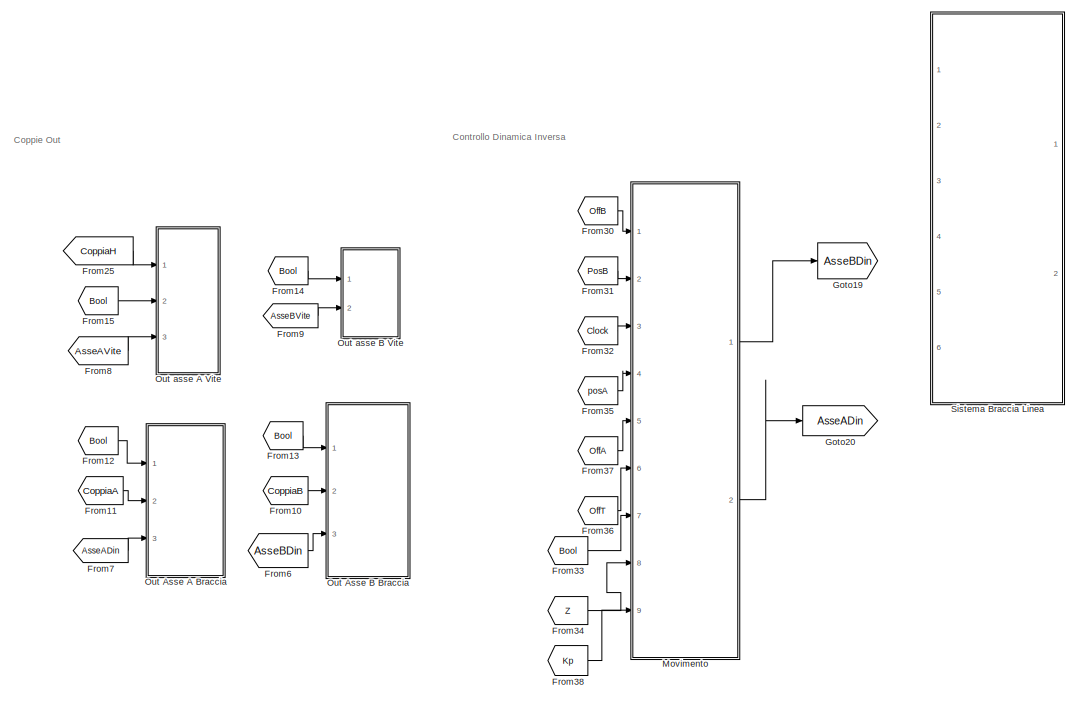
[diagram: root canvas - part 1/3, right side, full height]
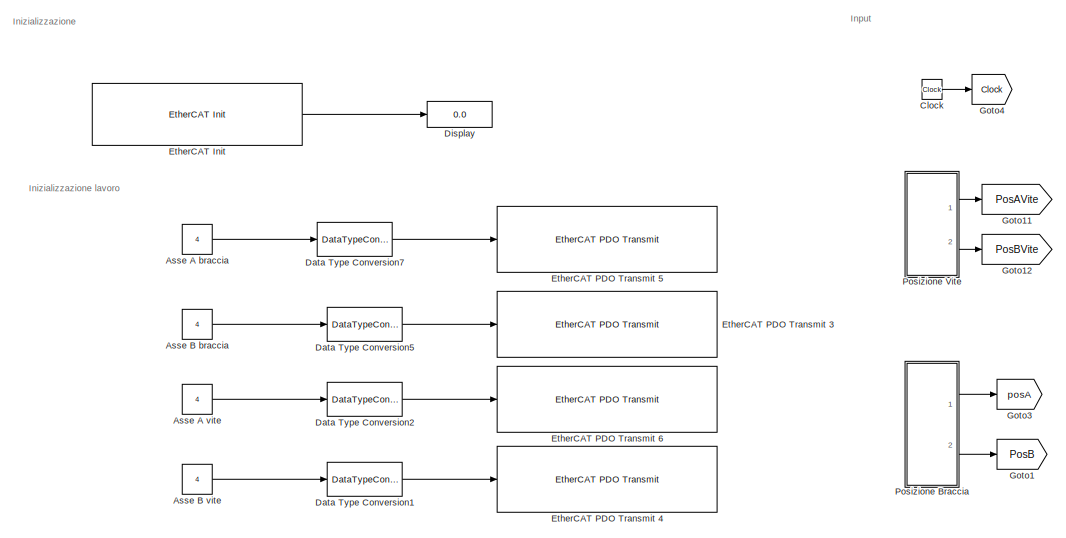
[diagram: root canvas - part 2/3, middle left region]
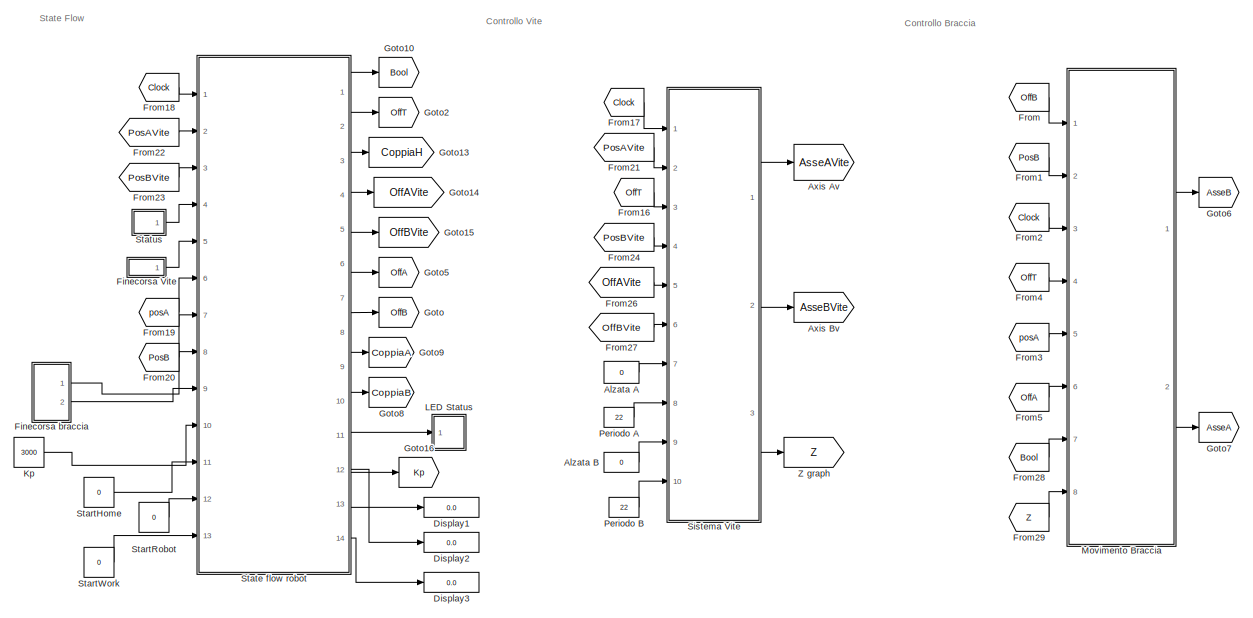
[diagram: root canvas - part 3/3, center side, full height]
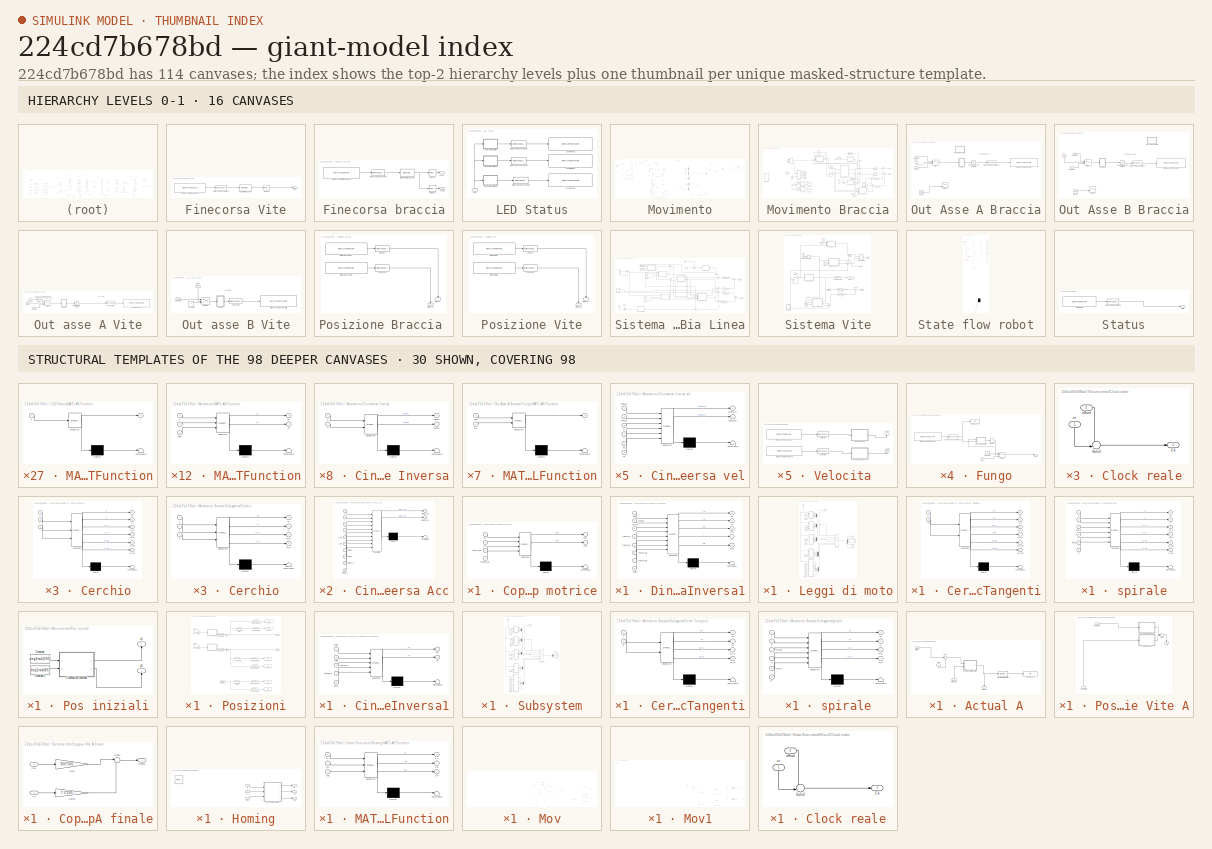
[diagram: thumbnail index - top-2 hierarchy levels (16 canvases) + 30 structural-template representatives of the remaining 98 canvases]
MODEL slx_224cd7b678bd
KIND model
CONFIG AbsTol = auto
CONFIG EnableMultiTasking = on
CONFIG FixedStep = 0.001
CONFIG MaxStep = auto
CONFIG MinStep = auto
CONFIG RelTol = 1e-3
CONFIG SampleTimeConstraint = Unconstrained
CONFIG Solver = FixedStepDiscrete
CONFIG SolverName = FixedStepDiscrete
CONFIG StartTime = 0.0
CONFIG StopTime = inf
BLOCK [Constant] Alzata A
  Value = 0
BLOCK [Constant] Alzata B 
  Value = 0
BLOCK [Constant] Asse A braccia
  Value = 4
BLOCK [Constant] Asse A vite
  Value = 4
BLOCK [Constant] Asse B braccia
  Value = 4
BLOCK [Constant] Asse B vite
  Value = 4
BLOCK [Goto] Axis Av
  GotoTag = AsseAVite
BLOCK [Goto] Axis Bv
  GotoTag = AsseBVite
BLOCK [Clock] Clock
BLOCK [DataTypeConversion] Data Type Conversion1
  RndMeth = Floor
  SaturateOnIntegerOverflow = off
BLOCK [DataTypeConversion] Data Type Conversion2
  RndMeth = Floor
  SaturateOnIntegerOverflow = off
BLOCK [DataTypeConversion] Data Type Conversion5
  RndMeth = Floor
  SaturateOnIntegerOverflow = off
BLOCK [DataTypeConversion] Data Type Conversion7
  RndMeth = Floor
  SaturateOnIntegerOverflow = off
BLOCK [Display] Display
  Decimation = 1
  Ports = [1]
BLOCK [Display] Display1
  Decimation = 1
  Ports = [1]
BLOCK [Display] Display2
  Decimation = 1
  Ports = [1]
BLOCK [Display] Display3
  Decimation = 1
  Ports = [1]
BLOCK [Reference] EtherCAT Init   REF=xpcethercatlib/EtherCAT Init 
  Ports = [0, 1]
  Priority = 0
  SourceBlock = xpcethercatlib/EtherCAT Init
  SourceProductBaseCode = XP
  SourceProductName = Simulink Real-Time
  SourceType = xpcethercatinit
BLOCK [Reference] EtherCAT PDO Transmit 3  REF=xpcethercatlib/EtherCAT PDO Transmit 
  Ports = [1]
  Priority = 3
  SourceBlock = xpcethercatlib/EtherCAT PDO Transmit
  SourceProductBaseCode = XP
  SourceProductName = Simulink Real-Time
  SourceType = xpcethercat_tx_var
BLOCK [Reference] EtherCAT PDO Transmit 4  REF=xpcethercatlib/EtherCAT PDO Transmit 
  Ports = [1]
  Priority = 3
  SourceBlock = xpcethercatlib/EtherCAT PDO Transmit
  SourceProductBaseCode = XP
  SourceProductName = Simulink Real-Time
  SourceType = xpcethercat_tx_var
BLOCK [Reference] EtherCAT PDO Transmit 5  REF=xpcethercatlib/EtherCAT PDO Transmit 
  Ports = [1]
  Priority = 3
  SourceBlock = xpcethercatlib/EtherCAT PDO Transmit
  SourceProductBaseCode = XP
  SourceProductName = Simulink Real-Time
  SourceType = xpcethercat_tx_var
BLOCK [Reference] EtherCAT PDO Transmit 6  REF=xpcethercatlib/EtherCAT PDO Transmit 
  Ports = [1]
  Priority = 3
  SourceBlock = xpcethercatlib/EtherCAT PDO Transmit
  SourceProductBaseCode = XP
  SourceProductName = Simulink Real-Time
  SourceType = xpcethercat_tx_var
BLOCK [SubSystem] Finecorsa Vite
  Ports = [0, 1]
  RequestExecContextInheritance = off
  Variant = off
BLOCK [DataTypeConversion] Finecorsa Vite/Data Type Conversion8
  RndMeth = Floor
  SaturateOnIntegerOverflow = off
BLOCK [Reference] Finecorsa Vite/EtherCAT PDO Receive16  REF=xpcethercatlib/EtherCAT PDO Receive
  Ports = [0, 1]
  Priority = 2
  SourceBlock = xpcethercatlib/EtherCAT PDO Receive
  SourceProductBaseCode = XP
  SourceProductName = Simulink Real-Time
  SourceType = xpcethercat_rx_var
BLOCK [Reference] Finecorsa Vite/Integer to Bit Converter  REF=commutil2/Integer to Bit
Converter
  Ports = [1, 1]
  SourceBlock = commutil2/Integer to Bit\nConverter
  SourceProductBaseCode = CM
  SourceProductName = Communications System Toolbox
  SourceType = Integer to Bit Converter
BLOCK [Selector] Finecorsa Vite/Selector
  IndexOptions = Index vector (dialog)
  Indices = 15
  InputPortWidth = 16
  OutputSizes = 1
  Ports = [1, 1]
BLOCK [Outport] Finecorsa Vite/fcV
  IconDisplay = Port number
BLOCK [SubSystem] Finecorsa braccia
  Ports = [0, 2]
  RequestExecContextInheritance = off
  Variant = off
BLOCK [Outport] Finecorsa braccia/Asse A
  IconDisplay = Port number
BLOCK [Outport] Finecorsa braccia/Asse B
  IconDisplay = Port number
  Port = 2
BLOCK [DataTypeConversion] Finecorsa braccia/Data Type Conversion8
  RndMeth = Floor
  SaturateOnIntegerOverflow = off
BLOCK [Reference] Finecorsa braccia/EtherCAT PDO Receive16  REF=xpcethercatlib/EtherCAT PDO Receive
  Ports = [0, 1]
  Priority = 2
  SourceBlock = xpcethercatlib/EtherCAT PDO Receive
  SourceProductBaseCode = XP
  SourceProductName = Simulink Real-Time
  SourceType = xpcethercat_rx_var
BLOCK [Reference] Finecorsa braccia/Integer to Bit Converter  REF=commutil2/Integer to Bit
Converter
  Ports = [1, 1]
  SourceBlock = commutil2/Integer to Bit\nConverter
  SourceProductBaseCode = CM
  SourceProductName = Communications System Toolbox
  SourceType = Integer to Bit Converter
BLOCK [Selector] Finecorsa braccia/Selector
  IndexOptions = Index vector (dialog)
  Indices = 8
  InputPortWidth = 16
  OutputSizes = 1
  Ports = [1, 1]
BLOCK [Selector] Finecorsa braccia/Selector1
  IndexOptions = Index vector (dialog)
  Indices = 15
  InputPortWidth = 16
  OutputSizes = 1
  Ports = [1, 1]
BLOCK [From] From
  GotoTag = OffB
BLOCK [From] From1
  GotoTag = PosB
BLOCK [From] From10
  GotoTag = CoppiaB
BLOCK [From] From11
  GotoTag = CoppiaA
BLOCK [From] From12
  GotoTag = Bool
BLOCK [From] From13
  GotoTag = Bool
BLOCK [From] From14
  GotoTag = Bool
BLOCK [From] From15
  GotoTag = Bool
BLOCK [From] From16
  GotoTag = OffT
BLOCK [From] From17
  GotoTag = Clock
BLOCK [From] From18
  GotoTag = Clock
BLOCK [From] From19
  GotoTag = posA
BLOCK [From] From2
  GotoTag = Clock
BLOCK [From] From20
  GotoTag = PosB
BLOCK [From] From21
  GotoTag = PosAVite
BLOCK [From] From22
  GotoTag = PosAVite
BLOCK [From] From23
  GotoTag = PosBVite
BLOCK [From] From24
  GotoTag = PosBVite
BLOCK [From] From25
  GotoTag = CoppiaH
BLOCK [From] From26
  GotoTag = OffAVite
BLOCK [From] From27
  GotoTag = OffBVite
BLOCK [From] From28
  GotoTag = Bool
BLOCK [From] From29
  GotoTag = Z
BLOCK [From] From3
  GotoTag = posA
BLOCK [From] From30
  GotoTag = OffB
BLOCK [From] From31
  GotoTag = PosB
BLOCK [From] From32
  GotoTag = Clock
BLOCK [From] From33
  GotoTag = Bool
BLOCK [From] From34
  GotoTag = Z
BLOCK [From] From35
  GotoTag = posA
BLOCK [From] From36
  GotoTag = OffT
BLOCK [From] From37
  GotoTag = OffA
BLOCK [From] From38
  GotoTag = Kp
BLOCK [From] From4
  GotoTag = OffT
BLOCK [From] From5
  GotoTag = OffA
BLOCK [From] From6
  GotoTag = AsseBDin
BLOCK [From] From7
  GotoTag = AsseADin
BLOCK [From] From8
  GotoTag = AsseAVite
BLOCK [From] From9
  GotoTag = AsseBVite
BLOCK [Goto] Goto
  GotoTag = OffB
BLOCK [Goto] Goto1
  GotoTag = PosB
BLOCK [Goto] Goto10
  GotoTag = Bool
BLOCK [Goto] Goto11
  GotoTag = PosAVite
BLOCK [Goto] Goto12
  GotoTag = PosBVite
BLOCK [Goto] Goto13
  GotoTag = CoppiaH
BLOCK [Goto] Goto14
  GotoTag = OffAVite
BLOCK [Goto] Goto15
  GotoTag = OffBVite
BLOCK [Goto] Goto16
  GotoTag = Kp
BLOCK [Goto] Goto19
  GotoTag = AsseBDin
BLOCK [Goto] Goto2
  GotoTag = OffT
BLOCK [Goto] Goto20
  GotoTag = AsseADin
BLOCK [Goto] Goto3
  GotoTag = posA
BLOCK [Goto] Goto4
  GotoTag = Clock
BLOCK [Goto] Goto5
  GotoTag = OffA
BLOCK [Goto] Goto6
  GotoTag = AsseB
BLOCK [Goto] Goto7
  GotoTag = AsseA
BLOCK [Goto] Goto8
  GotoTag = CoppiaB
BLOCK [Goto] Goto9
  GotoTag = CoppiaA
BLOCK [Constant] Kp
  Value = 3000
BLOCK [SubSystem] LED Status
  Ports = [1]
  RequestExecContextInheritance = off
  Variant = off
BLOCK [DataTypeConversion] LED Status/Data Type Conversion24
  RndMeth = Floor
  SaturateOnIntegerOverflow = off
BLOCK [DataTypeConversion] LED Status/Data Type Conversion25
  RndMeth = Floor
  SaturateOnIntegerOverflow = off
BLOCK [DataTypeConversion] LED Status/Data Type Conversion26
  RndMeth = Floor
  SaturateOnIntegerOverflow = off
BLOCK [Reference] LED Status/Luce Bianca  REF=xpcethercatlib/EtherCAT PDO Transmit 
  Ports = [1]
  Priority = 3
  SourceBlock = xpcethercatlib/EtherCAT PDO Transmit
  SourceProductBaseCode = XP
  SourceProductName = Simulink Real-Time
  SourceType = xpcethercat_tx_var
BLOCK [Reference] LED Status/Luce Rossa   REF=xpcethercatlib/EtherCAT PDO Transmit 
  Ports = [1]
  Priority = 3
  SourceBlock = xpcethercatlib/EtherCAT PDO Transmit
  SourceProductBaseCode = XP
  SourceProductName = Simulink Real-Time
  SourceType = xpcethercat_tx_var
BLOCK [Reference] LED Status/Luce Verde  REF=xpcethercatlib/EtherCAT PDO Transmit 
  Ports = [1]
  Priority = 3
  SourceBlock = xpcethercatlib/EtherCAT PDO Transmit
  SourceProductBaseCode = XP
  SourceProductName = Simulink Real-Time
  SourceType = xpcethercat_tx_var
BLOCK [Inport] LED Status/Luci
  IconDisplay = Port number
BLOCK [SubSystem] LED Status/MATLAB Function
  ErrorFcn = Stateflow.Translate.translate
  PermitHierarchicalResolution = ExplicitOnly
  Ports = [1, 1]
  RequestExecContextInheritance = off
  SFBlockType = MATLAB Function
  TreatAsAtomicUnit = on
  Variant = off
BLOCK [Demux] LED Status/MATLAB Function/ Demux 
  Outputs = 1
  Ports = [1, 1]
BLOCK [S-Function] LED Status/MATLAB Function/ SFunction 
  EnableBusSupport = on
  FunctionName = sf_sfun
  PortCounts = [1 2]
  Ports = [1, 2]
  SFcnIsStateOwnerBlock = off
  SFunctionDeploymentMode = off
  Tag = Stateflow S-Function State_Flow_TestM 7
BLOCK [Terminator] LED Status/MATLAB Function/ Terminator 
BLOCK [Inport] LED Status/MATLAB Function/u
  IconDisplay = Port number
BLOCK [Outport] LED Status/MATLAB Function/y
  IconDisplay = Port number
BLOCK [SubSystem] LED Status/MATLAB Function1
  ErrorFcn = Stateflow.Translate.translate
  PermitHierarchicalResolution = ExplicitOnly
  Ports = [1, 1]
  RequestExecContextInheritance = off
  SFBlockType = MATLAB Function
  TreatAsAtomicUnit = on
  Variant = off
BLOCK [Demux] LED Status/MATLAB Function1/ Demux 
  Outputs = 1
  Ports = [1, 1]
BLOCK [S-Function] LED Status/MATLAB Function1/ SFunction 
  EnableBusSupport = on
  FunctionName = sf_sfun
  PortCounts = [1 2]
  Ports = [1, 2]
  SFcnIsStateOwnerBlock = off
  SFunctionDeploymentMode = off
  Tag = Stateflow S-Function State_Flow_TestM 8
BLOCK [Terminator] LED Status/MATLAB Function1/ Terminator 
BLOCK [Inport] LED Status/MATLAB Function1/u
  IconDisplay = Port number
BLOCK [Outport] LED Status/MATLAB Function1/y
  IconDisplay = Port number
BLOCK [SubSystem] LED Status/MATLAB Function2
  ErrorFcn = Stateflow.Translate.translate
  PermitHierarchicalResolution = ExplicitOnly
  Ports = [1, 1]
  RequestExecContextInheritance = off
  SFBlockType = MATLAB Function
  TreatAsAtomicUnit = on
  Variant = off
BLOCK [Demux] LED Status/MATLAB Function2/ Demux 
  Outputs = 1
  Ports = [1, 1]
BLOCK [S-Function] LED Status/MATLAB Function2/ SFunction 
  EnableBusSupport = on
  FunctionName = sf_sfun
  PortCounts = [1 2]
  Ports = [1, 2]
  SFcnIsStateOwnerBlock = off
  SFunctionDeploymentMode = off
  Tag = Stateflow S-Function State_Flow_TestM 9
BLOCK [Terminator] LED Status/MATLAB Function2/ Terminator 
BLOCK [Inport] LED Status/MATLAB Function2/u
  IconDisplay = Port number
BLOCK [Outport] LED Status/MATLAB Function2/y
  IconDisplay = Port number
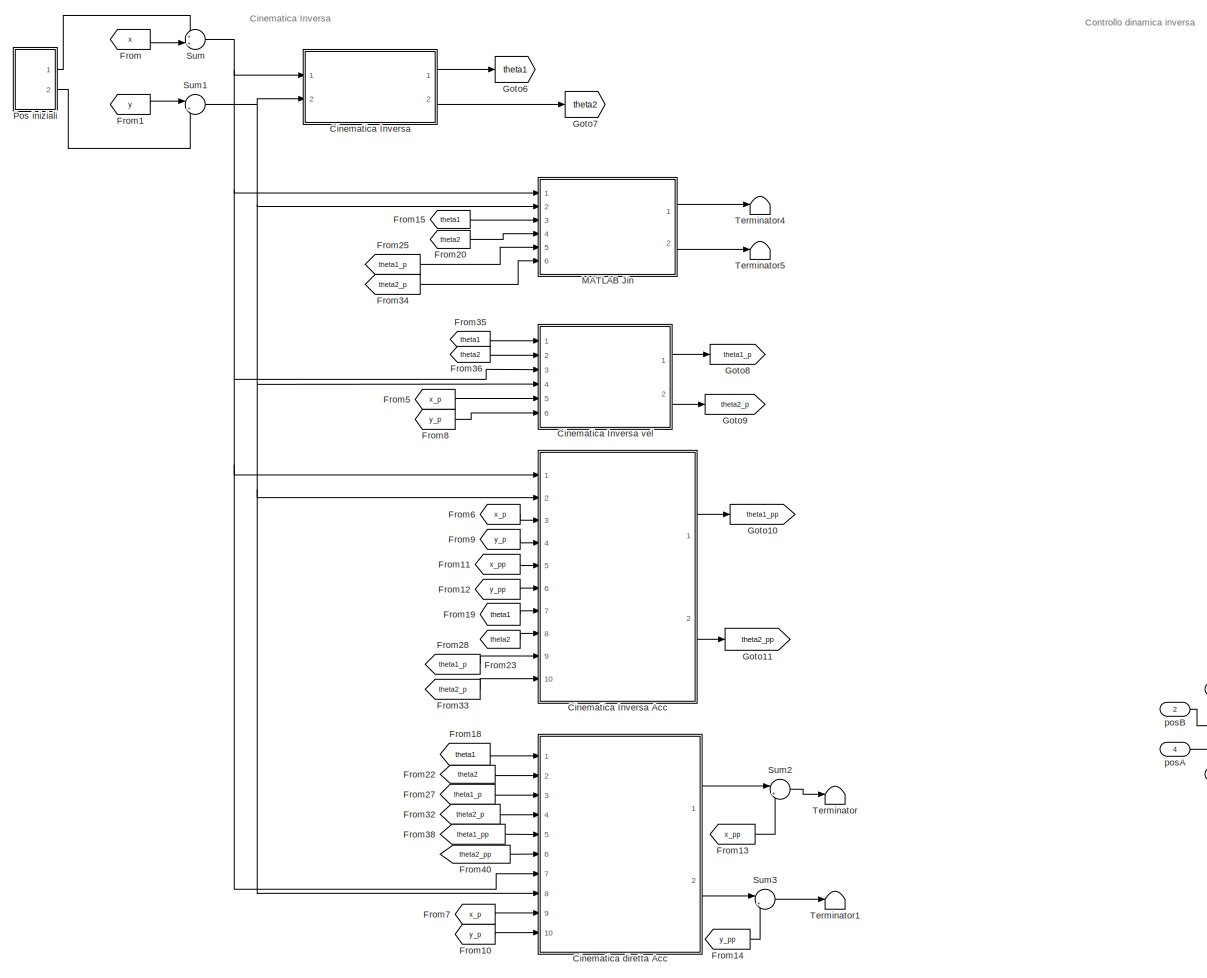
[diagram: Movimento - part 1/5, left side, full height]
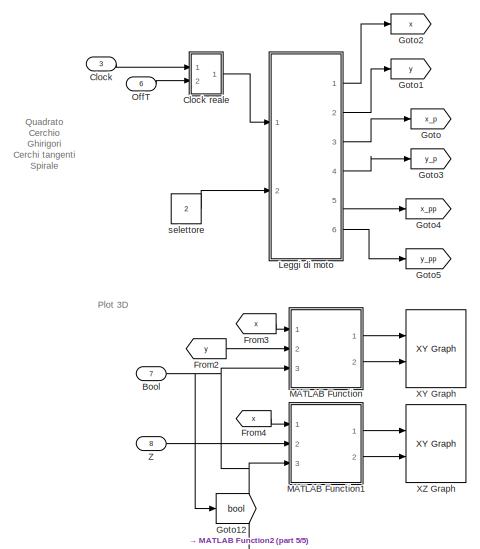
[diagram: Movimento - part 2/5, top left region]
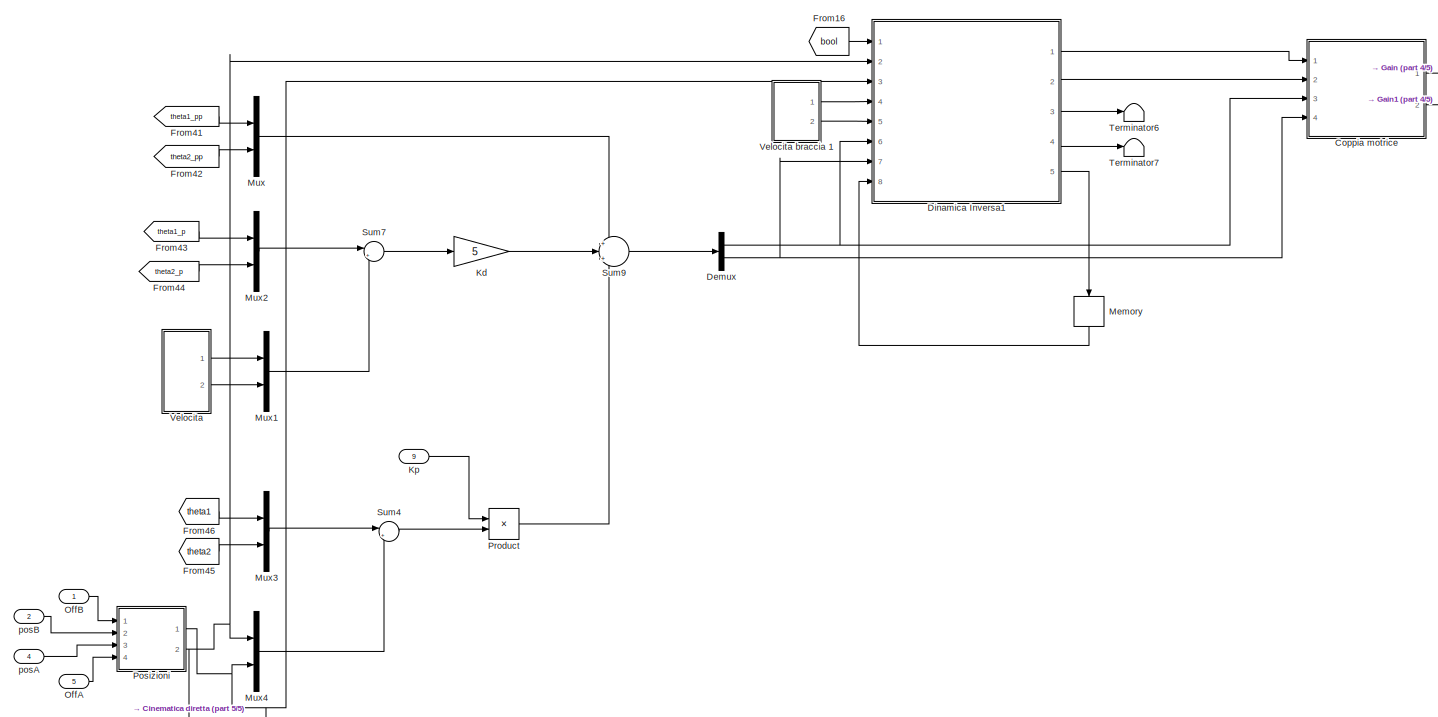
[diagram: Movimento - part 3/5, middle right region]
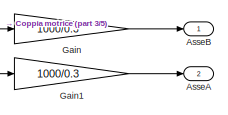
[diagram: Movimento - part 4/5, top right region]
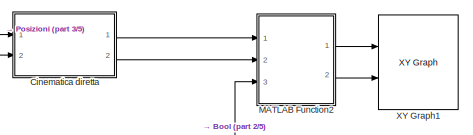
[diagram: Movimento - part 5/5, bottom center region]
BLOCK [SubSystem] Movimento
  Ports = [9, 2]
  RequestExecContextInheritance = off
  Variant = off
BLOCK [SubSystem] Movimento Braccia
  Ports = [8, 2]
  RequestExecContextInheritance = off
  Variant = off
BLOCK [SubSystem] Movimento Braccia/Asse A conv brac
  ErrorFcn = Stateflow.Translate.translate
  PermitHierarchicalResolution = ExplicitOnly
  Ports = [1, 1]
  RequestExecContextInheritance = off
  SFBlockType = MATLAB Function
  TreatAsAtomicUnit = on
  Variant = off
BLOCK [Demux] Movimento Braccia/Asse A conv brac/ Demux 
  Outputs = 1
  Ports = [1, 1]
BLOCK [S-Function] Movimento Braccia/Asse A conv brac/ SFunction 
  EnableBusSupport = on
  FunctionName = sf_sfun
  PortCounts = [1 2]
  Ports = [1, 2]
  SFcnIsStateOwnerBlock = off
  SFunctionDeploymentMode = off
  Tag = Stateflow S-Function State_Flow_TestM 43
BLOCK [Terminator] Movimento Braccia/Asse A conv brac/ Terminator 
BLOCK [Inport] Movimento Braccia/Asse A conv brac/p
  IconDisplay = Port number
BLOCK [Outport] Movimento Braccia/Asse A conv brac/pos_A_conv
  IconDisplay = Port number
BLOCK [SubSystem] Movimento Braccia/Asse B conv brac1
  ErrorFcn = Stateflow.Translate.translate
  PermitHierarchicalResolution = ExplicitOnly
  Ports = [1, 1]
  RequestExecContextInheritance = off
  SFBlockType = MATLAB Function
  TreatAsAtomicUnit = on
  Variant = off
BLOCK [Demux] Movimento Braccia/Asse B conv brac1/ Demux 
  Outputs = 1
  Ports = [1, 1]
BLOCK [S-Function] Movimento Braccia/Asse B conv brac1/ SFunction 
  EnableBusSupport = on
  FunctionName = sf_sfun
  PortCounts = [1 2]
  Ports = [1, 2]
  SFcnIsStateOwnerBlock = off
  SFunctionDeploymentMode = off
  Tag = Stateflow S-Function State_Flow_TestM 17
BLOCK [Terminator] Movimento Braccia/Asse B conv brac1/ Terminator 
BLOCK [Inport] Movimento Braccia/Asse B conv brac1/p
  IconDisplay = Port number
BLOCK [Outport] Movimento Braccia/Asse B conv brac1/pos_B_conv
  IconDisplay = Port number
BLOCK [Inport] Movimento Braccia/Bool 
  IconDisplay = Port number
  Port = 7
BLOCK [SubSystem] Movimento Braccia/Cinematica Inversa
  ErrorFcn = Stateflow.Translate.translate
  PermitHierarchicalResolution = ExplicitOnly
  Ports = [2, 2]
  RequestExecContextInheritance = off
  SFBlockType = MATLAB Function
  TreatAsAtomicUnit = on
  Variant = off
BLOCK [SubSystem] Movimento Braccia/Cinematica Inversa vel
  ErrorFcn = Stateflow.Translate.translate
  PermitHierarchicalResolution = ExplicitOnly
  Ports = [6, 2]
  RequestExecContextInheritance = off
  SFBlockType = MATLAB Function
  TreatAsAtomicUnit = on
  Variant = off
BLOCK [Demux] Movimento Braccia/Cinematica Inversa vel/ Demux 
  Outputs = 1
  Ports = [1, 1]
BLOCK [S-Function] Movimento Braccia/Cinematica Inversa vel/ SFunction 
  EnableBusSupport = on
  FunctionName = sf_sfun
  PortCounts = [6 3]
  Ports = [6, 3]
  SFcnIsStateOwnerBlock = off
  SFunctionDeploymentMode = off
  Tag = Stateflow S-Function State_Flow_TestM 47
BLOCK [Terminator] Movimento Braccia/Cinematica Inversa vel/ Terminator 
BLOCK [Inport] Movimento Braccia/Cinematica Inversa vel/theta1
  IconDisplay = Port number
BLOCK [Outport] Movimento Braccia/Cinematica Inversa vel/theta1_p
  IconDisplay = Port number
BLOCK [Inport] Movimento Braccia/Cinematica Inversa vel/theta2
  IconDisplay = Port number
  Port = 2
BLOCK [Outport] Movimento Braccia/Cinematica Inversa vel/theta2_p
  IconDisplay = Port number
  Port = 2
BLOCK [Inport] Movimento Braccia/Cinematica Inversa vel/x
  IconDisplay = Port number
  Port = 3
BLOCK [Inport] Movimento Braccia/Cinematica Inversa vel/xp
  IconDisplay = Port number
  Port = 5
BLOCK [Inport] Movimento Braccia/Cinematica Inversa vel/y
  IconDisplay = Port number
  Port = 4
BLOCK [Inport] Movimento Braccia/Cinematica Inversa vel/yp
  IconDisplay = Port number
  Port = 6
BLOCK [Demux] Movimento Braccia/Cinematica Inversa/ Demux 
  Outputs = 1
  Ports = [1, 1]
BLOCK [S-Function] Movimento Braccia/Cinematica Inversa/ SFunction 
  EnableBusSupport = on
  FunctionName = sf_sfun
  PortCounts = [2 3]
  Ports = [2, 3]
  SFcnIsStateOwnerBlock = off
  SFunctionDeploymentMode = off
  Tag = Stateflow S-Function State_Flow_TestM 16
BLOCK [Terminator] Movimento Braccia/Cinematica Inversa/ Terminator 
BLOCK [Outport] Movimento Braccia/Cinematica Inversa/theta1
  IconDisplay = Port number
BLOCK [Outport] Movimento Braccia/Cinematica Inversa/theta2
  IconDisplay = Port number
  Port = 2
BLOCK [Inport] Movimento Braccia/Cinematica Inversa/x
  IconDisplay = Port number
BLOCK [Inport] Movimento Braccia/Cinematica Inversa/y
  IconDisplay = Port number
  Port = 2
BLOCK [SubSystem] Movimento Braccia/Cinematica Inversa1
  ErrorFcn = Stateflow.Translate.translate
  PermitHierarchicalResolution = ExplicitOnly
  Ports = [5, 2]
  RequestExecContextInheritance = off
  SFBlockType = MATLAB Function
  TreatAsAtomicUnit = on
  Variant = off
BLOCK [Demux] Movimento Braccia/Cinematica Inversa1/ Demux 
  Outputs = 1
  Ports = [1, 1]
BLOCK [S-Function] Movimento Braccia/Cinematica Inversa1/ SFunction 
  EnableBusSupport = on
  FunctionName = sf_sfun
  PortCounts = [5 3]
  Ports = [5, 3]
  SFcnIsStateOwnerBlock = off
  SFunctionDeploymentMode = off
  Tag = Stateflow S-Function State_Flow_TestM 1
BLOCK [Terminator] Movimento Braccia/Cinematica Inversa1/ Terminator 
BLOCK [Inport] Movimento Braccia/Cinematica Inversa1/theta1_0
  IconDisplay = Port number
  Port = 3
BLOCK [Inport] Movimento Braccia/Cinematica Inversa1/theta2_0
  IconDisplay = Port number
  Port = 4
BLOCK [Inport] Movimento Braccia/Cinematica Inversa1/time
  IconDisplay = Port number
  Port = 5
BLOCK [Outport] Movimento Braccia/Cinematica Inversa1/x0
  IconDisplay = Port number
BLOCK [Inport] Movimento Braccia/Cinematica Inversa1/x0old
  IconDisplay = Port number
BLOCK [Outport] Movimento Braccia/Cinematica Inversa1/y0
  IconDisplay = Port number
  Port = 2
BLOCK [Inport] Movimento Braccia/Cinematica Inversa1/y0old
  IconDisplay = Port number
  Port = 2
BLOCK [Inport] Movimento Braccia/Clock
  IconDisplay = Port number
  Port = 3
BLOCK [SubSystem] Movimento Braccia/Clock reale
  Ports = [2, 1]
  RequestExecContextInheritance = off
  Variant = off
BLOCK [Outport] Movimento Braccia/Clock reale/Ck
  IconDisplay = Port number
BLOCK [Sum] Movimento Braccia/Clock reale/Sum2
  IconShape = round
  InputSameDT = off
  Inputs = -+|
  OutDataTypeStr = Inherit: Inherit via internal rule
  Ports = [2, 1]
  SaturateOnIntegerOverflow = off
BLOCK [Inport] Movimento Braccia/Clock reale/cr
  IconDisplay = Port number
BLOCK [Inport] Movimento Braccia/Clock reale/offset
  IconDisplay = Port number
  Port = 2
BLOCK [Constant] Movimento Braccia/Constant
  Value = deg2rad(110)
BLOCK [Constant] Movimento Braccia/Constant1
  Value = deg2rad(70)
BLOCK [Gain] Movimento Braccia/Coppia theta 1 vel
  Gain = 0
  OutDataTypeStr = Inherit: Inherit via internal rule
  ParamDataTypeStr = Inherit: Inherit via internal rule
  SaturateOnIntegerOverflow = off
BLOCK [Gain] Movimento Braccia/Coppia theta 2 vel
  Gain = 0
  OutDataTypeStr = Inherit: Inherit via internal rule
  ParamDataTypeStr = Inherit: Inherit via internal rule
  SaturateOnIntegerOverflow = off
BLOCK [From] Movimento Braccia/From
  GotoTag = x_p
BLOCK [From] Movimento Braccia/From1
  GotoTag = y
BLOCK [From] Movimento Braccia/From2
  Commented = on
  GotoTag = y
BLOCK [From] Movimento Braccia/From3
  Commented = on
  GotoTag = x
BLOCK [From] Movimento Braccia/From4
  Commented = on
  GotoTag = x
BLOCK [From] Movimento Braccia/From5
  GotoTag = y_p
BLOCK [From] Movimento Braccia/From6
  GotoTag = x
BLOCK [Goto] Movimento Braccia/Goto
  GotoTag = x_p
BLOCK [Goto] Movimento Braccia/Goto1
  GotoTag = y
BLOCK [Goto] Movimento Braccia/Goto2
  GotoTag = x
BLOCK [Goto] Movimento Braccia/Goto3
  GotoTag = y_p
BLOCK [SubSystem] Movimento Braccia/MATLAB Function
  Commented = on
  ErrorFcn = Stateflow.Translate.translate
  PermitHierarchicalResolution = ExplicitOnly
  Ports = [3, 2]
  RequestExecContextInheritance = off
  SFBlockType = MATLAB Function
  TreatAsAtomicUnit = on
  Variant = off
BLOCK [Demux] Movimento Braccia/MATLAB Function/ Demux 
  Outputs = 1
  Ports = [1, 1]
BLOCK [S-Function] Movimento Braccia/MATLAB Function/ SFunction 
  EnableBusSupport = on
  FunctionName = sf_sfun
  PortCounts = [3 3]
  Ports = [3, 3]
  SFcnIsStateOwnerBlock = off
  SFunctionDeploymentMode = off
  Tag = Stateflow S-Function State_Flow_TestM 2
BLOCK [Terminator] Movimento Braccia/MATLAB Function/ Terminator 
BLOCK [Inport] Movimento Braccia/MATLAB Function/bool
  IconDisplay = Port number
  Port = 3
BLOCK [Inport] Movimento Braccia/MATLAB Function/x
  IconDisplay = Port number
BLOCK [Outport] Movimento Braccia/MATLAB Function/xp
  IconDisplay = Port number
BLOCK [Inport] Movimento Braccia/MATLAB Function/y
  IconDisplay = Port number
  Port = 2
BLOCK [Outport] Movimento Braccia/MATLAB Function/yp
  IconDisplay = Port number
  Port = 2
BLOCK [SubSystem] Movimento Braccia/MATLAB Function1
  Commented = on
  ErrorFcn = Stateflow.Translate.translate
  PermitHierarchicalResolution = ExplicitOnly
  Ports = [3, 2]
  RequestExecContextInheritance = off
  SFBlockType = MATLAB Function
  TreatAsAtomicUnit = on
  Variant = off
BLOCK [Demux] Movimento Braccia/MATLAB Function1/ Demux 
  Outputs = 1
  Ports = [1, 1]
BLOCK [S-Function] Movimento Braccia/MATLAB Function1/ SFunction 
  EnableBusSupport = on
  FunctionName = sf_sfun
  PortCounts = [3 3]
  Ports = [3, 3]
  SFcnIsStateOwnerBlock = off
  SFunctionDeploymentMode = off
  Tag = Stateflow S-Function State_Flow_TestM 56
BLOCK [Terminator] Movimento Braccia/MATLAB Function1/ Terminator 
BLOCK [Inport] Movimento Braccia/MATLAB Function1/bool
  IconDisplay = Port number
  Port = 3
BLOCK [Inport] Movimento Braccia/MATLAB Function1/x
  IconDisplay = Port number
BLOCK [Outport] Movimento Braccia/MATLAB Function1/xp
  IconDisplay = Port number
BLOCK [Inport] Movimento Braccia/MATLAB Function1/z
  IconDisplay = Port number
  Port = 2
BLOCK [Outport] Movimento Braccia/MATLAB Function1/zp
  IconDisplay = Port number
  Port = 2
BLOCK [Memory] Movimento Braccia/Memory
BLOCK [Memory] Movimento Braccia/Memory1
BLOCK [Inport] Movimento Braccia/Off A
  IconDisplay = Port number
  Port = 6
BLOCK [Inport] Movimento Braccia/Off B
  IconDisplay = Port number
BLOCK [Inport] Movimento Braccia/OffT
  IconDisplay = Port number
  Port = 4
BLOCK [Outport] Movimento Braccia/Out Asse A
  IconDisplay = Port number
  Port = 2
BLOCK [Outport] Movimento Braccia/Out Asse B
  IconDisplay = Port number
BLOCK [Reference] Movimento Braccia/PID Controller1  REF=simulink/Continuous/PID Controller
  Ports = [1, 1]
  SourceBlock = simulink/Continuous/PID Controller
  SourceProductBaseCode = SL
  SourceProductName = Simulink
  SourceType = PID 1dof
BLOCK [Reference] Movimento Braccia/PID Controller2  REF=simulink/Continuous/PID Controller
  Ports = [1, 1]
  SourceBlock = simulink/Continuous/PID Controller
  SourceProductBaseCode = SL
  SourceProductName = Simulink
  SourceType = PID 1dof
BLOCK [Inport] Movimento Braccia/Pos A
  IconDisplay = Port number
  Port = 5
BLOCK [Inport] Movimento Braccia/Pos B
  IconDisplay = Port number
  Port = 2
BLOCK [SubSystem] Movimento Braccia/Quadrato1
  Commented = on
  ErrorFcn = Stateflow.Translate.translate
  PermitHierarchicalResolution = ExplicitOnly
  Ports = [3, 2]
  RequestExecContextInheritance = off
  SFBlockType = MATLAB Function
  TreatAsAtomicUnit = on
  Variant = off
BLOCK [Demux] Movimento Braccia/Quadrato1/ Demux 
  Outputs = 1
  Ports = [1, 1]
BLOCK [S-Function] Movimento Braccia/Quadrato1/ SFunction 
  EnableBusSupport = on
  FunctionName = sf_sfun
  PortCounts = [3 3]
  Ports = [3, 3]
  SFcnIsStateOwnerBlock = off
  SFunctionDeploymentMode = off
  Tag = Stateflow S-Function State_Flow_TestM 46
BLOCK [Terminator] Movimento Braccia/Quadrato1/ Terminator 
BLOCK [Inport] Movimento Braccia/Quadrato1/T
  IconDisplay = Port number
  Port = 2
BLOCK [Inport] Movimento Braccia/Quadrato1/h
  IconDisplay = Port number
  Port = 3
BLOCK [Inport] Movimento Braccia/Quadrato1/t
  IconDisplay = Port number
BLOCK [Outport] Movimento Braccia/Quadrato1/x
  IconDisplay = Port number
BLOCK [Outport] Movimento Braccia/Quadrato1/y
  IconDisplay = Port number
  Port = 2
BLOCK [SubSystem] Movimento Braccia/Subsystem
  Commented = on
  Ports = [2, 4]
  RequestExecContextInheritance = off
  Variant = off
BLOCK [Constant] Movimento Braccia/Subsystem/Alzata C
  Value = 0.05
BLOCK [Constant] Movimento Braccia/Subsystem/Alzata C1
  Value = 0.015
BLOCK [Constant] Movimento Braccia/Subsystem/Alzata Q
  Value = 0.10
BLOCK [SubSystem] Movimento Braccia/Subsystem/Cerchi Tangenti
  ErrorFcn = Stateflow.Translate.translate
  PermitHierarchicalResolution = ExplicitOnly
  Ports = [2, 4]
  RequestExecContextInheritance = off
  SFBlockType = MATLAB Function
  TreatAsAtomicUnit = on
  Variant = off
BLOCK [Demux] Movimento Braccia/Subsystem/Cerchi Tangenti/ Demux 
  Outputs = 1
  Ports = [1, 1]
BLOCK [S-Function] Movimento Braccia/Subsystem/Cerchi Tangenti/ SFunction 
  EnableBusSupport = on
  FunctionName = sf_sfun
  PortCounts = [2 5]
  Ports = [2, 5]
  SFcnIsStateOwnerBlock = off
  SFunctionDeploymentMode = off
  Tag = Stateflow S-Function State_Flow_TestM 54
BLOCK [Terminator] Movimento Braccia/Subsystem/Cerchi Tangenti/ Terminator 
BLOCK [Inport] Movimento Braccia/Subsystem/Cerchi Tangenti/d
  IconDisplay = Port number
  Port = 2
BLOCK [Inport] Movimento Braccia/Subsystem/Cerchi Tangenti/t
  IconDisplay = Port number
BLOCK [Outport] Movimento Braccia/Subsystem/Cerchi Tangenti/xct
  IconDisplay = Port number
BLOCK [Outport] Movimento Braccia/Subsystem/Cerchi Tangenti/xct_p
  IconDisplay = Port number
  Port = 3
BLOCK [Outport] Movimento Braccia/Subsystem/Cerchi Tangenti/yct
  IconDisplay = Port number
  Port = 2
BLOCK [Outport] Movimento Braccia/Subsystem/Cerchi Tangenti/yct_p
  IconDisplay = Port number
  Port = 4
BLOCK [SubSystem] Movimento Braccia/Subsystem/Cerchio
  ErrorFcn = Stateflow.Translate.translate
  PermitHierarchicalResolution = ExplicitOnly
  Ports = [3, 4]
  RequestExecContextInheritance = off
  SFBlockType = MATLAB Function
  TreatAsAtomicUnit = on
  Variant = off
BLOCK [Demux] Movimento Braccia/Subsystem/Cerchio/ Demux 
  Outputs = 1
  Ports = [1, 1]
BLOCK [S-Function] Movimento Braccia/Subsystem/Cerchio/ SFunction 
  EnableBusSupport = on
  FunctionName = sf_sfun
  PortCounts = [3 5]
  Ports = [3, 5]
  SFcnIsStateOwnerBlock = off
  SFunctionDeploymentMode = off
  Tag = Stateflow S-Function State_Flow_TestM 44
BLOCK [Terminator] Movimento Braccia/Subsystem/Cerchio/ Terminator 
BLOCK [Inport] Movimento Braccia/Subsystem/Cerchio/T
  IconDisplay = Port number
  Port = 2
BLOCK [Inport] Movimento Braccia/Subsystem/Cerchio/r
  IconDisplay = Port number
  Port = 3
BLOCK [Inport] Movimento Braccia/Subsystem/Cerchio/t
  IconDisplay = Port number
BLOCK [Outport] Movimento Braccia/Subsystem/Cerchio/xc
  IconDisplay = Port number
BLOCK [Outport] Movimento Braccia/Subsystem/Cerchio/xc_p
  IconDisplay = Port number
  Port = 3
BLOCK [Outport] Movimento Braccia/Subsystem/Cerchio/yc
  IconDisplay = Port number
  Port = 2
BLOCK [Outport] Movimento Braccia/Subsystem/Cerchio/yc_p
  IconDisplay = Port number
  Port = 4
BLOCK [Constant] Movimento Braccia/Subsystem/Constant3
  Value = 0.125
BLOCK [Demux] Movimento Braccia/Subsystem/Demux
  DisplayOption = bar
  Ports = [1, 4]
BLOCK [MultiPortSwitch] Movimento Braccia/Subsystem/Multiport Switch
  InputSameDT = off
  Inputs = 5
  Ports = [6, 1]
  SaturateOnIntegerOverflow = off
BLOCK [Mux] Movimento Braccia/Subsystem/Mux
  DisplayOption = bar
  Ports = [4, 1]
BLOCK [Mux] Movimento Braccia/Subsystem/Mux1
  DisplayOption = bar
  Ports = [4, 1]
BLOCK [Mux] Movimento Braccia/Subsystem/Mux2
  DisplayOption = bar
  Ports = [4, 1]
BLOCK [Mux] Movimento Braccia/Subsystem/Mux3
  DisplayOption = bar
  Ports = [4, 1]
BLOCK [Mux] Movimento Braccia/Subsystem/Mux4
  DisplayOption = bar
  Ports = [4, 1]
BLOCK [Constant] Movimento Braccia/Subsystem/N giri
  Value = 4
BLOCK [Constant] Movimento Braccia/Subsystem/Periodo
  Value = 20
BLOCK [Constant] Movimento Braccia/Subsystem/Periodo C
  Value = 5
BLOCK [Constant] Movimento Braccia/Subsystem/Periodo C1
  Value = 32
BLOCK [Constant] Movimento Braccia/Subsystem/Periodo Q
  Value = 10
BLOCK [SubSystem] Movimento Braccia/Subsystem/Quadrato
  ErrorFcn = Stateflow.Translate.translate
  PermitHierarchicalResolution = ExplicitOnly
  Ports = [3, 4]
  RequestExecContextInheritance = off
  SFBlockType = MATLAB Function
  TreatAsAtomicUnit = on
  Variant = off
BLOCK [Demux] Movimento Braccia/Subsystem/Quadrato/ Demux 
  Outputs = 1
  Ports = [1, 1]
BLOCK [S-Function] Movimento Braccia/Subsystem/Quadrato/ SFunction 
  EnableBusSupport = on
  FunctionName = sf_sfun
  PortCounts = [3 5]
  Ports = [3, 5]
  SFcnIsStateOwnerBlock = off
  SFunctionDeploymentMode = off
  Tag = Stateflow S-Function State_Flow_TestM 45
BLOCK [Terminator] Movimento Braccia/Subsystem/Quadrato/ Terminator 
BLOCK [Inport] Movimento Braccia/Subsystem/Quadrato/T
  IconDisplay = Port number
  Port = 2
BLOCK [Inport] Movimento Braccia/Subsystem/Quadrato/h
  IconDisplay = Port number
  Port = 3
BLOCK [Inport] Movimento Braccia/Subsystem/Quadrato/t
  IconDisplay = Port number
BLOCK [Outport] Movimento Braccia/Subsystem/Quadrato/xq
  IconDisplay = Port number
BLOCK [Outport] Movimento Braccia/Subsystem/Quadrato/xq_p
  IconDisplay = Port number
  Port = 3
BLOCK [Outport] Movimento Braccia/Subsystem/Quadrato/yq
  IconDisplay = Port number
  Port = 2
BLOCK [Outport] Movimento Braccia/Subsystem/Quadrato/yq_p
  IconDisplay = Port number
  Port = 4
BLOCK [Constant] Movimento Braccia/Subsystem/Rmax
  Value = 0.05
BLOCK [Constant] Movimento Braccia/Subsystem/Rmin
  Value = 0.02
BLOCK [Inport] Movimento Braccia/Subsystem/Selection
  IconDisplay = Port number
  Port = 2
BLOCK [Constant] Movimento Braccia/Subsystem/Tempo spost. iniziale
  Value = 0.5
BLOCK [SubSystem] Movimento Braccia/Subsystem/g
  ErrorFcn = Stateflow.Translate.translate
  PermitHierarchicalResolution = ExplicitOnly
  Ports = [3, 4]
  RequestExecContextInheritance = off
  SFBlockType = MATLAB Function
  TreatAsAtomicUnit = on
  Variant = off
BLOCK [Demux] Movimento Braccia/Subsystem/g/ Demux 
  Outputs = 1
  Ports = [1, 1]
BLOCK [S-Function] Movimento Braccia/Subsystem/g/ SFunction 
  EnableBusSupport = on
  FunctionName = sf_sfun
  PortCounts = [3 5]
  Ports = [3, 5]
  SFcnIsStateOwnerBlock = off
  SFunctionDeploymentMode = off
  Tag = Stateflow S-Function State_Flow_TestM 53
BLOCK [Terminator] Movimento Braccia/Subsystem/g/ Terminator 
BLOCK [Inport] Movimento Braccia/Subsystem/g/T
  IconDisplay = Port number
  Port = 3
BLOCK [Inport] Movimento Braccia/Subsystem/g/l
  IconDisplay = Port number
  Port = 2
BLOCK [Inport] Movimento Braccia/Subsystem/g/t
  IconDisplay = Port number
BLOCK [Outport] Movimento Braccia/Subsystem/g/x
  IconDisplay = Port number
BLOCK [Outport] Movimento Braccia/Subsystem/g/x_p
  IconDisplay = Port number
  Port = 3
BLOCK [Outport] Movimento Braccia/Subsystem/g/y
  IconDisplay = Port number
  Port = 2
BLOCK [Outport] Movimento Braccia/Subsystem/g/y_p
  IconDisplay = Port number
  Port = 4
BLOCK [SubSystem] Movimento Braccia/Subsystem/spirale
  ErrorFcn = Stateflow.Translate.translate
  PermitHierarchicalResolution = ExplicitOnly
  Ports = [6, 4]
  RequestExecContextInheritance = off
  SFBlockType = MATLAB Function
  TreatAsAtomicUnit = on
  Variant = off
BLOCK [Demux] Movimento Braccia/Subsystem/spirale/ Demux 
  Outputs = 1
  Ports = [1, 1]
BLOCK [S-Function] Movimento Braccia/Subsystem/spirale/ SFunction 
  EnableBusSupport = on
  FunctionName = sf_sfun
  PortCounts = [6 5]
  Ports = [6, 5]
  SFcnIsStateOwnerBlock = off
  SFunctionDeploymentMode = off
  Tag = Stateflow S-Function State_Flow_TestM 55
BLOCK [Terminator] Movimento Braccia/Subsystem/spirale/ Terminator 
BLOCK [Inport] Movimento Braccia/Subsystem/spirale/N
  IconDisplay = Port number
  Port = 4
BLOCK [Inport] Movimento Braccia/Subsystem/spirale/Rmax
  IconDisplay = Port number
  Port = 3
BLOCK [Inport] Movimento Braccia/Subsystem/spirale/Rmin
  IconDisplay = Port number
  Port = 5
BLOCK [Inport] Movimento Braccia/Subsystem/spirale/T
  IconDisplay = Port number
  Port = 2
BLOCK [Inport] Movimento Braccia/Subsystem/spirale/T1
  IconDisplay = Port number
  Port = 6
BLOCK [Inport] Movimento Braccia/Subsystem/spirale/t
  IconDisplay = Port number
BLOCK [Outport] Movimento Braccia/Subsystem/spirale/xs
  IconDisplay = Port number
BLOCK [Outport] Movimento Braccia/Subsystem/spirale/xs_p
  IconDisplay = Port number
  Port = 3
BLOCK [Outport] Movimento Braccia/Subsystem/spirale/ys
  IconDisplay = Port number
  Port = 2
BLOCK [Outport] Movimento Braccia/Subsystem/spirale/ys_p
  IconDisplay = Port number
  Port = 4
BLOCK [Inport] Movimento Braccia/Subsystem/time
  IconDisplay = Port number
BLOCK [Outport] Movimento Braccia/Subsystem/x
  IconDisplay = Port number
BLOCK [Outport] Movimento Braccia/Subsystem/x_p
  IconDisplay = Port number
  Port = 3
BLOCK [Outport] Movimento Braccia/Subsystem/y
  IconDisplay = Port number
  Port = 2
BLOCK [Outport] Movimento Braccia/Subsystem/y_p
  IconDisplay = Port number
  Port = 4
BLOCK [Sum] Movimento Braccia/Sum
  IconShape = round
  InputSameDT = off
  Inputs = ++|
  OutDataTypeStr = Inherit: Inherit via internal rule
  Ports = [2, 1]
  SaturateOnIntegerOverflow = off
BLOCK [Sum] Movimento Braccia/Sum1
  IconShape = round
  InputSameDT = off
  Inputs = |++
  OutDataTypeStr = Inherit: Inherit via internal rule
  Ports = [2, 1]
  SaturateOnIntegerOverflow = off
BLOCK [Sum] Movimento Braccia/Sum12
  IconShape = round
  InputSameDT = off
  Inputs = -+|
  OutDataTypeStr = Inherit: Inherit via internal rule
  Ports = [2, 1]
  SaturateOnIntegerOverflow = off
BLOCK [Sum] Movimento Braccia/Sum14
  IconShape = round
  InputSameDT = off
  Inputs = -+|
  OutDataTypeStr = Inherit: Inherit via internal rule
  Ports = [2, 1]
  SaturateOnIntegerOverflow = off
BLOCK [Sum] Movimento Braccia/Sum17
  IconShape = round
  InputSameDT = off
  Inputs = |+-
  OutDataTypeStr = Inherit: Inherit via internal rule
  Ports = [2, 1]
  SaturateOnIntegerOverflow = off
BLOCK [Sum] Movimento Braccia/Sum2
  IconShape = round
  InputSameDT = off
  Inputs = ++|
  OutDataTypeStr = Inherit: Inherit via internal rule
  Ports = [2, 1]
  SaturateOnIntegerOverflow = off
BLOCK [Sum] Movimento Braccia/Sum3
  IconShape = round
  InputSameDT = off
  Inputs = ++|
  OutDataTypeStr = Inherit: Inherit via internal rule
  Ports = [2, 1]
  SaturateOnIntegerOverflow = off
BLOCK [Sum] Movimento Braccia/Sum4
  IconShape = round
  InputSameDT = off
  Inputs = -+|
  OutDataTypeStr = Inherit: Inherit via internal rule
  Ports = [2, 1]
  SaturateOnIntegerOverflow = off
BLOCK [Sum] Movimento Braccia/Sum5
  IconShape = round
  InputSameDT = off
  Inputs = |+-
  OutDataTypeStr = Inherit: Inherit via internal rule
  Ports = [2, 1]
  SaturateOnIntegerOverflow = off
BLOCK [Sum] Movimento Braccia/Sum6
  IconShape = round
  InputSameDT = off
  Inputs = |+-
  OutDataTypeStr = Inherit: Inherit via internal rule
  Ports = [2, 1]
  SaturateOnIntegerOverflow = off
BLOCK [Sum] Movimento Braccia/Sum7
  IconShape = round
  InputSameDT = off
  Inputs = |++
  OutDataTypeStr = Inherit: Inherit via internal rule
  Ports = [2, 1]
  SaturateOnIntegerOverflow = off
BLOCK [Sum] Movimento Braccia/Sum8
  IconShape = round
  InputSameDT = off
  Inputs = |++
  OutDataTypeStr = Inherit: Inherit via internal rule
  Ports = [2, 1]
  SaturateOnIntegerOverflow = off
BLOCK [SubSystem] Movimento Braccia/Velocita vite 
  Ports = [0, 2]
  RequestExecContextInheritance = off
  Variant = off
BLOCK [Outport] Movimento Braccia/Velocita vite /Asse A
  IconDisplay = Port number
  Port = 2
BLOCK [Outport] Movimento Braccia/Velocita vite /Asse B
  IconDisplay = Port number
BLOCK [Reference] Movimento Braccia/Velocita vite /EtherCAT PDO Receive14  REF=xpcethercatlib/EtherCAT PDO Receive
  Ports = [0, 1]
  Priority = 2
  SourceBlock = xpcethercatlib/EtherCAT PDO Receive
  SourceProductBaseCode = XP
  SourceProductName = Simulink Real-Time
  SourceType = xpcethercat_rx_var
BLOCK [Reference] Movimento Braccia/Velocita vite /EtherCAT PDO Receive15  REF=xpcethercatlib/EtherCAT PDO Receive
  Ports = [0, 1]
  Priority = 2
  SourceBlock = xpcethercatlib/EtherCAT PDO Receive
  SourceProductBaseCode = XP
  SourceProductName = Simulink Real-Time
  SourceType = xpcethercat_rx_var
BLOCK [SubSystem] Movimento Braccia/Velocita vite /Vel Asse A conv
  ErrorFcn = Stateflow.Translate.translate
  PermitHierarchicalResolution = ExplicitOnly
  Ports = [1, 1]
  RequestExecContextInheritance = off
  SFBlockType = MATLAB Function
  TreatAsAtomicUnit = on
  Variant = off
BLOCK [Demux] Movimento Braccia/Velocita vite /Vel Asse A conv/ Demux 
  Outputs = 1
  Ports = [1, 1]
BLOCK [S-Function] Movimento Braccia/Velocita vite /Vel Asse A conv/ SFunction 
  EnableBusSupport = on
  FunctionName = sf_sfun
  PortCounts = [1 2]
  Ports = [1, 2]
  SFcnIsStateOwnerBlock = off
  SFunctionDeploymentMode = off
  Tag = Stateflow S-Function State_Flow_TestM 48
BLOCK [Terminator] Movimento Braccia/Velocita vite /Vel Asse A conv/ Terminator 
BLOCK [Inport] Movimento Braccia/Velocita vite /Vel Asse A conv/vA
  IconDisplay = Port number
BLOCK [Outport] Movimento Braccia/Velocita vite /Vel Asse A conv/vel_A_conv
  IconDisplay = Port number
BLOCK [SubSystem] Movimento Braccia/Velocita vite /Vel Asse B conv
  ErrorFcn = Stateflow.Translate.translate
  PermitHierarchicalResolution = ExplicitOnly
  Ports = [1, 1]
  RequestExecContextInheritance = off
  SFBlockType = MATLAB Function
  TreatAsAtomicUnit = on
  Variant = off
BLOCK [Demux] Movimento Braccia/Velocita vite /Vel Asse B conv/ Demux 
  Outputs = 1
  Ports = [1, 1]
BLOCK [S-Function] Movimento Braccia/Velocita vite /Vel Asse B conv/ SFunction 
  EnableBusSupport = on
  FunctionName = sf_sfun
  PortCounts = [1 2]
  Ports = [1, 2]
  SFcnIsStateOwnerBlock = off
  SFunctionDeploymentMode = off
  Tag = Stateflow S-Function State_Flow_TestM 49
BLOCK [Terminator] Movimento Braccia/Velocita vite /Vel Asse B conv/ Terminator 
BLOCK [Inport] Movimento Braccia/Velocita vite /Vel Asse B conv/p
  IconDisplay = Port number
BLOCK [Outport] Movimento Braccia/Velocita vite /Vel Asse B conv/vel_B_conv
  IconDisplay = Port number
BLOCK [DataTypeConversion] Movimento Braccia/Velocita vite /Velocity A
  RndMeth = Floor
  SaturateOnIntegerOverflow = off
BLOCK [DataTypeConversion] Movimento Braccia/Velocita vite /Velocity B
  RndMeth = Floor
  SaturateOnIntegerOverflow = off
BLOCK [Reference] Movimento Braccia/XY Graph  REF=simulink/Sinks/XY Graph
  Commented = on
  Ports = [2]
  SourceBlock = simulink/Sinks/XY Graph
  SourceProductBaseCode = SL
  SourceProductName = Simulink
  SourceType = XY scope.
BLOCK [Reference] Movimento Braccia/XZ Graph  REF=simulink/Sinks/XY Graph
  Commented = on
  Ports = [2]
  SourceBlock = simulink/Sinks/XY Graph
  SourceProductBaseCode = SL
  SourceProductName = Simulink
  SourceType = XY scope.
BLOCK [Inport] Movimento Braccia/Z
  IconDisplay = Port number
  Port = 8
BLOCK [Constant] Movimento Braccia/selettore
  Value = 5
BLOCK [Outport] Movimento/AsseA
  IconDisplay = Port number
  Port = 2
BLOCK [Outport] Movimento/AsseB
  IconDisplay = Port number
BLOCK [Inport] Movimento/Bool 
  IconDisplay = Port number
  Port = 7
BLOCK [SubSystem] Movimento/Cinematica Inversa
  ErrorFcn = Stateflow.Translate.translate
  PermitHierarchicalResolution = ExplicitOnly
  Ports = [2, 2]
  RequestExecContextInheritance = off
  SFBlockType = MATLAB Function
  TreatAsAtomicUnit = on
  Variant = off
BLOCK [SubSystem] Movimento/Cinematica Inversa Acc
  ErrorFcn = Stateflow.Translate.translate
  PermitHierarchicalResolution = ExplicitOnly
  Ports = [10, 2]
  RequestExecContextInheritance = off
  SFBlockType = MATLAB Function
  TreatAsAtomicUnit = on
  Variant = off
BLOCK [Demux] Movimento/Cinematica Inversa Acc/ Demux 
  Outputs = 1
  Ports = [1, 1]
BLOCK [S-Function] Movimento/Cinematica Inversa Acc/ SFunction 
  EnableBusSupport = on
  FunctionName = sf_sfun
  PortCounts = [10 3]
  Ports = [10, 3]
  SFcnIsStateOwnerBlock = off
  SFunctionDeploymentMode = off
  Tag = Stateflow S-Function State_Flow_TestM 69
BLOCK [Terminator] Movimento/Cinematica Inversa Acc/ Terminator 
BLOCK [Inport] Movimento/Cinematica Inversa Acc/theta1
  IconDisplay = Port number
  Port = 7
BLOCK [Inport] Movimento/Cinematica Inversa Acc/theta1_p
  IconDisplay = Port number
  Port = 9
BLOCK [Outport] Movimento/Cinematica Inversa Acc/theta1_pp
  IconDisplay = Port number
BLOCK [Inport] Movimento/Cinematica Inversa Acc/theta2
  IconDisplay = Port number
  Port = 8
BLOCK [Inport] Movimento/Cinematica Inversa Acc/theta2_p
  IconDisplay = Port number
  Port = 10
BLOCK [Outport] Movimento/Cinematica Inversa Acc/theta2_pp
  IconDisplay = Port number
  Port = 2
BLOCK [Inport] Movimento/Cinematica Inversa Acc/x
  IconDisplay = Port number
BLOCK [Inport] Movimento/Cinematica Inversa Acc/x_p
  IconDisplay = Port number
  Port = 3
BLOCK [Inport] Movimento/Cinematica Inversa Acc/x_pp
  IconDisplay = Port number
  Port = 5
BLOCK [Inport] Movimento/Cinematica Inversa Acc/y
  IconDisplay = Port number
  Port = 2
BLOCK [Inport] Movimento/Cinematica Inversa Acc/y_p
  IconDisplay = Port number
  Port = 4
BLOCK [Inport] Movimento/Cinematica Inversa Acc/y_pp
  IconDisplay = Port number
  Port = 6
BLOCK [SubSystem] Movimento/Cinematica Inversa vel
  ErrorFcn = Stateflow.Translate.translate
  PermitHierarchicalResolution = ExplicitOnly
  Ports = [6, 2]
  RequestExecContextInheritance = off
  SFBlockType = MATLAB Function
  TreatAsAtomicUnit = on
  Variant = off
BLOCK [Demux] Movimento/Cinematica Inversa vel/ Demux 
  Outputs = 1
  Ports = [1, 1]
BLOCK [S-Function] Movimento/Cinematica Inversa vel/ SFunction 
  EnableBusSupport = on
  FunctionName = sf_sfun
  PortCounts = [6 3]
  Ports = [6, 3]
  SFcnIsStateOwnerBlock = off
  SFunctionDeploymentMode = off
  Tag = Stateflow S-Function State_Flow_TestM 62
BLOCK [Terminator] Movimento/Cinematica Inversa vel/ Terminator 
BLOCK [Inport] Movimento/Cinematica Inversa vel/theta1
  IconDisplay = Port number
BLOCK [Outport] Movimento/Cinematica Inversa vel/theta1_p
  IconDisplay = Port number
BLOCK [Inport] Movimento/Cinematica Inversa vel/theta2
  IconDisplay = Port number
  Port = 2
BLOCK [Outport] Movimento/Cinematica Inversa vel/theta2_p
  IconDisplay = Port number
  Port = 2
BLOCK [Inport] Movimento/Cinematica Inversa vel/x
  IconDisplay = Port number
  Port = 3
BLOCK [Inport] Movimento/Cinematica Inversa vel/xp
  IconDisplay = Port number
  Port = 5
BLOCK [Inport] Movimento/Cinematica Inversa vel/y
  IconDisplay = Port number
  Port = 4
BLOCK [Inport] Movimento/Cinematica Inversa vel/yp
  IconDisplay = Port number
  Port = 6
BLOCK [Demux] Movimento/Cinematica Inversa/ Demux 
  Outputs = 1
  Ports = [1, 1]
BLOCK [S-Function] Movimento/Cinematica Inversa/ SFunction 
  EnableBusSupport = on
  FunctionName = sf_sfun
  PortCounts = [2 3]
  Ports = [2, 3]
  SFcnIsStateOwnerBlock = off
  SFunctionDeploymentMode = off
  Tag = Stateflow S-Function State_Flow_TestM 61
BLOCK [Terminator] Movimento/Cinematica Inversa/ Terminator 
BLOCK [Outport] Movimento/Cinematica Inversa/theta1
  IconDisplay = Port number
BLOCK [Outport] Movimento/Cinematica Inversa/theta2
  IconDisplay = Port number
  Port = 2
BLOCK [Inport] Movimento/Cinematica Inversa/x
  IconDisplay = Port number
BLOCK [Inport] Movimento/Cinematica Inversa/y
  IconDisplay = Port number
  Port = 2
BLOCK [SubSystem] Movimento/Cinematica diretta
  ErrorFcn = Stateflow.Translate.translate
  PermitHierarchicalResolution = ExplicitOnly
  Ports = [2, 2]
  RequestExecContextInheritance = off
  SFBlockType = MATLAB Function
  TreatAsAtomicUnit = on
  Variant = off
BLOCK [SubSystem] Movimento/Cinematica diretta Acc
  ErrorFcn = Stateflow.Translate.translate
  PermitHierarchicalResolution = ExplicitOnly
  Ports = [10, 2]
  RequestExecContextInheritance = off
  SFBlockType = MATLAB Function
  TreatAsAtomicUnit = on
  Variant = off
BLOCK [Demux] Movimento/Cinematica diretta Acc/ Demux 
  Outputs = 1
  Ports = [1, 1]
BLOCK [S-Function] Movimento/Cinematica diretta Acc/ SFunction 
  EnableBusSupport = on
  FunctionName = sf_sfun
  PortCounts = [10 3]
  Ports = [10, 3]
  SFcnIsStateOwnerBlock = off
  SFunctionDeploymentMode = off
  Tag = Stateflow S-Function State_Flow_TestM 70
BLOCK [Terminator] Movimento/Cinematica diretta Acc/ Terminator 
BLOCK [Inport] Movimento/Cinematica diretta Acc/theta1
  IconDisplay = Port number
BLOCK [Inport] Movimento/Cinematica diretta Acc/theta1_p
  IconDisplay = Port number
  Port = 3
BLOCK [Inport] Movimento/Cinematica diretta Acc/theta1_pp
  IconDisplay = Port number
  Port = 5
BLOCK [Inport] Movimento/Cinematica diretta Acc/theta2
  IconDisplay = Port number
  Port = 2
BLOCK [Inport] Movimento/Cinematica diretta Acc/theta2_p
  IconDisplay = Port number
  Port = 4
BLOCK [Inport] Movimento/Cinematica diretta Acc/theta2_pp
  IconDisplay = Port number
  Port = 6
BLOCK [Inport] Movimento/Cinematica diretta Acc/x
  IconDisplay = Port number
  Port = 7
BLOCK [Inport] Movimento/Cinematica diretta Acc/x_p
  IconDisplay = Port number
  Port = 9
BLOCK [Outport] Movimento/Cinematica diretta Acc/x_pp
  IconDisplay = Port number
BLOCK [Inport] Movimento/Cinematica diretta Acc/y
  IconDisplay = Port number
  Port = 8
BLOCK [Inport] Movimento/Cinematica diretta Acc/y_p
  IconDisplay = Port number
  Port = 10
BLOCK [Outport] Movimento/Cinematica diretta Acc/y_pp
  IconDisplay = Port number
  Port = 2
BLOCK [Demux] Movimento/Cinematica diretta/ Demux 
  Outputs = 1
  Ports = [1, 1]
BLOCK [S-Function] Movimento/Cinematica diretta/ SFunction 
  EnableBusSupport = on
  FunctionName = sf_sfun
  PortCounts = [2 3]
  Ports = [2, 3]
  SFcnIsStateOwnerBlock = off
  SFunctionDeploymentMode = off
  Tag = Stateflow S-Function State_Flow_TestM 57
BLOCK [Terminator] Movimento/Cinematica diretta/ Terminator 
BLOCK [Inport] Movimento/Cinematica diretta/theta1
  IconDisplay = Port number
BLOCK [Inport] Movimento/Cinematica diretta/theta2
  IconDisplay = Port number
  Port = 2
BLOCK [Outport] Movimento/Cinematica diretta/x
  IconDisplay = Port number
BLOCK [Outport] Movimento/Cinematica diretta/y
  IconDisplay = Port number
  Port = 2
BLOCK [Inport] Movimento/Clock
  IconDisplay = Port number
  Port = 3
BLOCK [SubSystem] Movimento/Clock reale
  Ports = [2, 1]
  RequestExecContextInheritance = off
  Variant = off
BLOCK [Outport] Movimento/Clock reale/Ck
  IconDisplay = Port number
BLOCK [Sum] Movimento/Clock reale/Sum2
  IconShape = round
  InputSameDT = off
  Inputs = -+|
  OutDataTypeStr = Inherit: Inherit via internal rule
  Ports = [2, 1]
  SaturateOnIntegerOverflow = off
BLOCK [Inport] Movimento/Clock reale/cr
  IconDisplay = Port number
BLOCK [Inport] Movimento/Clock reale/offset
  IconDisplay = Port number
  Port = 2
BLOCK [SubSystem] Movimento/Coppia motrice
  ErrorFcn = Stateflow.Translate.translate
  PermitHierarchicalResolution = ExplicitOnly
  Ports = [4, 2]
  RequestExecContextInheritance = off
  SFBlockType = MATLAB Function
  TreatAsAtomicUnit = on
  Variant = off
BLOCK [Demux] Movimento/Coppia motrice/ Demux 
  Outputs = 1
  Ports = [1, 1]
BLOCK [S-Function] Movimento/Coppia motrice/ SFunction 
  EnableBusSupport = on
  FunctionName = sf_sfun
  PortCounts = [4 3]
  Ports = [4, 3]
  SFcnIsStateOwnerBlock = off
  SFunctionDeploymentMode = off
  Tag = Stateflow S-Function State_Flow_TestM 78
BLOCK [Terminator] Movimento/Coppia motrice/ Terminator 
BLOCK [Outport] Movimento/Coppia motrice/Cm1
  IconDisplay = Port number
BLOCK [Outport] Movimento/Coppia motrice/Cm2
  IconDisplay = Port number
  Port = 2
BLOCK [Inport] Movimento/Coppia motrice/Cr1
  IconDisplay = Port number
BLOCK [Inport] Movimento/Coppia motrice/Cr2
  IconDisplay = Port number
  Port = 2
BLOCK [Inport] Movimento/Coppia motrice/theta1_pp
  IconDisplay = Port number
  Port = 3
BLOCK [Inport] Movimento/Coppia motrice/theta2_pp
  IconDisplay = Port number
  Port = 4
BLOCK [Demux] Movimento/Demux
  DisplayOption = bar
  Outputs = 2
  Ports = [1, 2]
BLOCK [SubSystem] Movimento/Dinamica Inversa1
  ErrorFcn = Stateflow.Translate.translate
  PermitHierarchicalResolution = ExplicitOnly
  Ports = [8, 5]
  RequestExecContextInheritance = off
  SFBlockType = MATLAB Function
  TreatAsAtomicUnit = on
  Variant = off
BLOCK [Demux] Movimento/Dinamica Inversa1/ Demux 
  Outputs = 1
  Ports = [1, 1]
BLOCK [S-Function] Movimento/Dinamica Inversa1/ SFunction 
  EnableBusSupport = on
  FunctionName = sf_sfun
  PortCounts = [8 6]
  Ports = [8, 6]
  SFcnIsStateOwnerBlock = off
  SFunctionDeploymentMode = off
  Tag = Stateflow S-Function State_Flow_TestM 72
BLOCK [Terminator] Movimento/Dinamica Inversa1/ Terminator 
BLOCK [Outport] Movimento/Dinamica Inversa1/C1
  IconDisplay = Port number
BLOCK [Outport] Movimento/Dinamica Inversa1/C2
  IconDisplay = Port number
  Port = 2
BLOCK [Outport] Movimento/Dinamica Inversa1/K
  IconDisplay = Port number
  Port = 4
BLOCK [Outport] Movimento/Dinamica Inversa1/Mm
  IconDisplay = Port number
  Port = 3
BLOCK [Outport] Movimento/Dinamica Inversa1/Mpi
  IconDisplay = Port number
  Port = 5
BLOCK [Inport] Movimento/Dinamica Inversa1/bool
  IconDisplay = Port number
BLOCK [Inport] Movimento/Dinamica Inversa1/mpic
  IconDisplay = Port number
  Port = 8
BLOCK [Inport] Movimento/Dinamica Inversa1/theta1
  IconDisplay = Port number
  Port = 2
BLOCK [Inport] Movimento/Dinamica Inversa1/theta1_p
  IconDisplay = Port number
  Port = 4
BLOCK [Inport] Movimento/Dinamica Inversa1/theta1_pp
  IconDisplay = Port number
  Port = 6
BLOCK [Inport] Movimento/Dinamica Inversa1/theta2
  IconDisplay = Port number
  Port = 3
BLOCK [Inport] Movimento/Dinamica Inversa1/theta2_p
  IconDisplay = Port number
  Port = 5
BLOCK [Inport] Movimento/Dinamica Inversa1/theta2_pp
  IconDisplay = Port number
  Port = 7
BLOCK [From] Movimento/From
  GotoTag = x
BLOCK [From] Movimento/From1
  GotoTag = y
BLOCK [From] Movimento/From10
  GotoTag = y_p
BLOCK [From] Movimento/From11
  GotoTag = x_pp
BLOCK [From] Movimento/From12
  GotoTag = y_pp
BLOCK [From] Movimento/From13
  GotoTag = x_pp
BLOCK [From] Movimento/From14
  GotoTag = y_pp
BLOCK [From] Movimento/From15
  GotoTag = theta1
BLOCK [From] Movimento/From16
  GotoTag = bool
BLOCK [From] Movimento/From18
  GotoTag = theta1
BLOCK [From] Movimento/From19
  GotoTag = theta1
BLOCK [From] Movimento/From2
  GotoTag = y
BLOCK [From] Movimento/From20
  GotoTag = theta2
BLOCK [From] Movimento/From22
  GotoTag = theta2
BLOCK [From] Movimento/From23
  GotoTag = theta2
BLOCK [From] Movimento/From25
  GotoTag = theta1_p
BLOCK [From] Movimento/From27
  GotoTag = theta1_p
BLOCK [From] Movimento/From28
  GotoTag = theta1_p
BLOCK [From] Movimento/From3
  Commented = on
  GotoTag = x
BLOCK [From] Movimento/From32
  GotoTag = theta2_p
BLOCK [From] Movimento/From33
  GotoTag = theta2_p
BLOCK [From] Movimento/From34
  GotoTag = theta2_p
BLOCK [From] Movimento/From35
  GotoTag = theta1
BLOCK [From] Movimento/From36
  GotoTag = theta2
BLOCK [From] Movimento/From38
  GotoTag = theta1_pp
BLOCK [From] Movimento/From4
  GotoTag = x
BLOCK [From] Movimento/From40
  GotoTag = theta2_pp
BLOCK [From] Movimento/From41
  GotoTag = theta1_pp
BLOCK [From] Movimento/From42
  GotoTag = theta2_pp
BLOCK [From] Movimento/From43
  GotoTag = theta1_p
BLOCK [From] Movimento/From44
  GotoTag = theta2_p
BLOCK [From] Movimento/From45
  GotoTag = theta2
BLOCK [From] Movimento/From46
  GotoTag = theta1
BLOCK [From] Movimento/From5
  GotoTag = x_p
BLOCK [From] Movimento/From6
  GotoTag = x_p
BLOCK [From] Movimento/From7
  GotoTag = x_p
BLOCK [From] Movimento/From8
  GotoTag = y_p
BLOCK [From] Movimento/From9
  GotoTag = y_p
BLOCK [Gain] Movimento/Gain
  Gain = 1000/0.3
  OutDataTypeStr = Inherit: Inherit via internal rule
  ParamDataTypeStr = Inherit: Inherit via internal rule
  SaturateOnIntegerOverflow = off
BLOCK [Gain] Movimento/Gain1
  Gain = 1000/0.3
  OutDataTypeStr = Inherit: Inherit via internal rule
  ParamDataTypeStr = Inherit: Inherit via internal rule
  SaturateOnIntegerOverflow = off
BLOCK [Goto] Movimento/Goto
  GotoTag = x_p
BLOCK [Goto] Movimento/Goto1
  GotoTag = y
BLOCK [Goto] Movimento/Goto10
  GotoTag = theta1_pp
BLOCK [Goto] Movimento/Goto11
  GotoTag = theta2_pp
BLOCK [Goto] Movimento/Goto12
  GotoTag = bool
BLOCK [Goto] Movimento/Goto2
  GotoTag = x
BLOCK [Goto] Movimento/Goto3
  GotoTag = y_p
BLOCK [Goto] Movimento/Goto4
  GotoTag = x_pp
BLOCK [Goto] Movimento/Goto5
  GotoTag = y_pp
BLOCK [Goto] Movimento/Goto6
  GotoTag = theta1
BLOCK [Goto] Movimento/Goto7
  GotoTag = theta2
BLOCK [Goto] Movimento/Goto8
  GotoTag = theta1_p
BLOCK [Goto] Movimento/Goto9
  GotoTag = theta2_p
BLOCK [Gain] Movimento/Kd
  Gain = 5
  OutDataTypeStr = Inherit: Inherit via internal rule
  ParamDataTypeStr = Inherit: Inherit via internal rule
  SaturateOnIntegerOverflow = off
BLOCK [Inport] Movimento/Kp
  IconDisplay = Port number
  Port = 9
BLOCK [SubSystem] Movimento/Leggi di moto
  Ports = [2, 6]
  RequestExecContextInheritance = off
  Variant = off
BLOCK [Constant] Movimento/Leggi di moto/Alzata C
  Value = 0.05
BLOCK [Constant] Movimento/Leggi di moto/Alzata C1
  Value = 0.015
BLOCK [Constant] Movimento/Leggi di moto/Alzata Q
  Value = 0.10
BLOCK [SubSystem] Movimento/Leggi di moto/Cerchi Tangenti
  ErrorFcn = Stateflow.Translate.translate
  PermitHierarchicalResolution = ExplicitOnly
  Ports = [2, 6]
  RequestExecContextInheritance = off
  SFBlockType = MATLAB Function
  TreatAsAtomicUnit = on
  Variant = off
BLOCK [Demux] Movimento/Leggi di moto/Cerchi Tangenti/ Demux 
  Outputs = 1
  Ports = [1, 1]
BLOCK [S-Function] Movimento/Leggi di moto/Cerchi Tangenti/ SFunction 
  EnableBusSupport = on
  FunctionName = sf_sfun
  PortCounts = [2 7]
  Ports = [2, 7]
  SFcnIsStateOwnerBlock = off
  SFunctionDeploymentMode = off
  Tag = Stateflow S-Function State_Flow_TestM 60
BLOCK [Terminator] Movimento/Leggi di moto/Cerchi Tangenti/ Terminator 
BLOCK [Inport] Movimento/Leggi di moto/Cerchi Tangenti/d
  IconDisplay = Port number
  Port = 2
BLOCK [Inport] Movimento/Leggi di moto/Cerchi Tangenti/t
  IconDisplay = Port number
BLOCK [Outport] Movimento/Leggi di moto/Cerchi Tangenti/xct
  IconDisplay = Port number
BLOCK [Outport] Movimento/Leggi di moto/Cerchi Tangenti/xct_p
  IconDisplay = Port number
  Port = 3
BLOCK [Outport] Movimento/Leggi di moto/Cerchi Tangenti/xct_pp
  IconDisplay = Port number
  Port = 5
BLOCK [Outport] Movimento/Leggi di moto/Cerchi Tangenti/yct
  IconDisplay = Port number
  Port = 2
BLOCK [Outport] Movimento/Leggi di moto/Cerchi Tangenti/yct_p
  IconDisplay = Port number
  Port = 4
BLOCK [Outport] Movimento/Leggi di moto/Cerchi Tangenti/yct_pp
  IconDisplay = Port number
  Port = 6
BLOCK [SubSystem] Movimento/Leggi di moto/Cerchio
  ErrorFcn = Stateflow.Translate.translate
  PermitHierarchicalResolution = ExplicitOnly
  Ports = [3, 6]
  RequestExecContextInheritance = off
  SFBlockType = MATLAB Function
  TreatAsAtomicUnit = on
  Variant = off
BLOCK [Demux] Movimento/Leggi di moto/Cerchio/ Demux 
  Outputs = 1
  Ports = [1, 1]
BLOCK [S-Function] Movimento/Leggi di moto/Cerchio/ SFunction 
  EnableBusSupport = on
  FunctionName = sf_sfun
  PortCounts = [3 7]
  Ports = [3, 7]
  SFcnIsStateOwnerBlock = off
  SFunctionDeploymentMode = off
  Tag = Stateflow S-Function State_Flow_TestM 64
BLOCK [Terminator] Movimento/Leggi di moto/Cerchio/ Terminator 
BLOCK [Inport] Movimento/Leggi di moto/Cerchio/T
  IconDisplay = Port number
  Port = 2
BLOCK [Inport] Movimento/Leggi di moto/Cerchio/r
  IconDisplay = Port number
  Port = 3
BLOCK [Inport] Movimento/Leggi di moto/Cerchio/t
  IconDisplay = Port number
BLOCK [Outport] Movimento/Leggi di moto/Cerchio/xc
  IconDisplay = Port number
BLOCK [Outport] Movimento/Leggi di moto/Cerchio/xc_p
  IconDisplay = Port number
  Port = 3
BLOCK [Outport] Movimento/Leggi di moto/Cerchio/xc_pp
  IconDisplay = Port number
  Port = 5
BLOCK [Outport] Movimento/Leggi di moto/Cerchio/yc
  IconDisplay = Port number
  Port = 2
BLOCK [Outport] Movimento/Leggi di moto/Cerchio/yc_p
  IconDisplay = Port number
  Port = 4
BLOCK [Outport] Movimento/Leggi di moto/Cerchio/yc_pp
  IconDisplay = Port number
  Port = 6
BLOCK [Constant] Movimento/Leggi di moto/Constant3
  Value = 0.125
BLOCK [Demux] Movimento/Leggi di moto/Demux
  DisplayOption = bar
  Outputs = 6
  Ports = [1, 6]
BLOCK [MultiPortSwitch] Movimento/Leggi di moto/Multiport Switch
  InputSameDT = off
  Inputs = 5
  Ports = [6, 1]
  SaturateOnIntegerOverflow = off
BLOCK [Mux] Movimento/Leggi di moto/Mux
  DisplayOption = bar
  Inputs = 6
  Ports = [6, 1]
BLOCK [Mux] Movimento/Leggi di moto/Mux1
  DisplayOption = bar
  Inputs = 6
  Ports = [6, 1]
BLOCK [Mux] Movimento/Leggi di moto/Mux2
  DisplayOption = bar
  Inputs = 6
  Ports = [6, 1]
BLOCK [Mux] Movimento/Leggi di moto/Mux3
  DisplayOption = bar
  Inputs = 6
  Ports = [6, 1]
BLOCK [Mux] Movimento/Leggi di moto/Mux4
  DisplayOption = bar
  Inputs = 6
  Ports = [6, 1]
BLOCK [Constant] Movimento/Leggi di moto/N giri
  Value = 4
BLOCK [Constant] Movimento/Leggi di moto/Periodo
  Value = 20
BLOCK [Constant] Movimento/Leggi di moto/Periodo C
  Value = 5
BLOCK [Constant] Movimento/Leggi di moto/Periodo C1
  Value = 32
BLOCK [Constant] Movimento/Leggi di moto/Periodo Q
  Value = 10
BLOCK [SubSystem] Movimento/Leggi di moto/Quadrato
  ErrorFcn = Stateflow.Translate.translate
  PermitHierarchicalResolution = ExplicitOnly
  Ports = [3, 6]
  RequestExecContextInheritance = off
  SFBlockType = MATLAB Function
  TreatAsAtomicUnit = on
  Variant = off
BLOCK [Demux] Movimento/Leggi di moto/Quadrato/ Demux 
  Outputs = 1
  Ports = [1, 1]
BLOCK [S-Function] Movimento/Leggi di moto/Quadrato/ SFunction 
  EnableBusSupport = on
  FunctionName = sf_sfun
  PortCounts = [3 7]
  Ports = [3, 7]
  SFcnIsStateOwnerBlock = off
  SFunctionDeploymentMode = off
  Tag = Stateflow S-Function State_Flow_TestM 65
BLOCK [Terminator] Movimento/Leggi di moto/Quadrato/ Terminator 
BLOCK [Inport] Movimento/Leggi di moto/Quadrato/T
  IconDisplay = Port number
  Port = 2
BLOCK [Inport] Movimento/Leggi di moto/Quadrato/h
  IconDisplay = Port number
  Port = 3
BLOCK [Inport] Movimento/Leggi di moto/Quadrato/t
  IconDisplay = Port number
BLOCK [Outport] Movimento/Leggi di moto/Quadrato/xq
  IconDisplay = Port number
BLOCK [Outport] Movimento/Leggi di moto/Quadrato/xq_p
  IconDisplay = Port number
  Port = 3
BLOCK [Outport] Movimento/Leggi di moto/Quadrato/xq_pp
  IconDisplay = Port number
  Port = 5
BLOCK [Outport] Movimento/Leggi di moto/Quadrato/yq
  IconDisplay = Port number
  Port = 2
BLOCK [Outport] Movimento/Leggi di moto/Quadrato/yq_p
  IconDisplay = Port number
  Port = 4
BLOCK [Outport] Movimento/Leggi di moto/Quadrato/yq_pp
  IconDisplay = Port number
  Port = 6
BLOCK [Constant] Movimento/Leggi di moto/Rmax
  Value = 0.05
BLOCK [Constant] Movimento/Leggi di moto/Rmin
  Value = 0.02
BLOCK [Inport] Movimento/Leggi di moto/Selection
  IconDisplay = Port number
  Port = 2
BLOCK [Constant] Movimento/Leggi di moto/Tempo spost. iniziale
  Value = 0.5
BLOCK [SubSystem] Movimento/Leggi di moto/g
  ErrorFcn = Stateflow.Translate.translate
  PermitHierarchicalResolution = ExplicitOnly
  Ports = [3, 6]
  RequestExecContextInheritance = off
  SFBlockType = MATLAB Function
  TreatAsAtomicUnit = on
  Variant = off
BLOCK [Demux] Movimento/Leggi di moto/g/ Demux 
  Outputs = 1
  Ports = [1, 1]
BLOCK [S-Function] Movimento/Leggi di moto/g/ SFunction 
  EnableBusSupport = on
  FunctionName = sf_sfun
  PortCounts = [3 7]
  Ports = [3, 7]
  SFcnIsStateOwnerBlock = off
  SFunctionDeploymentMode = off
  Tag = Stateflow S-Function State_Flow_TestM 66
BLOCK [Terminator] Movimento/Leggi di moto/g/ Terminator 
BLOCK [Inport] Movimento/Leggi di moto/g/T
  IconDisplay = Port number
  Port = 3
BLOCK [Inport] Movimento/Leggi di moto/g/l
  IconDisplay = Port number
  Port = 2
BLOCK [Inport] Movimento/Leggi di moto/g/t
  IconDisplay = Port number
BLOCK [Outport] Movimento/Leggi di moto/g/x
  IconDisplay = Port number
BLOCK [Outport] Movimento/Leggi di moto/g/x_p
  IconDisplay = Port number
  Port = 3
BLOCK [Outport] Movimento/Leggi di moto/g/x_pp
  IconDisplay = Port number
  Port = 5
BLOCK [Outport] Movimento/Leggi di moto/g/y
  IconDisplay = Port number
  Port = 2
BLOCK [Outport] Movimento/Leggi di moto/g/y_p
  IconDisplay = Port number
  Port = 4
BLOCK [Outport] Movimento/Leggi di moto/g/y_pp
  IconDisplay = Port number
  Port = 6
BLOCK [SubSystem] Movimento/Leggi di moto/spirale
  ErrorFcn = Stateflow.Translate.translate
  PermitHierarchicalResolution = ExplicitOnly
  Ports = [6, 6]
  RequestExecContextInheritance = off
  SFBlockType = MATLAB Function
  TreatAsAtomicUnit = on
  Variant = off
BLOCK [Demux] Movimento/Leggi di moto/spirale/ Demux 
  Outputs = 1
  Ports = [1, 1]
BLOCK [S-Function] Movimento/Leggi di moto/spirale/ SFunction 
  EnableBusSupport = on
  FunctionName = sf_sfun
  PortCounts = [6 7]
  Ports = [6, 7]
  SFcnIsStateOwnerBlock = off
  SFunctionDeploymentMode = off
  Tag = Stateflow S-Function State_Flow_TestM 68
BLOCK [Terminator] Movimento/Leggi di moto/spirale/ Terminator 
BLOCK [Inport] Movimento/Leggi di moto/spirale/N
  IconDisplay = Port number
  Port = 4
BLOCK [Inport] Movimento/Leggi di moto/spirale/Rmax
  IconDisplay = Port number
  Port = 3
BLOCK [Inport] Movimento/Leggi di moto/spirale/Rmin
  IconDisplay = Port number
  Port = 5
BLOCK [Inport] Movimento/Leggi di moto/spirale/T
  IconDisplay = Port number
  Port = 2
BLOCK [Inport] Movimento/Leggi di moto/spirale/T1
  IconDisplay = Port number
  Port = 6
BLOCK [Inport] Movimento/Leggi di moto/spirale/t
  IconDisplay = Port number
BLOCK [Outport] Movimento/Leggi di moto/spirale/xs
  IconDisplay = Port number
BLOCK [Outport] Movimento/Leggi di moto/spirale/xs_p
  IconDisplay = Port number
  Port = 3
BLOCK [Outport] Movimento/Leggi di moto/spirale/xs_pp
  IconDisplay = Port number
  Port = 5
BLOCK [Outport] Movimento/Leggi di moto/spirale/ys
  IconDisplay = Port number
  Port = 2
BLOCK [Outport] Movimento/Leggi di moto/spirale/ys_p
  IconDisplay = Port number
  Port = 4
BLOCK [Outport] Movimento/Leggi di moto/spirale/ys_pp
  IconDisplay = Port number
  Port = 6
BLOCK [Inport] Movimento/Leggi di moto/time
  IconDisplay = Port number
BLOCK [Outport] Movimento/Leggi di moto/x
  IconDisplay = Port number
BLOCK [Outport] Movimento/Leggi di moto/x_p
  IconDisplay = Port number
  Port = 3
BLOCK [Outport] Movimento/Leggi di moto/x_pp
  IconDisplay = Port number
  Port = 5
BLOCK [Outport] Movimento/Leggi di moto/y
  IconDisplay = Port number
  Port = 2
BLOCK [Outport] Movimento/Leggi di moto/y_p
  IconDisplay = Port number
  Port = 4
BLOCK [Outport] Movimento/Leggi di moto/y_pp
  IconDisplay = Port number
  Port = 6
BLOCK [SubSystem] Movimento/MATLAB Function
  Commented = on
  ErrorFcn = Stateflow.Translate.translate
  PermitHierarchicalResolution = ExplicitOnly
  Ports = [3, 2]
  RequestExecContextInheritance = off
  SFBlockType = MATLAB Function
  TreatAsAtomicUnit = on
  Variant = off
BLOCK [Demux] Movimento/MATLAB Function/ Demux 
  Outputs = 1
  Ports = [1, 1]
BLOCK [S-Function] Movimento/MATLAB Function/ SFunction 
  EnableBusSupport = on
  FunctionName = sf_sfun
  PortCounts = [3 3]
  Ports = [3, 3]
  SFcnIsStateOwnerBlock = off
  SFunctionDeploymentMode = off
  Tag = Stateflow S-Function State_Flow_TestM 50
BLOCK [Terminator] Movimento/MATLAB Function/ Terminator 
BLOCK [Inport] Movimento/MATLAB Function/bool
  IconDisplay = Port number
  Port = 3
BLOCK [Inport] Movimento/MATLAB Function/x
  IconDisplay = Port number
BLOCK [Outport] Movimento/MATLAB Function/xp
  IconDisplay = Port number
BLOCK [Inport] Movimento/MATLAB Function/y
  IconDisplay = Port number
  Port = 2
BLOCK [Outport] Movimento/MATLAB Function/yp
  IconDisplay = Port number
  Port = 2
BLOCK [SubSystem] Movimento/MATLAB Function1
  Commented = on
  ErrorFcn = Stateflow.Translate.translate
  PermitHierarchicalResolution = ExplicitOnly
  Ports = [3, 2]
  RequestExecContextInheritance = off
  SFBlockType = MATLAB Function
  TreatAsAtomicUnit = on
  Variant = off
BLOCK [Demux] Movimento/MATLAB Function1/ Demux 
  Outputs = 1
  Ports = [1, 1]
BLOCK [S-Function] Movimento/MATLAB Function1/ SFunction 
  EnableBusSupport = on
  FunctionName = sf_sfun
  PortCounts = [3 3]
  Ports = [3, 3]
  SFcnIsStateOwnerBlock = off
  SFunctionDeploymentMode = off
  Tag = Stateflow S-Function State_Flow_TestM 59
BLOCK [Terminator] Movimento/MATLAB Function1/ Terminator 
BLOCK [Inport] Movimento/MATLAB Function1/bool
  IconDisplay = Port number
  Port = 3
BLOCK [Inport] Movimento/MATLAB Function1/x
  IconDisplay = Port number
BLOCK [Outport] Movimento/MATLAB Function1/xp
  IconDisplay = Port number
BLOCK [Inport] Movimento/MATLAB Function1/z
  IconDisplay = Port number
  Port = 2
BLOCK [Outport] Movimento/MATLAB Function1/zp
  IconDisplay = Port number
  Port = 2
BLOCK [SubSystem] Movimento/MATLAB Function2
  ErrorFcn = Stateflow.Translate.translate
  PermitHierarchicalResolution = ExplicitOnly
  Ports = [3, 2]
  RequestExecContextInheritance = off
  SFBlockType = MATLAB Function
  TreatAsAtomicUnit = on
  Variant = off
BLOCK [Demux] Movimento/MATLAB Function2/ Demux 
  Outputs = 1
  Ports = [1, 1]
BLOCK [S-Function] Movimento/MATLAB Function2/ SFunction 
  EnableBusSupport = on
  FunctionName = sf_sfun
  PortCounts = [3 3]
  Ports = [3, 3]
  SFcnIsStateOwnerBlock = off
  SFunctionDeploymentMode = off
  Tag = Stateflow S-Function State_Flow_TestM 77
BLOCK [Terminator] Movimento/MATLAB Function2/ Terminator 
BLOCK [Inport] Movimento/MATLAB Function2/bool
  IconDisplay = Port number
  Port = 3
BLOCK [Inport] Movimento/MATLAB Function2/x
  IconDisplay = Port number
BLOCK [Outport] Movimento/MATLAB Function2/xp
  IconDisplay = Port number
BLOCK [Inport] Movimento/MATLAB Function2/y
  IconDisplay = Port number
  Port = 2
BLOCK [Outport] Movimento/MATLAB Function2/yp
  IconDisplay = Port number
  Port = 2
BLOCK [SubSystem] Movimento/MATLAB Jin
  ErrorFcn = Stateflow.Translate.translate
  PermitHierarchicalResolution = ExplicitOnly
  Ports = [6, 2]
  RequestExecContextInheritance = off
  SFBlockType = MATLAB Function
  TreatAsAtomicUnit = on
  Variant = off
BLOCK [Demux] Movimento/MATLAB Jin/ Demux 
  Outputs = 1
  Ports = [1, 1]
BLOCK [S-Function] Movimento/MATLAB Jin/ SFunction 
  EnableBusSupport = on
  FunctionName = sf_sfun
  PortCounts = [6 3]
  Ports = [6, 3]
  SFcnIsStateOwnerBlock = off
  SFunctionDeploymentMode = off
  Tag = Stateflow S-Function State_Flow_TestM 63
BLOCK [Terminator] Movimento/MATLAB Jin/ Terminator 
BLOCK [Inport] Movimento/MATLAB Jin/theta1
  IconDisplay = Port number
  Port = 3
BLOCK [Inport] Movimento/MATLAB Jin/theta1_p
  IconDisplay = Port number
  Port = 5
BLOCK [Inport] Movimento/MATLAB Jin/theta2
  IconDisplay = Port number
  Port = 4
BLOCK [Inport] Movimento/MATLAB Jin/theta2_p
  IconDisplay = Port number
  Port = 6
BLOCK [Inport] Movimento/MATLAB Jin/x
  IconDisplay = Port number
BLOCK [Outport] Movimento/MATLAB Jin/x_p
  IconDisplay = Port number
BLOCK [Inport] Movimento/MATLAB Jin/y
  IconDisplay = Port number
  Port = 2
BLOCK [Outport] Movimento/MATLAB Jin/y_p
  IconDisplay = Port number
  Port = 2
BLOCK [Memory] Movimento/Memory
  InheritSampleTime = on
  X0 = [10,10;10,10]
BLOCK [Mux] Movimento/Mux
  DisplayOption = bar
  Inputs = 2
  Ports = [2, 1]
BLOCK [Mux] Movimento/Mux1
  DisplayOption = bar
  Inputs = 2
  Ports = [2, 1]
BLOCK [Mux] Movimento/Mux2
  DisplayOption = bar
  Inputs = 2
  Ports = [2, 1]
BLOCK [Mux] Movimento/Mux3
  DisplayOption = bar
  Inputs = 2
  Ports = [2, 1]
BLOCK [Mux] Movimento/Mux4
  DisplayOption = bar
  Inputs = 2
  Ports = [2, 1]
BLOCK [Inport] Movimento/OffA
  IconDisplay = Port number
  Port = 5
BLOCK [Inport] Movimento/OffB
  IconDisplay = Port number
BLOCK [Inport] Movimento/OffT
  IconDisplay = Port number
  Port = 6
BLOCK [SubSystem] Movimento/Pos iniziali
  Ports = [0, 2]
  RequestExecContextInheritance = off
  Variant = off
BLOCK [SubSystem] Movimento/Pos iniziali/Cinematica Inversa2
  ErrorFcn = Stateflow.Translate.translate
  PermitHierarchicalResolution = ExplicitOnly
  Ports = [2, 2]
  RequestExecContextInheritance = off
  SFBlockType = MATLAB Function
  TreatAsAtomicUnit = on
  Variant = off
BLOCK [Demux] Movimento/Pos iniziali/Cinematica Inversa2/ Demux 
  Outputs = 1
  Ports = [1, 1]
BLOCK [S-Function] Movimento/Pos iniziali/Cinematica Inversa2/ SFunction 
  EnableBusSupport = on
  FunctionName = sf_sfun
  PortCounts = [2 3]
  Ports = [2, 3]
  SFcnIsStateOwnerBlock = off
  SFunctionDeploymentMode = off
  Tag = Stateflow S-Function State_Flow_TestM 58
BLOCK [Terminator] Movimento/Pos iniziali/Cinematica Inversa2/ Terminator 
BLOCK [Inport] Movimento/Pos iniziali/Cinematica Inversa2/theta1_0
  IconDisplay = Port number
BLOCK [Inport] Movimento/Pos iniziali/Cinematica Inversa2/theta2_0
  IconDisplay = Port number
  Port = 2
BLOCK [Outport] Movimento/Pos iniziali/Cinematica Inversa2/x0
  IconDisplay = Port number
BLOCK [Outport] Movimento/Pos iniziali/Cinematica Inversa2/y0
  IconDisplay = Port number
  Port = 2
BLOCK [Constant] Movimento/Pos iniziali/Constant
  Value = deg2rad(100)
BLOCK [Constant] Movimento/Pos iniziali/Constant1
  Value = deg2rad(80)
BLOCK [Outport] Movimento/Pos iniziali/x0
  IconDisplay = Port number
BLOCK [Outport] Movimento/Pos iniziali/y0
  IconDisplay = Port number
  Port = 2
BLOCK [SubSystem] Movimento/Posizioni
  Ports = [4, 2]
  RequestExecContextInheritance = off
  Variant = off
BLOCK [SubSystem] Movimento/Posizioni/Asse A conv bracc
  ErrorFcn = Stateflow.Translate.translate
  PermitHierarchicalResolution = ExplicitOnly
  Ports = [1, 1]
  RequestExecContextInheritance = off
  SFBlockType = MATLAB Function
  TreatAsAtomicUnit = on
  Variant = off
BLOCK [Demux] Movimento/Posizioni/Asse A conv bracc/ Demux 
  Outputs = 1
  Ports = [1, 1]
BLOCK [S-Function] Movimento/Posizioni/Asse A conv bracc/ SFunction 
  EnableBusSupport = on
  FunctionName = sf_sfun
  PortCounts = [1 2]
  Ports = [1, 2]
  SFcnIsStateOwnerBlock = off
  SFunctionDeploymentMode = off
  Tag = Stateflow S-Function State_Flow_TestM 75
BLOCK [Terminator] Movimento/Posizioni/Asse A conv bracc/ Terminator 
BLOCK [Inport] Movimento/Posizioni/Asse A conv bracc/p
  IconDisplay = Port number
BLOCK [Outport] Movimento/Posizioni/Asse A conv bracc/pos_B_conv
  IconDisplay = Port number
BLOCK [Outport] Movimento/Posizioni/Asse Ab
  IconDisplay = Port number
BLOCK [SubSystem] Movimento/Posizioni/Asse B conv brac1
  ErrorFcn = Stateflow.Translate.translate
  PermitHierarchicalResolution = ExplicitOnly
  Ports = [1, 1]
  RequestExecContextInheritance = off
  SFBlockType = MATLAB Function
  TreatAsAtomicUnit = on
  Variant = off
BLOCK [Demux] Movimento/Posizioni/Asse B conv brac1/ Demux 
  Outputs = 1
  Ports = [1, 1]
BLOCK [S-Function] Movimento/Posizioni/Asse B conv brac1/ SFunction 
  EnableBusSupport = on
  FunctionName = sf_sfun
  PortCounts = [1 2]
  Ports = [1, 2]
  SFcnIsStateOwnerBlock = off
  SFunctionDeploymentMode = off
  Tag = Stateflow S-Function State_Flow_TestM 74
BLOCK [Terminator] Movimento/Posizioni/Asse B conv brac1/ Terminator 
BLOCK [Inport] Movimento/Posizioni/Asse B conv brac1/p
  IconDisplay = Port number
BLOCK [Outport] Movimento/Posizioni/Asse B conv brac1/pos_B_conv
  IconDisplay = Port number
BLOCK [Outport] Movimento/Posizioni/Asse Bb
  IconDisplay = Port number
  Port = 2
BLOCK [Constant] Movimento/Posizioni/Constant4
  Value = deg2rad(100)
BLOCK [Constant] Movimento/Posizioni/Constant5
  Value = deg2rad(80)
BLOCK [DigitalClock] Movimento/Posizioni/Digital Clock
  SampleTime = 0.001
BLOCK [Reference] Movimento/Posizioni/Discrete Derivative B  REF=simulink/Discrete/Discrete Derivative
  Ports = [1, 1]
  SourceBlock = simulink/Discrete/Discrete Derivative
  SourceProductBaseCode = SL
  SourceProductName = Simulink
  SourceType = Discrete Derivative
BLOCK [Reference] Movimento/Posizioni/Discrete Derivative B1  REF=simulink/Discrete/Discrete Derivative
  Ports = [1, 1]
  SourceBlock = simulink/Discrete/Discrete Derivative
  SourceProductBaseCode = SL
  SourceProductName = Simulink
  SourceType = Discrete Derivative
BLOCK [Reference] Movimento/Posizioni/Discrete Derivative B2  REF=simulink/Discrete/Discrete Derivative
  Ports = [1, 1]
  SourceBlock = simulink/Discrete/Discrete Derivative
  SourceProductBaseCode = SL
  SourceProductName = Simulink
  SourceType = Discrete Derivative
BLOCK [Reference] Movimento/Posizioni/Discrete Derivative B3  REF=simulink/Discrete/Discrete Derivative
  Ports = [1, 1]
  SourceBlock = simulink/Discrete/Discrete Derivative
  SourceProductBaseCode = SL
  SourceProductName = Simulink
  SourceType = Discrete Derivative
BLOCK [Reference] Movimento/Posizioni/Discrete Derivative B4  REF=simulink/Discrete/Discrete Derivative
  Ports = [1, 1]
  SourceBlock = simulink/Discrete/Discrete Derivative
  SourceProductBaseCode = SL
  SourceProductName = Simulink
  SourceType = Discrete Derivative
BLOCK [Reference] Movimento/Posizioni/Discrete Derivative B5  REF=simulink/Discrete/Discrete Derivative
  Ports = [1, 1]
  SourceBlock = simulink/Discrete/Discrete Derivative
  SourceProductBaseCode = SL
  SourceProductName = Simulink
  SourceType = Discrete Derivative
BLOCK [Display] Movimento/Posizioni/Display1
  Decimation = 1
  Ports = [1]
BLOCK [Display] Movimento/Posizioni/Display2
  Decimation = 1
  Ports = [1]
BLOCK [Display] Movimento/Posizioni/Display3
  Decimation = 1
  Ports = [1]
BLOCK [Display] Movimento/Posizioni/Display32
  Decimation = 1
  Ports = [1]
BLOCK [Display] Movimento/Posizioni/Display4
  Decimation = 1
  Ports = [1]
BLOCK [Display] Movimento/Posizioni/Display5
  Decimation = 1
  Ports = [1]
BLOCK [Inport] Movimento/Posizioni/OffA
  IconDisplay = Port number
  Port = 4
BLOCK [Inport] Movimento/Posizioni/OffB
  IconDisplay = Port number
BLOCK [Reference] Movimento/Posizioni/Second-Order Filter  REF=powerlib_meascontrol/Filters/Second-Order
Filter
  Ports = [1, 1]
  SourceBlock = powerlib_meascontrol/Filters/Second-Order\nFilter
  SourceProductBaseCode = PS
  SourceProductName = Simscape Power Systems
  SourceType = Second-Order Filter
BLOCK [Reference] Movimento/Posizioni/Second-Order Filter1  REF=powerlib_meascontrol/Filters/Second-Order
Filter
  Ports = [1, 1]
  SourceBlock = powerlib_meascontrol/Filters/Second-Order\nFilter
  SourceProductBaseCode = PS
  SourceProductName = Simscape Power Systems
  SourceType = Second-Order Filter
BLOCK [Reference] Movimento/Posizioni/Second-Order Filter2  REF=powerlib_meascontrol/Filters/Second-Order
Filter
  Ports = [1, 1]
  SourceBlock = powerlib_meascontrol/Filters/Second-Order\nFilter
  SourceProductBaseCode = PS
  SourceProductName = Simscape Power Systems
  SourceType = Second-Order Filter
BLOCK [Sum] Movimento/Posizioni/Sum12
  IconShape = round
  InputSameDT = off
  Inputs = -+|
  OutDataTypeStr = Inherit: Inherit via internal rule
  Ports = [2, 1]
  SaturateOnIntegerOverflow = off
BLOCK [Sum] Movimento/Posizioni/Sum4
  IconShape = round
  InputSameDT = off
  Inputs = ++|
  OutDataTypeStr = Inherit: Inherit via internal rule
  Ports = [2, 1]
  SaturateOnIntegerOverflow = off
BLOCK [Sum] Movimento/Posizioni/Sum7
  IconShape = round
  InputSameDT = off
  Inputs = ++|
  OutDataTypeStr = Inherit: Inherit via internal rule
  Ports = [2, 1]
  SaturateOnIntegerOverflow = off
BLOCK [Sum] Movimento/Posizioni/Sum9
  IconShape = round
  InputSameDT = off
  Inputs = -+|
  OutDataTypeStr = Inherit: Inherit via internal rule
  Ports = [2, 1]
  SaturateOnIntegerOverflow = off
BLOCK [Inport] Movimento/Posizioni/posA
  IconDisplay = Port number
  Port = 3
BLOCK [Inport] Movimento/Posizioni/posB
  IconDisplay = Port number
  Port = 2
BLOCK [Product] Movimento/Product
  InputSameDT = off
  OutDataTypeStr = Inherit: Inherit via internal rule
  Ports = [2, 1]
  RndMeth = Floor
  SaturateOnIntegerOverflow = off
BLOCK [Sum] Movimento/Sum
  IconShape = round
  InputSameDT = off
  Inputs = ++|
  OutDataTypeStr = Inherit: Inherit via internal rule
  Ports = [2, 1]
  SaturateOnIntegerOverflow = off
BLOCK [Sum] Movimento/Sum1
  IconShape = round
  InputSameDT = off
  Inputs = |++
  OutDataTypeStr = Inherit: Inherit via internal rule
  Ports = [2, 1]
  SaturateOnIntegerOverflow = off
BLOCK [Sum] Movimento/Sum2
  IconShape = round
  InputSameDT = off
  Inputs = |+-
  OutDataTypeStr = Inherit: Inherit via internal rule
  Ports = [2, 1]
  SaturateOnIntegerOverflow = off
BLOCK [Sum] Movimento/Sum3
  IconShape = round
  InputSameDT = off
  Inputs = |+-
  OutDataTypeStr = Inherit: Inherit via internal rule
  Ports = [2, 1]
  SaturateOnIntegerOverflow = off
BLOCK [Sum] Movimento/Sum4
  IconShape = round
  InputSameDT = off
  Inputs = |+-
  OutDataTypeStr = Inherit: Inherit via internal rule
  Ports = [2, 1]
  SaturateOnIntegerOverflow = off
BLOCK [Sum] Movimento/Sum7
  IconShape = round
  InputSameDT = off
  Inputs = |+-
  OutDataTypeStr = Inherit: Inherit via internal rule
  Ports = [2, 1]
  SaturateOnIntegerOverflow = off
BLOCK [Sum] Movimento/Sum9
  IconShape = round
  InputSameDT = off
  Inputs = +|+|+
  OutDataTypeStr = Inherit: Inherit via internal rule
  Ports = [3, 1]
  SaturateOnIntegerOverflow = off
BLOCK [Terminator] Movimento/Terminator
BLOCK [Terminator] Movimento/Terminator1
BLOCK [Terminator] Movimento/Terminator4
BLOCK [Terminator] Movimento/Terminator5
BLOCK [Terminator] Movimento/Terminator6
BLOCK [Terminator] Movimento/Terminator7
BLOCK [SubSystem] Movimento/Velocita 
  Ports = [0, 2]
  RequestExecContextInheritance = off
  Variant = off
BLOCK [Outport] Movimento/Velocita /Asse A
  IconDisplay = Port number
  Port = 2
BLOCK [Outport] Movimento/Velocita /Asse B
  IconDisplay = Port number
BLOCK [Reference] Movimento/Velocita /EtherCAT PDO Receive14  REF=xpcethercatlib/EtherCAT PDO Receive
  Ports = [0, 1]
  Priority = 2
  SourceBlock = xpcethercatlib/EtherCAT PDO Receive
  SourceProductBaseCode = XP
  SourceProductName = Simulink Real-Time
  SourceType = xpcethercat_rx_var
BLOCK [Reference] Movimento/Velocita /EtherCAT PDO Receive15  REF=xpcethercatlib/EtherCAT PDO Receive
  Ports = [0, 1]
  Priority = 2
  SourceBlock = xpcethercatlib/EtherCAT PDO Receive
  SourceProductBaseCode = XP
  SourceProductName = Simulink Real-Time
  SourceType = xpcethercat_rx_var
BLOCK [SubSystem] Movimento/Velocita /Vel Asse A conv
  ErrorFcn = Stateflow.Translate.translate
  PermitHierarchicalResolution = ExplicitOnly
  Ports = [1, 1]
  RequestExecContextInheritance = off
  SFBlockType = MATLAB Function
  TreatAsAtomicUnit = on
  Variant = off
BLOCK [Demux] Movimento/Velocita /Vel Asse A conv/ Demux 
  Outputs = 1
  Ports = [1, 1]
BLOCK [S-Function] Movimento/Velocita /Vel Asse A conv/ SFunction 
  EnableBusSupport = on
  FunctionName = sf_sfun
  PortCounts = [1 2]
  Ports = [1, 2]
  SFcnIsStateOwnerBlock = off
  SFunctionDeploymentMode = off
  Tag = Stateflow S-Function State_Flow_TestM 67
BLOCK [Terminator] Movimento/Velocita /Vel Asse A conv/ Terminator 
BLOCK [Inport] Movimento/Velocita /Vel Asse A conv/vA
  IconDisplay = Port number
BLOCK [Outport] Movimento/Velocita /Vel Asse A conv/vel_A_conv
  IconDisplay = Port number
BLOCK [SubSystem] Movimento/Velocita /Vel Asse B conv
  ErrorFcn = Stateflow.Translate.translate
  PermitHierarchicalResolution = ExplicitOnly
  Ports = [1, 1]
  RequestExecContextInheritance = off
  SFBlockType = MATLAB Function
  TreatAsAtomicUnit = on
  Variant = off
BLOCK [Demux] Movimento/Velocita /Vel Asse B conv/ Demux 
  Outputs = 1
  Ports = [1, 1]
BLOCK [S-Function] Movimento/Velocita /Vel Asse B conv/ SFunction 
  EnableBusSupport = on
  FunctionName = sf_sfun
  PortCounts = [1 2]
  Ports = [1, 2]
  SFcnIsStateOwnerBlock = off
  SFunctionDeploymentMode = off
  Tag = Stateflow S-Function State_Flow_TestM 71
BLOCK [Terminator] Movimento/Velocita /Vel Asse B conv/ Terminator 
BLOCK [Inport] Movimento/Velocita /Vel Asse B conv/p
  IconDisplay = Port number
BLOCK [Outport] Movimento/Velocita /Vel Asse B conv/vel_B_conv
  IconDisplay = Port number
BLOCK [DataTypeConversion] Movimento/Velocita /Velocity A
  RndMeth = Floor
  SaturateOnIntegerOverflow = off
BLOCK [DataTypeConversion] Movimento/Velocita /Velocity B
  RndMeth = Floor
  SaturateOnIntegerOverflow = off
BLOCK [SubSystem] Movimento/Velocita braccia 1
  Ports = [0, 2]
  RequestExecContextInheritance = off
  Variant = off
BLOCK [Outport] Movimento/Velocita braccia 1/Asse A
  IconDisplay = Port number
  Port = 2
BLOCK [Outport] Movimento/Velocita braccia 1/Asse B
  IconDisplay = Port number
BLOCK [Reference] Movimento/Velocita braccia 1/EtherCAT PDO Receive14  REF=xpcethercatlib/EtherCAT PDO Receive
  Ports = [0, 1]
  Priority = 2
  SourceBlock = xpcethercatlib/EtherCAT PDO Receive
  SourceProductBaseCode = XP
  SourceProductName = Simulink Real-Time
  SourceType = xpcethercat_rx_var
BLOCK [Reference] Movimento/Velocita braccia 1/EtherCAT PDO Receive15  REF=xpcethercatlib/EtherCAT PDO Receive
  Ports = [0, 1]
  Priority = 2
  SourceBlock = xpcethercatlib/EtherCAT PDO Receive
  SourceProductBaseCode = XP
  SourceProductName = Simulink Real-Time
  SourceType = xpcethercat_rx_var
BLOCK [SubSystem] Movimento/Velocita braccia 1/Vel Asse A conv
  ErrorFcn = Stateflow.Translate.translate
  PermitHierarchicalResolution = ExplicitOnly
  Ports = [1, 1]
  RequestExecContextInheritance = off
  SFBlockType = MATLAB Function
  TreatAsAtomicUnit = on
  Variant = off
BLOCK [Demux] Movimento/Velocita braccia 1/Vel Asse A conv/ Demux 
  Outputs = 1
  Ports = [1, 1]
BLOCK [S-Function] Movimento/Velocita braccia 1/Vel Asse A conv/ SFunction 
  EnableBusSupport = on
  FunctionName = sf_sfun
  PortCounts = [1 2]
  Ports = [1, 2]
  SFcnIsStateOwnerBlock = off
  SFunctionDeploymentMode = off
  Tag = Stateflow S-Function State_Flow_TestM 73
BLOCK [Terminator] Movimento/Velocita braccia 1/Vel Asse A conv/ Terminator 
BLOCK [Inport] Movimento/Velocita braccia 1/Vel Asse A conv/vA
  IconDisplay = Port number
BLOCK [Outport] Movimento/Velocita braccia 1/Vel Asse A conv/vel_A_conv
  IconDisplay = Port number
BLOCK [SubSystem] Movimento/Velocita braccia 1/Vel Asse B conv
  ErrorFcn = Stateflow.Translate.translate
  PermitHierarchicalResolution = ExplicitOnly
  Ports = [1, 1]
  RequestExecContextInheritance = off
  SFBlockType = MATLAB Function
  TreatAsAtomicUnit = on
  Variant = off
BLOCK [Demux] Movimento/Velocita braccia 1/Vel Asse B conv/ Demux 
  Outputs = 1
  Ports = [1, 1]
BLOCK [S-Function] Movimento/Velocita braccia 1/Vel Asse B conv/ SFunction 
  EnableBusSupport = on
  FunctionName = sf_sfun
  PortCounts = [1 2]
  Ports = [1, 2]
  SFcnIsStateOwnerBlock = off
  SFunctionDeploymentMode = off
  Tag = Stateflow S-Function State_Flow_TestM 76
BLOCK [Terminator] Movimento/Velocita braccia 1/Vel Asse B conv/ Terminator 
BLOCK [Inport] Movimento/Velocita braccia 1/Vel Asse B conv/p
  IconDisplay = Port number
BLOCK [Outport] Movimento/Velocita braccia 1/Vel Asse B conv/vel_B_conv
  IconDisplay = Port number
BLOCK [DataTypeConversion] Movimento/Velocita braccia 1/Velocity A
  RndMeth = Floor
  SaturateOnIntegerOverflow = off
BLOCK [DataTypeConversion] Movimento/Velocita braccia 1/Velocity B
  RndMeth = Floor
  SaturateOnIntegerOverflow = off
BLOCK [Reference] Movimento/XY Graph  REF=simulink/Sinks/XY Graph
  Commented = on
  Ports = [2]
  SourceBlock = simulink/Sinks/XY Graph
  SourceProductBaseCode = SL
  SourceProductName = Simulink
  SourceType = XY scope.
BLOCK [Reference] Movimento/XY Graph1  REF=simulink/Sinks/XY Graph
  Commented = on
  Ports = [2]
  SourceBlock = simulink/Sinks/XY Graph
  SourceProductBaseCode = SL
  SourceProductName = Simulink
  SourceType = XY scope.
BLOCK [Reference] Movimento/XZ Graph  REF=simulink/Sinks/XY Graph
  Commented = on
  Ports = [2]
  SourceBlock = simulink/Sinks/XY Graph
  SourceProductBaseCode = SL
  SourceProductName = Simulink
  SourceType = XY scope.
BLOCK [Inport] Movimento/Z
  IconDisplay = Port number
  Port = 8
BLOCK [Inport] Movimento/posA
  IconDisplay = Port number
  Port = 4
BLOCK [Inport] Movimento/posB
  IconDisplay = Port number
  Port = 2
BLOCK [Constant] Movimento/selettore
  Value = 2
BLOCK [SubSystem] Out Asse A Braccia
  Ports = [3]
  RequestExecContextInheritance = off
  Variant = off
BLOCK [Saturate] Out Asse A Braccia/Coppia A braccia saturata
  InputPortMap = u0
  LowerLimit = -2500
  Ports = [1, 1]
  UpperLimit = 2500
BLOCK [DataTypeConversion] Out Asse A Braccia/Data Type Conversion3
  RndMeth = Floor
  SaturateOnIntegerOverflow = off
BLOCK [Reference] Out Asse A Braccia/EtherCAT PDO Transmit 1  REF=xpcethercatlib/EtherCAT PDO Transmit 
  Ports = [1]
  Priority = 3
  SourceBlock = xpcethercatlib/EtherCAT PDO Transmit
  SourceProductBaseCode = XP
  SourceProductName = Simulink Real-Time
  SourceType = xpcethercat_tx_var
BLOCK [SubSystem] Out Asse A Braccia/Fungo
  Ports = [1, 1]
  RequestExecContextInheritance = off
  Variant = off
BLOCK [Constant] Out Asse A Braccia/Fungo/Constant
  Value = 0
BLOCK [DataTypeConversion] Out Asse A Braccia/Fungo/Data Type Conversion14
  RndMeth = Floor
  SaturateOnIntegerOverflow = off
BLOCK [Display] Out Asse A Braccia/Fungo/Display10
  Decimation = 1
  Ports = [1]
BLOCK [Reference] Out Asse A Braccia/Fungo/EtherCAT PDO Receive9  REF=xpcethercatlib/EtherCAT PDO Receive
  Ports = [0, 1]
  Priority = 2
  SourceBlock = xpcethercatlib/EtherCAT PDO Receive
  SourceProductBaseCode = XP
  SourceProductName = Simulink Real-Time
  SourceType = xpcethercat_rx_var
BLOCK [Inport] Out Asse A Braccia/Fungo/In1
  IconDisplay = Port number
BLOCK [SubSystem] Out Asse A Braccia/Fungo/MATLAB Function
  ErrorFcn = Stateflow.Translate.translate
  PermitHierarchicalResolution = ExplicitOnly
  Ports = [2, 1]
  RequestExecContextInheritance = off
  SFBlockType = MATLAB Function
  TreatAsAtomicUnit = on
  Variant = off
BLOCK [Demux] Out Asse A Braccia/Fungo/MATLAB Function/ Demux 
  Outputs = 1
  Ports = [1, 1]
BLOCK [S-Function] Out Asse A Braccia/Fungo/MATLAB Function/ SFunction 
  EnableBusSupport = on
  FunctionName = sf_sfun
  PortCounts = [2 2]
  Ports = [2, 2]
  SFcnIsStateOwnerBlock = off
  SFunctionDeploymentMode = off
  Tag = Stateflow S-Function State_Flow_TestM 21
BLOCK [Terminator] Out Asse A Braccia/Fungo/MATLAB Function/ Terminator 
BLOCK [Inport] Out Asse A Braccia/Fungo/MATLAB Function/now
  IconDisplay = Port number
BLOCK [Inport] Out Asse A Braccia/Fungo/MATLAB Function/old
  IconDisplay = Port number
  Port = 2
BLOCK [Outport] Out Asse A Braccia/Fungo/MATLAB Function/y
  IconDisplay = Port number
BLOCK [Memory] Out Asse A Braccia/Fungo/Memory
BLOCK [Outport] Out Asse A Braccia/Fungo/Out1
  IconDisplay = Port number
BLOCK [Switch] Out Asse A Braccia/Fungo/Switch1
  Criteria = u2 ~= 0
  InputSameDT = off
  SaturateOnIntegerOverflow = off
  Threshold = 2
BLOCK [SubSystem] Out Asse A Braccia/MATLAB Function
  Commented = on
  ErrorFcn = Stateflow.Translate.translate
  PermitHierarchicalResolution = ExplicitOnly
  Ports = [1, 1]
  RequestExecContextInheritance = off
  SFBlockType = MATLAB Function
  TreatAsAtomicUnit = on
  Variant = off
BLOCK [Demux] Out Asse A Braccia/MATLAB Function/ Demux 
  Outputs = 1
  Ports = [1, 1]
BLOCK [S-Function] Out Asse A Braccia/MATLAB Function/ SFunction 
  EnableBusSupport = on
  FunctionName = sf_sfun
  PortCounts = [1 2]
  Ports = [1, 2]
  SFcnIsStateOwnerBlock = off
  SFunctionDeploymentMode = off
  Tag = Stateflow S-Function State_Flow_TestM 51
BLOCK [Terminator] Out Asse A Braccia/MATLAB Function/ Terminator 
BLOCK [Inport] Out Asse A Braccia/MATLAB Function/C
  IconDisplay = Port number
BLOCK [Outport] Out Asse A Braccia/MATLAB Function/Cout
  IconDisplay = Port number
BLOCK [Reference] Out Asse A Braccia/Ramp  REF=simulink/Sources/Ramp
  Commented = on
  Ports = [0, 1]
  SourceBlock = simulink/Sources/Ramp
  SourceProductBaseCode = SL
  SourceProductName = Simulink
  SourceType = Ramp
BLOCK [Switch] Out Asse A Braccia/Switch1
  Criteria = u2 > Threshold
  InputSameDT = off
  SaturateOnIntegerOverflow = off
  Threshold = 3
BLOCK [Switch] Out Asse A Braccia/Switch2
  Commented = on
  Criteria = u2 > Threshold
  InputSameDT = off
  SaturateOnIntegerOverflow = off
BLOCK [Inport] Out Asse A Braccia/asse A1
  IconDisplay = Port number
  Port = 3
BLOCK [Inport] Out Asse A Braccia/bool
  IconDisplay = Port number
BLOCK [Inport] Out Asse A Braccia/coppia A
  IconDisplay = Port number
  Port = 2
BLOCK [SubSystem] Out Asse B Braccia
  Ports = [3]
  RequestExecContextInheritance = off
  Variant = off
BLOCK [Inport] Out Asse B Braccia/AsseB1
  IconDisplay = Port number
  Port = 3
BLOCK [Saturate] Out Asse B Braccia/Coppia B braccia saturata
  InputPortMap = u0
  LowerLimit = -2500
  Ports = [1, 1]
  UpperLimit = 2500
BLOCK [Inport] Out Asse B Braccia/CoppiaB
  IconDisplay = Port number
  Port = 2
BLOCK [DataTypeConversion] Out Asse B Braccia/Data Type Conversion4
  RndMeth = Floor
  SaturateOnIntegerOverflow = off
BLOCK [Reference] Out Asse B Braccia/EtherCAT PDO Transmit 7  REF=xpcethercatlib/EtherCAT PDO Transmit 
  Ports = [1]
  Priority = 3
  SourceBlock = xpcethercatlib/EtherCAT PDO Transmit
  SourceProductBaseCode = XP
  SourceProductName = Simulink Real-Time
  SourceType = xpcethercat_tx_var
BLOCK [SubSystem] Out Asse B Braccia/Fungo
  Ports = [1, 1]
  RequestExecContextInheritance = off
  Variant = off
BLOCK [Constant] Out Asse B Braccia/Fungo/Constant
  Value = 0
BLOCK [DataTypeConversion] Out Asse B Braccia/Fungo/Data Type Conversion14
  RndMeth = Floor
  SaturateOnIntegerOverflow = off
BLOCK [Display] Out Asse B Braccia/Fungo/Display10
  Decimation = 1
  Ports = [1]
BLOCK [Reference] Out Asse B Braccia/Fungo/EtherCAT PDO Receive9  REF=xpcethercatlib/EtherCAT PDO Receive
  Ports = [0, 1]
  Priority = 2
  SourceBlock = xpcethercatlib/EtherCAT PDO Receive
  SourceProductBaseCode = XP
  SourceProductName = Simulink Real-Time
  SourceType = xpcethercat_rx_var
BLOCK [Inport] Out Asse B Braccia/Fungo/In1
  IconDisplay = Port number
BLOCK [SubSystem] Out Asse B Braccia/Fungo/MATLAB Function
  ErrorFcn = Stateflow.Translate.translate
  PermitHierarchicalResolution = ExplicitOnly
  Ports = [2, 1]
  RequestExecContextInheritance = off
  SFBlockType = MATLAB Function
  TreatAsAtomicUnit = on
  Variant = off
BLOCK [Demux] Out Asse B Braccia/Fungo/MATLAB Function/ Demux 
  Outputs = 1
  Ports = [1, 1]
BLOCK [S-Function] Out Asse B Braccia/Fungo/MATLAB Function/ SFunction 
  EnableBusSupport = on
  FunctionName = sf_sfun
  PortCounts = [2 2]
  Ports = [2, 2]
  SFcnIsStateOwnerBlock = off
  SFunctionDeploymentMode = off
  Tag = Stateflow S-Function State_Flow_TestM 22
BLOCK [Terminator] Out Asse B Braccia/Fungo/MATLAB Function/ Terminator 
BLOCK [Inport] Out Asse B Braccia/Fungo/MATLAB Function/now
  IconDisplay = Port number
BLOCK [Inport] Out Asse B Braccia/Fungo/MATLAB Function/old
  IconDisplay = Port number
  Port = 2
BLOCK [Outport] Out Asse B Braccia/Fungo/MATLAB Function/y
  IconDisplay = Port number
BLOCK [Memory] Out Asse B Braccia/Fungo/Memory
BLOCK [Outport] Out Asse B Braccia/Fungo/Out1
  IconDisplay = Port number
BLOCK [Switch] Out Asse B Braccia/Fungo/Switch1
  Criteria = u2 ~= 0
  InputSameDT = off
  SaturateOnIntegerOverflow = off
  Threshold = 2
BLOCK [SubSystem] Out Asse B Braccia/MATLAB Function
  Commented = on
  ErrorFcn = Stateflow.Translate.translate
  PermitHierarchicalResolution = ExplicitOnly
  Ports = [1, 1]
  RequestExecContextInheritance = off
  SFBlockType = MATLAB Function
  TreatAsAtomicUnit = on
  Variant = off
BLOCK [Demux] Out Asse B Braccia/MATLAB Function/ Demux 
  Outputs = 1
  Ports = [1, 1]
BLOCK [S-Function] Out Asse B Braccia/MATLAB Function/ SFunction 
  EnableBusSupport = on
  FunctionName = sf_sfun
  PortCounts = [1 2]
  Ports = [1, 2]
  SFcnIsStateOwnerBlock = off
  SFunctionDeploymentMode = off
  Tag = Stateflow S-Function State_Flow_TestM 52
BLOCK [Terminator] Out Asse B Braccia/MATLAB Function/ Terminator 
BLOCK [Inport] Out Asse B Braccia/MATLAB Function/C
  IconDisplay = Port number
BLOCK [Outport] Out Asse B Braccia/MATLAB Function/Cout
  IconDisplay = Port number
BLOCK [Reference] Out Asse B Braccia/Ramp  REF=simulink/Sources/Ramp
  Commented = on
  Ports = [0, 1]
  SourceBlock = simulink/Sources/Ramp
  SourceProductBaseCode = SL
  SourceProductName = Simulink
  SourceType = Ramp
BLOCK [Switch] Out Asse B Braccia/Switch1
  Criteria = u2 > Threshold
  InputSameDT = off
  SaturateOnIntegerOverflow = off
  Threshold = 3
BLOCK [Switch] Out Asse B Braccia/Switch2
  Commented = on
  Criteria = u2 > Threshold
  InputSameDT = off
  SaturateOnIntegerOverflow = off
BLOCK [Inport] Out Asse B Braccia/bool
  IconDisplay = Port number
BLOCK [SubSystem] Out asse A Vite
  Ports = [3]
  RequestExecContextInheritance = off
  Variant = off
BLOCK [DataTypeConversion] Out asse A Vite/Convert A
  RndMeth = Floor
  SaturateOnIntegerOverflow = off
BLOCK [Saturate] Out asse A Vite/Coppia A vite saturata
  InputPortMap = u0
  LowerLimit = -600
  Ports = [1, 1]
  UpperLimit = 600
BLOCK [SubSystem] Out asse A Vite/Fungo
  Ports = [1, 1]
  RequestExecContextInheritance = off
  Variant = off
BLOCK [Constant] Out asse A Vite/Fungo/Constant
  Value = 0
BLOCK [DataTypeConversion] Out asse A Vite/Fungo/Data Type Conversion14
  RndMeth = Floor
  SaturateOnIntegerOverflow = off
BLOCK [Display] Out asse A Vite/Fungo/Display10
  Decimation = 1
  Ports = [1]
BLOCK [Reference] Out asse A Vite/Fungo/EtherCAT PDO Receive9  REF=xpcethercatlib/EtherCAT PDO Receive
  Ports = [0, 1]
  Priority = 2
  SourceBlock = xpcethercatlib/EtherCAT PDO Receive
  SourceProductBaseCode = XP
  SourceProductName = Simulink Real-Time
  SourceType = xpcethercat_rx_var
BLOCK [Inport] Out asse A Vite/Fungo/In1
  IconDisplay = Port number
BLOCK [SubSystem] Out asse A Vite/Fungo/MATLAB Function
  ErrorFcn = Stateflow.Translate.translate
  PermitHierarchicalResolution = ExplicitOnly
  Ports = [2, 1]
  RequestExecContextInheritance = off
  SFBlockType = MATLAB Function
  TreatAsAtomicUnit = on
  Variant = off
BLOCK [Demux] Out asse A Vite/Fungo/MATLAB Function/ Demux 
  Outputs = 1
  Ports = [1, 1]
BLOCK [S-Function] Out asse A Vite/Fungo/MATLAB Function/ SFunction 
  EnableBusSupport = on
  FunctionName = sf_sfun
  PortCounts = [2 2]
  Ports = [2, 2]
  SFcnIsStateOwnerBlock = off
  SFunctionDeploymentMode = off
  Tag = Stateflow S-Function State_Flow_TestM 19
BLOCK [Terminator] Out asse A Vite/Fungo/MATLAB Function/ Terminator 
BLOCK [Inport] Out asse A Vite/Fungo/MATLAB Function/now
  IconDisplay = Port number
BLOCK [Inport] Out asse A Vite/Fungo/MATLAB Function/old
  IconDisplay = Port number
  Port = 2
BLOCK [Outport] Out asse A Vite/Fungo/MATLAB Function/y
  IconDisplay = Port number
BLOCK [Memory] Out asse A Vite/Fungo/Memory
BLOCK [Outport] Out asse A Vite/Fungo/Out1
  IconDisplay = Port number
BLOCK [Switch] Out asse A Vite/Fungo/Switch1
  Criteria = u2 ~= 0
  InputSameDT = off
  SaturateOnIntegerOverflow = off
  Threshold = 2
BLOCK [Gain] Out asse A Vite/Gain
  OutDataTypeStr = Inherit: Inherit via internal rule
  ParamDataTypeStr = Inherit: Inherit via internal rule
  SaturateOnIntegerOverflow = off
BLOCK [Switch] Out asse A Vite/Switch
  Criteria = u2 > Threshold
  InputSameDT = off
  SaturateOnIntegerOverflow = off
  Threshold = 3
BLOCK [Reference] Out asse A Vite/Torque send  REF=xpcethercatlib/EtherCAT PDO Transmit 
  Ports = [1]
  Priority = 3
  SourceBlock = xpcethercatlib/EtherCAT PDO Transmit
  SourceProductBaseCode = XP
  SourceProductName = Simulink Real-Time
  SourceType = xpcethercat_tx_var
BLOCK [Inport] Out asse A Vite/bool
  IconDisplay = Port number
  Port = 2
BLOCK [Inport] Out asse A Vite/coppia A
  IconDisplay = Port number
  Port = 3
BLOCK [Inport] Out asse A Vite/coppia H
  IconDisplay = Port number
BLOCK [SubSystem] Out asse B Vite
  Ports = [2]
  RequestExecContextInheritance = off
  Variant = off
BLOCK [Constant] Out asse B Vite/Constant1
  Value = 0
BLOCK [DataTypeConversion] Out asse B Vite/Convert B
  RndMeth = Floor
  SaturateOnIntegerOverflow = off
BLOCK [Reference] Out asse B Vite/EtherCAT PDO Transmit 2  REF=xpcethercatlib/EtherCAT PDO Transmit 
  Ports = [1]
  Priority = 3
  SourceBlock = xpcethercatlib/EtherCAT PDO Transmit
  SourceProductBaseCode = XP
  SourceProductName = Simulink Real-Time
  SourceType = xpcethercat_tx_var
BLOCK [SubSystem] Out asse B Vite/Fungo
  Ports = [1, 1]
  RequestExecContextInheritance = off
  Variant = off
BLOCK [Constant] Out asse B Vite/Fungo/Constant
  Value = 0
BLOCK [DataTypeConversion] Out asse B Vite/Fungo/Data Type Conversion14
  RndMeth = Floor
  SaturateOnIntegerOverflow = off
BLOCK [Display] Out asse B Vite/Fungo/Display10
  Decimation = 1
  Ports = [1]
BLOCK [Reference] Out asse B Vite/Fungo/EtherCAT PDO Receive9  REF=xpcethercatlib/EtherCAT PDO Receive
  Ports = [0, 1]
  Priority = 2
  SourceBlock = xpcethercatlib/EtherCAT PDO Receive
  SourceProductBaseCode = XP
  SourceProductName = Simulink Real-Time
  SourceType = xpcethercat_rx_var
BLOCK [Inport] Out asse B Vite/Fungo/In1
  IconDisplay = Port number
BLOCK [SubSystem] Out asse B Vite/Fungo/MATLAB Function
  ErrorFcn = Stateflow.Translate.translate
  PermitHierarchicalResolution = ExplicitOnly
  Ports = [2, 1]
  RequestExecContextInheritance = off
  SFBlockType = MATLAB Function
  TreatAsAtomicUnit = on
  Variant = off
BLOCK [Demux] Out asse B Vite/Fungo/MATLAB Function/ Demux 
  Outputs = 1
  Ports = [1, 1]
BLOCK [S-Function] Out asse B Vite/Fungo/MATLAB Function/ SFunction 
  EnableBusSupport = on
  FunctionName = sf_sfun
  PortCounts = [2 2]
  Ports = [2, 2]
  SFcnIsStateOwnerBlock = off
  SFunctionDeploymentMode = off
  Tag = Stateflow S-Function State_Flow_TestM 20
BLOCK [Terminator] Out asse B Vite/Fungo/MATLAB Function/ Terminator 
BLOCK [Inport] Out asse B Vite/Fungo/MATLAB Function/now
  IconDisplay = Port number
BLOCK [Inport] Out asse B Vite/Fungo/MATLAB Function/old
  IconDisplay = Port number
  Port = 2
BLOCK [Outport] Out asse B Vite/Fungo/MATLAB Function/y
  IconDisplay = Port number
BLOCK [Memory] Out asse B Vite/Fungo/Memory
BLOCK [Outport] Out asse B Vite/Fungo/Out1
  IconDisplay = Port number
BLOCK [Switch] Out asse B Vite/Fungo/Switch1
  Criteria = u2 ~= 0
  InputSameDT = off
  SaturateOnIntegerOverflow = off
  Threshold = 2
BLOCK [Switch] Out asse B Vite/Switch2
  Criteria = u2 > Threshold
  InputSameDT = off
  SaturateOnIntegerOverflow = off
  Threshold = 6
BLOCK [Inport] Out asse B Vite/bool
  IconDisplay = Port number
BLOCK [Inport] Out asse B Vite/coppis B
  IconDisplay = Port number
  Port = 2
BLOCK [Constant] Periodo A
  Value = 22
BLOCK [Constant] Periodo B
  Value = 22
BLOCK [SubSystem] Posizione Braccia 
  Ports = [0, 2]
  RequestExecContextInheritance = off
  Variant = off
BLOCK [Outport] Posizione Braccia /Motore A
  IconDisplay = Port number
BLOCK [Outport] Posizione Braccia /Motore B
  IconDisplay = Port number
  Port = 2
BLOCK [Reference] Posizione Braccia /Motore braccia A  REF=xpcethercatlib/EtherCAT PDO Receive
  Ports = [0, 1]
  Priority = 2
  SourceBlock = xpcethercatlib/EtherCAT PDO Receive
  SourceProductBaseCode = XP
  SourceProductName = Simulink Real-Time
  SourceType = xpcethercat_rx_var
BLOCK [Reference] Posizione Braccia /Motore braccia B  REF=xpcethercatlib/EtherCAT PDO Receive
  Ports = [0, 1]
  Priority = 2
  SourceBlock = xpcethercatlib/EtherCAT PDO Receive
  SourceProductBaseCode = XP
  SourceProductName = Simulink Real-Time
  SourceType = xpcethercat_rx_var
BLOCK [DataTypeConversion] Posizione Braccia /convert
  RndMeth = Floor
  SaturateOnIntegerOverflow = off
BLOCK [DataTypeConversion] Posizione Braccia /convert 10 
  RndMeth = Floor
  SaturateOnIntegerOverflow = off
BLOCK [SubSystem] Posizione Vite
  Ports = [0, 2]
  RequestExecContextInheritance = off
  Variant = off
BLOCK [Outport] Posizione Vite/Motore A
  IconDisplay = Port number
BLOCK [Outport] Posizione Vite/Motore B
  IconDisplay = Port number
  Port = 2
BLOCK [Reference] Posizione Vite/Motore vite A  REF=xpcethercatlib/EtherCAT PDO Receive
  Ports = [0, 1]
  Priority = 2
  SourceBlock = xpcethercatlib/EtherCAT PDO Receive
  SourceProductBaseCode = XP
  SourceProductName = Simulink Real-Time
  SourceType = xpcethercat_rx_var
BLOCK [Reference] Posizione Vite/Motore vite B  REF=xpcethercatlib/EtherCAT PDO Receive
  Ports = [0, 1]
  Priority = 2
  SourceBlock = xpcethercatlib/EtherCAT PDO Receive
  SourceProductBaseCode = XP
  SourceProductName = Simulink Real-Time
  SourceType = xpcethercat_rx_var
BLOCK [DataTypeConversion] Posizione Vite/convert
  RndMeth = Floor
  SaturateOnIntegerOverflow = off
BLOCK [DataTypeConversion] Posizione Vite/convert 10 
  RndMeth = Floor
  SaturateOnIntegerOverflow = off
BLOCK [SubSystem] Sistema Braccia Linea
  Commented = on
  Ports = [6, 2]
  RequestExecContextInheritance = off
  Variant = off
BLOCK [Outport] Sistema Braccia Linea/A arm axis 
  IconDisplay = Port number
BLOCK [Constant] Sistema Braccia Linea/Alzata x
  Value = 0.1
BLOCK [Constant] Sistema Braccia Linea/Alzata y
  Value = -0.1
BLOCK [SubSystem] Sistema Braccia Linea/Asse A conv bracc2
  ErrorFcn = Stateflow.Translate.translate
  PermitHierarchicalResolution = ExplicitOnly
  Ports = [1, 1]
  RequestExecContextInheritance = off
  SFBlockType = MATLAB Function
  TreatAsAtomicUnit = on
  Variant = off
BLOCK [Demux] Sistema Braccia Linea/Asse A conv bracc2/ Demux 
  Outputs = 1
  Ports = [1, 1]
BLOCK [S-Function] Sistema Braccia Linea/Asse A conv bracc2/ SFunction 
  EnableBusSupport = on
  FunctionName = sf_sfun
  PortCounts = [1 2]
  Ports = [1, 2]
  SFcnIsStateOwnerBlock = off
  SFunctionDeploymentMode = off
  Tag = Stateflow S-Function State_Flow_TestM 36
BLOCK [Terminator] Sistema Braccia Linea/Asse A conv bracc2/ Terminator 
BLOCK [Inport] Sistema Braccia Linea/Asse A conv bracc2/p
  IconDisplay = Port number
BLOCK [Outport] Sistema Braccia Linea/Asse A conv bracc2/pos_A_conv
  IconDisplay = Port number
BLOCK [SubSystem] Sistema Braccia Linea/Asse B conv brac1
  ErrorFcn = Stateflow.Translate.translate
  PermitHierarchicalResolution = ExplicitOnly
  Ports = [1, 1]
  RequestExecContextInheritance = off
  SFBlockType = MATLAB Function
  TreatAsAtomicUnit = on
  Variant = off
BLOCK [Demux] Sistema Braccia Linea/Asse B conv brac1/ Demux 
  Outputs = 1
  Ports = [1, 1]
BLOCK [S-Function] Sistema Braccia Linea/Asse B conv brac1/ SFunction 
  EnableBusSupport = on
  FunctionName = sf_sfun
  PortCounts = [1 2]
  Ports = [1, 2]
  SFcnIsStateOwnerBlock = off
  SFunctionDeploymentMode = off
  Tag = Stateflow S-Function State_Flow_TestM 37
BLOCK [Terminator] Sistema Braccia Linea/Asse B conv brac1/ Terminator 
BLOCK [Inport] Sistema Braccia Linea/Asse B conv brac1/p
  IconDisplay = Port number
BLOCK [Outport] Sistema Braccia Linea/Asse B conv brac1/pos_B_conv
  IconDisplay = Port number
BLOCK [Outport] Sistema Braccia Linea/B arm axis
  IconDisplay = Port number
  Port = 2
BLOCK [SubSystem] Sistema Braccia Linea/Cinematica Inversa
  ErrorFcn = Stateflow.Translate.translate
  PermitHierarchicalResolution = ExplicitOnly
  Ports = [2, 2]
  RequestExecContextInheritance = off
  SFBlockType = MATLAB Function
  TreatAsAtomicUnit = on
  Variant = off
BLOCK [SubSystem] Sistema Braccia Linea/Cinematica Inversa vel
  ErrorFcn = Stateflow.Translate.translate
  PermitHierarchicalResolution = ExplicitOnly
  Ports = [6, 2]
  RequestExecContextInheritance = off
  SFBlockType = MATLAB Function
  TreatAsAtomicUnit = on
  Variant = off
BLOCK [Demux] Sistema Braccia Linea/Cinematica Inversa vel/ Demux 
  Outputs = 1
  Ports = [1, 1]
BLOCK [S-Function] Sistema Braccia Linea/Cinematica Inversa vel/ SFunction 
  EnableBusSupport = on
  FunctionName = sf_sfun
  PortCounts = [6 3]
  Ports = [6, 3]
  SFcnIsStateOwnerBlock = off
  SFunctionDeploymentMode = off
  Tag = Stateflow S-Function State_Flow_TestM 39
BLOCK [Terminator] Sistema Braccia Linea/Cinematica Inversa vel/ Terminator 
BLOCK [Inport] Sistema Braccia Linea/Cinematica Inversa vel/theta1
  IconDisplay = Port number
BLOCK [Outport] Sistema Braccia Linea/Cinematica Inversa vel/theta1_p
  IconDisplay = Port number
BLOCK [Inport] Sistema Braccia Linea/Cinematica Inversa vel/theta2
  IconDisplay = Port number
  Port = 2
BLOCK [Outport] Sistema Braccia Linea/Cinematica Inversa vel/theta2_p
  IconDisplay = Port number
  Port = 2
BLOCK [Inport] Sistema Braccia Linea/Cinematica Inversa vel/x
  IconDisplay = Port number
  Port = 3
BLOCK [Inport] Sistema Braccia Linea/Cinematica Inversa vel/xp
  IconDisplay = Port number
  Port = 5
BLOCK [Inport] Sistema Braccia Linea/Cinematica Inversa vel/y
  IconDisplay = Port number
  Port = 4
BLOCK [Inport] Sistema Braccia Linea/Cinematica Inversa vel/yp
  IconDisplay = Port number
  Port = 6
BLOCK [Demux] Sistema Braccia Linea/Cinematica Inversa/ Demux 
  Outputs = 1
  Ports = [1, 1]
BLOCK [S-Function] Sistema Braccia Linea/Cinematica Inversa/ SFunction 
  EnableBusSupport = on
  FunctionName = sf_sfun
  PortCounts = [2 3]
  Ports = [2, 3]
  SFcnIsStateOwnerBlock = off
  SFunctionDeploymentMode = off
  Tag = Stateflow S-Function State_Flow_TestM 38
BLOCK [Terminator] Sistema Braccia Linea/Cinematica Inversa/ Terminator 
BLOCK [Outport] Sistema Braccia Linea/Cinematica Inversa/theta1
  IconDisplay = Port number
BLOCK [Outport] Sistema Braccia Linea/Cinematica Inversa/theta2
  IconDisplay = Port number
  Port = 2
BLOCK [Inport] Sistema Braccia Linea/Cinematica Inversa/x
  IconDisplay = Port number
BLOCK [Inport] Sistema Braccia Linea/Cinematica Inversa/y
  IconDisplay = Port number
  Port = 2
BLOCK [SubSystem] Sistema Braccia Linea/Cinematica Inversa1
  ErrorFcn = Stateflow.Translate.translate
  PermitHierarchicalResolution = ExplicitOnly
  Ports = [2, 2]
  RequestExecContextInheritance = off
  SFBlockType = MATLAB Function
  TreatAsAtomicUnit = on
  Variant = off
BLOCK [Demux] Sistema Braccia Linea/Cinematica Inversa1/ Demux 
  Outputs = 1
  Ports = [1, 1]
BLOCK [S-Function] Sistema Braccia Linea/Cinematica Inversa1/ SFunction 
  EnableBusSupport = on
  FunctionName = sf_sfun
  PortCounts = [2 3]
  Ports = [2, 3]
  SFcnIsStateOwnerBlock = off
  SFunctionDeploymentMode = off
  Tag = Stateflow S-Function State_Flow_TestM 40
BLOCK [Terminator] Sistema Braccia Linea/Cinematica Inversa1/ Terminator 
BLOCK [Inport] Sistema Braccia Linea/Cinematica Inversa1/theta1_0
  IconDisplay = Port number
BLOCK [Inport] Sistema Braccia Linea/Cinematica Inversa1/theta2_0
  IconDisplay = Port number
  Port = 2
BLOCK [Outport] Sistema Braccia Linea/Cinematica Inversa1/x0
  IconDisplay = Port number
BLOCK [Outport] Sistema Braccia Linea/Cinematica Inversa1/y0
  IconDisplay = Port number
  Port = 2
BLOCK [Inport] Sistema Braccia Linea/Clock
  IconDisplay = Port number
BLOCK [Constant] Sistema Braccia Linea/Constant
  Value = deg2rad(110)
BLOCK [Constant] Sistema Braccia Linea/Constant1
  Value = deg2rad(70)
BLOCK [Gain] Sistema Braccia Linea/Coppia theta 1 vel
  Gain = 714
  OutDataTypeStr = Inherit: Inherit via internal rule
  ParamDataTypeStr = Inherit: Inherit via internal rule
  SaturateOnIntegerOverflow = off
BLOCK [Gain] Sistema Braccia Linea/Coppia theta 2 pos
  Gain = 200000
  OutDataTypeStr = Inherit: Inherit via internal rule
  ParamDataTypeStr = Inherit: Inherit via internal rule
  SaturateOnIntegerOverflow = off
BLOCK [Gain] Sistema Braccia Linea/Coppia theta 2 vel
  Gain = 714
  OutDataTypeStr = Inherit: Inherit via internal rule
  ParamDataTypeStr = Inherit: Inherit via internal rule
  SaturateOnIntegerOverflow = off
BLOCK [Gain] Sistema Braccia Linea/Coppia theta1 pos
  Gain = 200000
  OutDataTypeStr = Inherit: Inherit via internal rule
  ParamDataTypeStr = Inherit: Inherit via internal rule
  SaturateOnIntegerOverflow = off
BLOCK [Inport] Sistema Braccia Linea/OffA
  IconDisplay = Port number
  Port = 3
BLOCK [Inport] Sistema Braccia Linea/OffB
  IconDisplay = Port number
  Port = 5
BLOCK [Inport] Sistema Braccia Linea/Offset
  IconDisplay = Port number
  Port = 2
BLOCK [Constant] Sistema Braccia Linea/Periodo x
BLOCK [Constant] Sistema Braccia Linea/Periodo y
BLOCK [Inport] Sistema Braccia Linea/Pos A
  IconDisplay = Port number
  Port = 4
BLOCK [Sum] Sistema Braccia Linea/Sum
  IconShape = round
  InputSameDT = off
  Inputs = ++|
  OutDataTypeStr = Inherit: Inherit via internal rule
  Ports = [2, 1]
  SaturateOnIntegerOverflow = off
BLOCK [Sum] Sistema Braccia Linea/Sum1
  IconShape = round
  InputSameDT = off
  Inputs = ++|
  OutDataTypeStr = Inherit: Inherit via internal rule
  Ports = [2, 1]
  SaturateOnIntegerOverflow = off
BLOCK [Sum] Sistema Braccia Linea/Sum12
  IconShape = round
  InputSameDT = off
  Inputs = -+|
  OutDataTypeStr = Inherit: Inherit via internal rule
  Ports = [2, 1]
  SaturateOnIntegerOverflow = off
BLOCK [Sum] Sistema Braccia Linea/Sum13
  IconShape = round
  InputSameDT = off
  Inputs = -+|
  OutDataTypeStr = Inherit: Inherit via internal rule
  Ports = [2, 1]
  SaturateOnIntegerOverflow = off
BLOCK [Sum] Sistema Braccia Linea/Sum14
  IconShape = round
  InputSameDT = off
  Inputs = -+|
  OutDataTypeStr = Inherit: Inherit via internal rule
  Ports = [2, 1]
  SaturateOnIntegerOverflow = off
BLOCK [Sum] Sistema Braccia Linea/Sum15
  IconShape = round
  InputSameDT = off
  Inputs = |+-
  OutDataTypeStr = Inherit: Inherit via internal rule
  Ports = [2, 1]
  SaturateOnIntegerOverflow = off
BLOCK [Sum] Sistema Braccia Linea/Sum16
  IconShape = round
  InputSameDT = off
  Inputs = |++
  OutDataTypeStr = Inherit: Inherit via internal rule
  Ports = [2, 1]
  SaturateOnIntegerOverflow = off
BLOCK [Sum] Sistema Braccia Linea/Sum17
  IconShape = round
  InputSameDT = off
  Inputs = |-+
  OutDataTypeStr = Inherit: Inherit via internal rule
  Ports = [2, 1]
  SaturateOnIntegerOverflow = off
BLOCK [Sum] Sistema Braccia Linea/Sum18
  IconShape = round
  InputSameDT = off
  Inputs = |++
  OutDataTypeStr = Inherit: Inherit via internal rule
  Ports = [2, 1]
  SaturateOnIntegerOverflow = off
BLOCK [Sum] Sistema Braccia Linea/Sum6
  IconShape = round
  InputSameDT = off
  Inputs = |+-
  OutDataTypeStr = Inherit: Inherit via internal rule
  Ports = [2, 1]
  SaturateOnIntegerOverflow = off
BLOCK [Sum] Sistema Braccia Linea/Sum7
  IconShape = round
  InputSameDT = off
  Inputs = |++
  OutDataTypeStr = Inherit: Inherit via internal rule
  Ports = [2, 1]
  SaturateOnIntegerOverflow = off
BLOCK [Sum] Sistema Braccia Linea/Sum8
  IconShape = round
  InputSameDT = off
  Inputs = |+-
  OutDataTypeStr = Inherit: Inherit via internal rule
  Ports = [2, 1]
  SaturateOnIntegerOverflow = off
BLOCK [Sum] Sistema Braccia Linea/Sum9
  IconShape = round
  InputSameDT = off
  Inputs = |++
  OutDataTypeStr = Inherit: Inherit via internal rule
  Ports = [2, 1]
  SaturateOnIntegerOverflow = off
BLOCK [SubSystem] Sistema Braccia Linea/Velocita vite 
  Ports = [0, 2]
  RequestExecContextInheritance = off
  Variant = off
BLOCK [Outport] Sistema Braccia Linea/Velocita vite /Asse A
  IconDisplay = Port number
BLOCK [Outport] Sistema Braccia Linea/Velocita vite /Asse B
  IconDisplay = Port number
  Port = 2
BLOCK [Reference] Sistema Braccia Linea/Velocita vite /EtherCAT PDO Receive14  REF=xpcethercatlib/EtherCAT PDO Receive
  Ports = [0, 1]
  Priority = 2
  SourceBlock = xpcethercatlib/EtherCAT PDO Receive
  SourceProductBaseCode = XP
  SourceProductName = Simulink Real-Time
  SourceType = xpcethercat_rx_var
BLOCK [Reference] Sistema Braccia Linea/Velocita vite /EtherCAT PDO Receive15  REF=xpcethercatlib/EtherCAT PDO Receive
  Ports = [0, 1]
  Priority = 2
  SourceBlock = xpcethercatlib/EtherCAT PDO Receive
  SourceProductBaseCode = XP
  SourceProductName = Simulink Real-Time
  SourceType = xpcethercat_rx_var
BLOCK [SubSystem] Sistema Braccia Linea/Velocita vite /Vel Asse A conv
  ErrorFcn = Stateflow.Translate.translate
  PermitHierarchicalResolution = ExplicitOnly
  Ports = [1, 1]
  RequestExecContextInheritance = off
  SFBlockType = MATLAB Function
  TreatAsAtomicUnit = on
  Variant = off
BLOCK [Demux] Sistema Braccia Linea/Velocita vite /Vel Asse A conv/ Demux 
  Outputs = 1
  Ports = [1, 1]
BLOCK [S-Function] Sistema Braccia Linea/Velocita vite /Vel Asse A conv/ SFunction 
  EnableBusSupport = on
  FunctionName = sf_sfun
  PortCounts = [1 2]
  Ports = [1, 2]
  SFcnIsStateOwnerBlock = off
  SFunctionDeploymentMode = off
  Tag = Stateflow S-Function State_Flow_TestM 3
BLOCK [Terminator] Sistema Braccia Linea/Velocita vite /Vel Asse A conv/ Terminator 
BLOCK [Inport] Sistema Braccia Linea/Velocita vite /Vel Asse A conv/vA
  IconDisplay = Port number
BLOCK [Outport] Sistema Braccia Linea/Velocita vite /Vel Asse A conv/vel_A_conv
  IconDisplay = Port number
BLOCK [SubSystem] Sistema Braccia Linea/Velocita vite /Vel Asse B conv
  ErrorFcn = Stateflow.Translate.translate
  PermitHierarchicalResolution = ExplicitOnly
  Ports = [1, 1]
  RequestExecContextInheritance = off
  SFBlockType = MATLAB Function
  TreatAsAtomicUnit = on
  Variant = off
BLOCK [Demux] Sistema Braccia Linea/Velocita vite /Vel Asse B conv/ Demux 
  Outputs = 1
  Ports = [1, 1]
BLOCK [S-Function] Sistema Braccia Linea/Velocita vite /Vel Asse B conv/ SFunction 
  EnableBusSupport = on
  FunctionName = sf_sfun
  PortCounts = [1 2]
  Ports = [1, 2]
  SFcnIsStateOwnerBlock = off
  SFunctionDeploymentMode = off
  Tag = Stateflow S-Function State_Flow_TestM 4
BLOCK [Terminator] Sistema Braccia Linea/Velocita vite /Vel Asse B conv/ Terminator 
BLOCK [Inport] Sistema Braccia Linea/Velocita vite /Vel Asse B conv/p
  IconDisplay = Port number
BLOCK [Outport] Sistema Braccia Linea/Velocita vite /Vel Asse B conv/vel_B_conv
  IconDisplay = Port number
BLOCK [DataTypeConversion] Sistema Braccia Linea/Velocita vite /Velocity A
  RndMeth = Floor
  SaturateOnIntegerOverflow = off
BLOCK [DataTypeConversion] Sistema Braccia Linea/Velocita vite /Velocity B
  RndMeth = Floor
  SaturateOnIntegerOverflow = off
BLOCK [Inport] Sistema Braccia Linea/posB
  IconDisplay = Port number
  Port = 6
BLOCK [SubSystem] Sistema Braccia Linea/x
  ErrorFcn = Stateflow.Translate.translate
  PermitHierarchicalResolution = ExplicitOnly
  Ports = [3, 2]
  RequestExecContextInheritance = off
  SFBlockType = MATLAB Function
  TreatAsAtomicUnit = on
  Variant = off
BLOCK [Demux] Sistema Braccia Linea/x/ Demux 
  Outputs = 1
  Ports = [1, 1]
BLOCK [S-Function] Sistema Braccia Linea/x/ SFunction 
  EnableBusSupport = on
  FunctionName = sf_sfun
  PortCounts = [3 3]
  Ports = [3, 3]
  SFcnIsStateOwnerBlock = off
  SFunctionDeploymentMode = off
  Tag = Stateflow S-Function State_Flow_TestM 41
BLOCK [Terminator] Sistema Braccia Linea/x/ Terminator 
BLOCK [Inport] Sistema Braccia Linea/x/T
  IconDisplay = Port number
  Port = 3
BLOCK [Inport] Sistema Braccia Linea/x/h
  IconDisplay = Port number
  Port = 2
BLOCK [Outport] Sistema Braccia Linea/x/ldm_pos
  IconDisplay = Port number
BLOCK [Outport] Sistema Braccia Linea/x/ldm_vel
  IconDisplay = Port number
  Port = 2
BLOCK [Inport] Sistema Braccia Linea/x/t
  IconDisplay = Port number
BLOCK [SubSystem] Sistema Braccia Linea/y
  ErrorFcn = Stateflow.Translate.translate
  PermitHierarchicalResolution = ExplicitOnly
  Ports = [3, 2]
  RequestExecContextInheritance = off
  SFBlockType = MATLAB Function
  TreatAsAtomicUnit = on
  Variant = off
BLOCK [Demux] Sistema Braccia Linea/y/ Demux 
  Outputs = 1
  Ports = [1, 1]
BLOCK [S-Function] Sistema Braccia Linea/y/ SFunction 
  EnableBusSupport = on
  FunctionName = sf_sfun
  PortCounts = [3 3]
  Ports = [3, 3]
  SFcnIsStateOwnerBlock = off
  SFunctionDeploymentMode = off
  Tag = Stateflow S-Function State_Flow_TestM 42
BLOCK [Terminator] Sistema Braccia Linea/y/ Terminator 
BLOCK [Inport] Sistema Braccia Linea/y/T
  IconDisplay = Port number
  Port = 3
BLOCK [Inport] Sistema Braccia Linea/y/h
  IconDisplay = Port number
  Port = 2
BLOCK [Outport] Sistema Braccia Linea/y/ldm_pos
  IconDisplay = Port number
BLOCK [Outport] Sistema Braccia Linea/y/ldm_vel
  IconDisplay = Port number
  Port = 2
BLOCK [Inport] Sistema Braccia Linea/y/t
  IconDisplay = Port number
BLOCK [SubSystem] Sistema Vite
  Ports = [10, 3]
  RequestExecContextInheritance = off
  Variant = off
BLOCK [Outport] Sistema Vite/A Axis
  IconDisplay = Port number
BLOCK [SubSystem] Sistema Vite/Actual A
  Ports = [3, 1]
  RequestExecContextInheritance = off
  Variant = off
BLOCK [Outport] Sistema Vite/Actual A/A attuale
  IconDisplay = Port number
BLOCK [Reference] Sistema Vite/Actual A/Discrete Derivative A  REF=simulink/Discrete/Discrete Derivative
  Ports = [1, 1]
  SourceBlock = simulink/Discrete/Discrete Derivative
  SourceProductBaseCode = SL
  SourceProductName = Simulink
  SourceType = Discrete Derivative
BLOCK [Display] Sistema Vite/Actual A/Display31
  Decimation = 1
  Ports = [1]
BLOCK [Inport] Sistema Vite/Actual A/Offset
  IconDisplay = Port number
  Port = 2
BLOCK [Inport] Sistema Vite/Actual A/Pos
  IconDisplay = Port number
BLOCK [SubSystem] Sistema Vite/Actual A/Posizione attuale Vite A
  Ports = [2, 1]
  RequestExecContextInheritance = off
  Variant = off
BLOCK [Outport] Sistema Vite/Actual A/Posizione attuale Vite A/A Att
  IconDisplay = Port number
BLOCK [SubSystem] Sistema Vite/Actual A/Posizione attuale Vite A/Asse A conv
  ErrorFcn = Stateflow.Translate.translate
  PermitHierarchicalResolution = ExplicitOnly
  Ports = [1, 1]
  RequestExecContextInheritance = off
  SFBlockType = MATLAB Function
  TreatAsAtomicUnit = on
  Variant = off
BLOCK [Demux] Sistema Vite/Actual A/Posizione attuale Vite A/Asse A conv/ Demux 
  Outputs = 1
  Ports = [1, 1]
BLOCK [S-Function] Sistema Vite/Actual A/Posizione attuale Vite A/Asse A conv/ SFunction 
  EnableBusSupport = on
  FunctionName = sf_sfun
  PortCounts = [1 2]
  Ports = [1, 2]
  SFcnIsStateOwnerBlock = off
  SFunctionDeploymentMode = off
  Tag = Stateflow S-Function State_Flow_TestM 5
BLOCK [Terminator] Sistema Vite/Actual A/Posizione attuale Vite A/Asse A conv/ Terminator 
BLOCK [Inport] Sistema Vite/Actual A/Posizione attuale Vite A/Asse A conv/p
  IconDisplay = Port number
BLOCK [Outport] Sistema Vite/Actual A/Posizione attuale Vite A/Asse A conv/pos_A_conv
  IconDisplay = Port number
BLOCK [SubSystem] Sistema Vite/Actual A/Posizione attuale Vite A/Asse B conv v
  ErrorFcn = Stateflow.Translate.translate
  PermitHierarchicalResolution = ExplicitOnly
  Ports = [1, 1]
  RequestExecContextInheritance = off
  SFBlockType = MATLAB Function
  TreatAsAtomicUnit = on
  Variant = off
BLOCK [Demux] Sistema Vite/Actual A/Posizione attuale Vite A/Asse B conv v/ Demux 
  Outputs = 1
  Ports = [1, 1]
BLOCK [S-Function] Sistema Vite/Actual A/Posizione attuale Vite A/Asse B conv v/ SFunction 
  EnableBusSupport = on
  FunctionName = sf_sfun
  PortCounts = [1 2]
  Ports = [1, 2]
  SFcnIsStateOwnerBlock = off
  SFunctionDeploymentMode = off
  Tag = Stateflow S-Function State_Flow_TestM 12
BLOCK [Terminator] Sistema Vite/Actual A/Posizione attuale Vite A/Asse B conv v/ Terminator 
BLOCK [Inport] Sistema Vite/Actual A/Posizione attuale Vite A/Asse B conv v/p
  IconDisplay = Port number
BLOCK [Outport] Sistema Vite/Actual A/Posizione attuale Vite A/Asse B conv v/pos_B_conv_v
  IconDisplay = Port number
BLOCK [Inport] Sistema Vite/Actual A/Posizione attuale Vite A/Comp Vite A
  IconDisplay = Port number
BLOCK [Inport] Sistema Vite/Actual A/Posizione attuale Vite A/Comp Vite B 
  IconDisplay = Port number
  Port = 2
BLOCK [Sum] Sistema Vite/Actual A/Posizione attuale Vite A/Sum5
  InputSameDT = off
  OutDataTypeStr = Inherit: Inherit via internal rule
  Ports = [2, 1]
  SaturateOnIntegerOverflow = off
BLOCK [Inport] Sistema Vite/Actual A/Rif asse B
  IconDisplay = Port number
  Port = 3
BLOCK [Sum] Sistema Vite/Actual A/Sum
  IconShape = round
  InputSameDT = off
  Inputs = |-+
  OutDataTypeStr = Inherit: Inherit via internal rule
  Ports = [2, 1]
  SaturateOnIntegerOverflow = off
BLOCK [SubSystem] Sistema Vite/Asse B
  ErrorFcn = Stateflow.Translate.translate
  PermitHierarchicalResolution = ExplicitOnly
  Ports = [3, 2]
  RequestExecContextInheritance = off
  SFBlockType = MATLAB Function
  TreatAsAtomicUnit = on
  Variant = off
BLOCK [SubSystem] Sistema Vite/Asse B conv
  ErrorFcn = Stateflow.Translate.translate
  PermitHierarchicalResolution = ExplicitOnly
  Ports = [1, 1]
  RequestExecContextInheritance = off
  SFBlockType = MATLAB Function
  TreatAsAtomicUnit = on
  Variant = off
BLOCK [Demux] Sistema Vite/Asse B conv/ Demux 
  Outputs = 1
  Ports = [1, 1]
BLOCK [S-Function] Sistema Vite/Asse B conv/ SFunction 
  EnableBusSupport = on
  FunctionName = sf_sfun
  PortCounts = [1 2]
  Ports = [1, 2]
  SFcnIsStateOwnerBlock = off
  SFunctionDeploymentMode = off
  Tag = Stateflow S-Function State_Flow_TestM 10
BLOCK [Terminator] Sistema Vite/Asse B conv/ Terminator 
BLOCK [Inport] Sistema Vite/Asse B conv/p
  IconDisplay = Port number
BLOCK [Outport] Sistema Vite/Asse B conv/pos_B_conv
  IconDisplay = Port number
BLOCK [Demux] Sistema Vite/Asse B/ Demux 
  Outputs = 1
  Ports = [1, 1]
BLOCK [S-Function] Sistema Vite/Asse B/ SFunction 
  EnableBusSupport = on
  FunctionName = sf_sfun
  PortCounts = [3 3]
  Ports = [3, 3]
  SFcnIsStateOwnerBlock = off
  SFunctionDeploymentMode = off
  Tag = Stateflow S-Function State_Flow_TestM 11
BLOCK [Terminator] Sistema Vite/Asse B/ Terminator 
BLOCK [Inport] Sistema Vite/Asse B/T
  IconDisplay = Port number
  Port = 3
BLOCK [Inport] Sistema Vite/Asse B/h
  IconDisplay = Port number
  Port = 2
BLOCK [Outport] Sistema Vite/Asse B/ldm_pos
  IconDisplay = Port number
BLOCK [Outport] Sistema Vite/Asse B/ldm_vel
  IconDisplay = Port number
  Port = 2
BLOCK [Inport] Sistema Vite/Asse B/t
  IconDisplay = Port number
BLOCK [Outport] Sistema Vite/B Axis
  IconDisplay = Port number
  Port = 2
BLOCK [Inport] Sistema Vite/Clock
  IconDisplay = Port number
BLOCK [SubSystem] Sistema Vite/Clock reale
  Ports = [2, 1]
  RequestExecContextInheritance = off
  Variant = off
BLOCK [Outport] Sistema Vite/Clock reale/Ck
  IconDisplay = Port number
BLOCK [Sum] Sistema Vite/Clock reale/Sum2
  IconShape = round
  InputSameDT = off
  Inputs = -+|
  OutDataTypeStr = Inherit: Inherit via internal rule
  Ports = [2, 1]
  SaturateOnIntegerOverflow = off
BLOCK [Inport] Sistema Vite/Clock reale/cr
  IconDisplay = Port number
BLOCK [Inport] Sistema Vite/Clock reale/offset
  IconDisplay = Port number
  Port = 2
BLOCK [SubSystem] Sistema Vite/Coppia VIte A finale
  Ports = [2, 1]
  RequestExecContextInheritance = off
  Variant = off
BLOCK [Outport] Sistema Vite/Coppia VIte A finale/Coppia
  IconDisplay = Port number
BLOCK [Gain] Sistema Vite/Coppia VIte A finale/Gain
  Gain = 300*1000/0.36
  OutDataTypeStr = Inherit: Inherit via internal rule
  ParamDataTypeStr = Inherit: Inherit via internal rule
  SaturateOnIntegerOverflow = off
BLOCK [Gain] Sistema Vite/Coppia VIte A finale/Gain6
  Gain = 7.5*1000/0.36
  OutDataTypeStr = Inherit: Inherit via internal rule
  ParamDataTypeStr = Inherit: Inherit via internal rule
  SaturateOnIntegerOverflow = off
BLOCK [Inport] Sistema Vite/Coppia VIte A finale/Pos
  IconDisplay = Port number
BLOCK [Sum] Sistema Vite/Coppia VIte A finale/Sum9
  IconShape = round
  InputSameDT = off
  Inputs = |++
  OutDataTypeStr = Inherit: Inherit via internal rule
  Ports = [2, 1]
  SaturateOnIntegerOverflow = off
BLOCK [Inport] Sistema Vite/Coppia VIte A finale/Vel
  IconDisplay = Port number
  Port = 2
BLOCK [Reference] Sistema Vite/Discrete Derivative B  REF=simulink/Discrete/Discrete Derivative
  Ports = [1, 1]
  SourceBlock = simulink/Discrete/Discrete Derivative
  SourceProductBaseCode = SL
  SourceProductName = Simulink
  SourceType = Discrete Derivative
BLOCK [Display] Sistema Vite/Display32
  Decimation = 1
  Ports = [1]
BLOCK [Gain] Sistema Vite/Gain2
  Gain = 2*1000/0.36
  OutDataTypeStr = Inherit: Inherit via internal rule
  ParamDataTypeStr = Inherit: Inherit via internal rule
  SaturateOnIntegerOverflow = off
BLOCK [Gain] Sistema Vite/Gain4
  Gain = 0.1*1000/0.36
  OutDataTypeStr = Inherit: Inherit via internal rule
  ParamDataTypeStr = Inherit: Inherit via internal rule
  SaturateOnIntegerOverflow = off
BLOCK [Inport] Sistema Vite/Mov A
  IconDisplay = Port number
  Port = 7
BLOCK [Inport] Sistema Vite/Mov B
  IconDisplay = Port number
  Port = 9
BLOCK [Inport] Sistema Vite/Offset A
  IconDisplay = Port number
  Port = 5
BLOCK [Inport] Sistema Vite/Offset B
  IconDisplay = Port number
  Port = 6
BLOCK [Inport] Sistema Vite/Posiz A
  IconDisplay = Port number
  Port = 2
BLOCK [Inport] Sistema Vite/Posiz B
  IconDisplay = Port number
  Port = 4
BLOCK [SubSystem] Sistema Vite/Rifermento Asse A Vite
  ErrorFcn = Stateflow.Translate.translate
  PermitHierarchicalResolution = ExplicitOnly
  Ports = [3, 2]
  RequestExecContextInheritance = off
  SFBlockType = MATLAB Function
  TreatAsAtomicUnit = on
  Variant = off
BLOCK [Demux] Sistema Vite/Rifermento Asse A Vite/ Demux 
  Outputs = 1
  Ports = [1, 1]
BLOCK [S-Function] Sistema Vite/Rifermento Asse A Vite/ SFunction 
  EnableBusSupport = on
  FunctionName = sf_sfun
  PortCounts = [3 3]
  Ports = [3, 3]
  SFcnIsStateOwnerBlock = off
  SFunctionDeploymentMode = off
  Tag = Stateflow S-Function State_Flow_TestM 6
BLOCK [Terminator] Sistema Vite/Rifermento Asse A Vite/ Terminator 
BLOCK [Inport] Sistema Vite/Rifermento Asse A Vite/T
  IconDisplay = Port number
  Port = 3
BLOCK [Inport] Sistema Vite/Rifermento Asse A Vite/h
  IconDisplay = Port number
  Port = 2
BLOCK [Outport] Sistema Vite/Rifermento Asse A Vite/ldm_pos
  IconDisplay = Port number
BLOCK [Outport] Sistema Vite/Rifermento Asse A Vite/ldm_vel
  IconDisplay = Port number
  Port = 2
BLOCK [Inport] Sistema Vite/Rifermento Asse A Vite/t
  IconDisplay = Port number
BLOCK [Sum] Sistema Vite/Sum1
  InputSameDT = off
  Inputs = -+
  OutDataTypeStr = Inherit: Inherit via internal rule
  Ports = [2, 1]
  SaturateOnIntegerOverflow = off
BLOCK [Sum] Sistema Vite/Sum3
  IconShape = round
  InputSameDT = off
  Inputs = -|+
  OutDataTypeStr = Inherit: Inherit via internal rule
  Ports = [2, 1]
  SaturateOnIntegerOverflow = off
BLOCK [Sum] Sistema Vite/Sum4
  InputSameDT = off
  Inputs = -+
  OutDataTypeStr = Inherit: Inherit via internal rule
  Ports = [2, 1]
  SaturateOnIntegerOverflow = off
BLOCK [Sum] Sistema Vite/Sum6
  IconShape = round
  InputSameDT = off
  Inputs = +|-
  OutDataTypeStr = Inherit: Inherit via internal rule
  Ports = [2, 1]
  SaturateOnIntegerOverflow = off
BLOCK [Sum] Sistema Vite/Sum7
  IconShape = round
  InputSameDT = off
  Inputs = |++
  OutDataTypeStr = Inherit: Inherit via internal rule
  Ports = [2, 1]
  SaturateOnIntegerOverflow = off
BLOCK [Sum] Sistema Vite/Sum8
  IconShape = round
  InputSameDT = off
  Inputs = |+-
  OutDataTypeStr = Inherit: Inherit via internal rule
  Ports = [2, 1]
  SaturateOnIntegerOverflow = off
BLOCK [Inport] Sistema Vite/Time A
  IconDisplay = Port number
  Port = 8
BLOCK [Inport] Sistema Vite/Time B
  IconDisplay = Port number
  Port = 10
BLOCK [Inport] Sistema Vite/Time offset
  IconDisplay = Port number
  Port = 3
BLOCK [SubSystem] Sistema Vite/Velocita vite 
  Ports = [0, 2]
  RequestExecContextInheritance = off
  Variant = off
BLOCK [Outport] Sistema Vite/Velocita vite /Asse A
  IconDisplay = Port number
BLOCK [Outport] Sistema Vite/Velocita vite /Asse B
  IconDisplay = Port number
  Port = 2
BLOCK [Reference] Sistema Vite/Velocita vite /EtherCAT PDO Receive14  REF=xpcethercatlib/EtherCAT PDO Receive
  Ports = [0, 1]
  Priority = 2
  SourceBlock = xpcethercatlib/EtherCAT PDO Receive
  SourceProductBaseCode = XP
  SourceProductName = Simulink Real-Time
  SourceType = xpcethercat_rx_var
BLOCK [Reference] Sistema Vite/Velocita vite /EtherCAT PDO Receive15  REF=xpcethercatlib/EtherCAT PDO Receive
  Ports = [0, 1]
  Priority = 2
  SourceBlock = xpcethercatlib/EtherCAT PDO Receive
  SourceProductBaseCode = XP
  SourceProductName = Simulink Real-Time
  SourceType = xpcethercat_rx_var
BLOCK [SubSystem] Sistema Vite/Velocita vite /Vel Asse A conv
  ErrorFcn = Stateflow.Translate.translate
  PermitHierarchicalResolution = ExplicitOnly
  Ports = [2, 1]
  RequestExecContextInheritance = off
  SFBlockType = MATLAB Function
  TreatAsAtomicUnit = on
  Variant = off
BLOCK [Demux] Sistema Vite/Velocita vite /Vel Asse A conv/ Demux 
  Outputs = 1
  Ports = [1, 1]
BLOCK [S-Function] Sistema Vite/Velocita vite /Vel Asse A conv/ SFunction 
  EnableBusSupport = on
  FunctionName = sf_sfun
  PortCounts = [2 2]
  Ports = [2, 2]
  SFcnIsStateOwnerBlock = off
  SFunctionDeploymentMode = off
  Tag = Stateflow S-Function State_Flow_TestM 13
BLOCK [Terminator] Sistema Vite/Velocita vite /Vel Asse A conv/ Terminator 
BLOCK [Inport] Sistema Vite/Velocita vite /Vel Asse A conv/vA
  IconDisplay = Port number
BLOCK [Inport] Sistema Vite/Velocita vite /Vel Asse A conv/vB
  IconDisplay = Port number
  Port = 2
BLOCK [Outport] Sistema Vite/Velocita vite /Vel Asse A conv/vel_A_conv
  IconDisplay = Port number
BLOCK [SubSystem] Sistema Vite/Velocita vite /Vel Asse B conv
  ErrorFcn = Stateflow.Translate.translate
  PermitHierarchicalResolution = ExplicitOnly
  Ports = [1, 1]
  RequestExecContextInheritance = off
  SFBlockType = MATLAB Function
  TreatAsAtomicUnit = on
  Variant = off
BLOCK [Demux] Sistema Vite/Velocita vite /Vel Asse B conv/ Demux 
  Outputs = 1
  Ports = [1, 1]
BLOCK [S-Function] Sistema Vite/Velocita vite /Vel Asse B conv/ SFunction 
  EnableBusSupport = on
  FunctionName = sf_sfun
  PortCounts = [1 2]
  Ports = [1, 2]
  SFcnIsStateOwnerBlock = off
  SFunctionDeploymentMode = off
  Tag = Stateflow S-Function State_Flow_TestM 14
BLOCK [Terminator] Sistema Vite/Velocita vite /Vel Asse B conv/ Terminator 
BLOCK [Inport] Sistema Vite/Velocita vite /Vel Asse B conv/p
  IconDisplay = Port number
BLOCK [Outport] Sistema Vite/Velocita vite /Vel Asse B conv/vel_B_conv
  IconDisplay = Port number
BLOCK [DataTypeConversion] Sistema Vite/Velocita vite /Velocity A
  RndMeth = Floor
  SaturateOnIntegerOverflow = off
BLOCK [DataTypeConversion] Sistema Vite/Velocita vite /Velocity B
  RndMeth = Floor
  SaturateOnIntegerOverflow = off
BLOCK [Outport] Sistema Vite/Z
  IconDisplay = Port number
  Port = 3
BLOCK [Constant] StartHome
  Value = 0
BLOCK [Constant] StartRobot
  Value = 0
BLOCK [Constant] StartWork
  Value = 0
BLOCK [SubSystem] State flow robot
  ErrorFcn = Stateflow.Translate.translate
  PermitHierarchicalResolution = ExplicitOnly
  Ports = [13, 14]
  RequestExecContextInheritance = off
  SFBlockType = Chart
  TreatAsAtomicUnit = on
  Variant = off
BLOCK [Demux] State flow robot/ Demux 
  Outputs = 3
  Ports = [1, 3]
BLOCK [S-Function] State flow robot/ SFunction 
  EnableBusSupport = on
  FunctionName = sf_sfun
  PortCounts = [20 32]
  Ports = [20, 32]
  SFcnIsStateOwnerBlock = off
  SFunctionDeploymentMode = off
  Tag = Stateflow S-Function State_Flow_TestM 15
BLOCK [Inport] State flow robot/BeginWork
  IconDisplay = Port number
  Port = 13
BLOCK [Outport] State flow robot/Bool
  IconDisplay = Port number
BLOCK [Inport] State flow robot/Clock
  IconDisplay = Port number
BLOCK [Outport] State flow robot/CoppiaA
  IconDisplay = Port number
  Port = 8
BLOCK [Outport] State flow robot/CoppiaB
  IconDisplay = Port number
  Port = 9
BLOCK [Outport] State flow robot/CoppiaH
  IconDisplay = Port number
  Port = 3
BLOCK [Outport] State flow robot/Enable
  IconDisplay = Port number
  Port = 14
BLOCK [Outport] State flow robot/Hb
  IconDisplay = Port number
  Port = 13
BLOCK [Inport] State flow robot/HomeSignal
  IconDisplay = Port number
  Port = 11
BLOCK [SubSystem] State flow robot/Homing
  Ports = [3, 3, 0, 1]
  PreDeleteFcn = Stateflow.SLINSF.SimulinkMan.removePreDeleteFcn
  RequestExecContextInheritance = off
  UndoDeleteFcn = Stateflow.SLINSF.SimulinkMan.restorePreDeleteFcn
  Variant = off
BLOCK [Outport] State flow robot/Homing/CA
  IconDisplay = Port number
BLOCK [Outport] State flow robot/Homing/CB
  IconDisplay = Port number
  Port = 2
BLOCK [Outport] State flow robot/Homing/CH
  IconDisplay = Port number
  Port = 3
BLOCK [SubSystem] State flow robot/Homing/MATLAB Function
  ErrorFcn = Stateflow.Translate.translate
  PermitHierarchicalResolution = ExplicitOnly
  Ports = [3, 3]
  RequestExecContextInheritance = off
  SFBlockType = MATLAB Function
  TreatAsAtomicUnit = on
  Variant = off
BLOCK [Demux] State flow robot/Homing/MATLAB Function/ Demux 
  Outputs = 1
  Ports = [1, 1]
BLOCK [S-Function] State flow robot/Homing/MATLAB Function/ SFunction 
  EnableBusSupport = off
  FunctionName = sf_sfun
  PortCounts = [3 4]
  Ports = [3, 4]
  SFcnIsStateOwnerBlock = off
  SFunctionDeploymentMode = off
  Tag = Stateflow S-Function State_Flow_TestM 18
BLOCK [Terminator] State flow robot/Homing/MATLAB Function/ Terminator 
BLOCK [Outport] State flow robot/Homing/MATLAB Function/CA
  IconDisplay = Port number
BLOCK [Outport] State flow robot/Homing/MATLAB Function/CB
  IconDisplay = Port number
  Port = 2
BLOCK [Outport] State flow robot/Homing/MATLAB Function/CH
  IconDisplay = Port number
  Port = 3
BLOCK [Inport] State flow robot/Homing/MATLAB Function/fc
  IconDisplay = Port number
BLOCK [Inport] State flow robot/Homing/MATLAB Function/fcA
  IconDisplay = Port number
  Port = 2
BLOCK [Inport] State flow robot/Homing/MATLAB Function/fcB
  IconDisplay = Port number
  Port = 3
BLOCK [TriggerPort] State flow robot/Homing/f
  CopyFcn = Stateflow.SLINSF.SimulinkMan.removeBlockPreDeleteFcn
  Ports = []
  PreDeleteFcn = Stateflow.SLINSF.SimulinkMan.unsafePredeleteFcn
  SampleTime = -1
  SampleTimeType = periodic
  StatesWhenEnabling = held
  TriggerType = function-call
  VariantControl = Variant
BLOCK [Inport] State flow robot/Homing/fc
  IconDisplay = Port number
  OutDataTypeStr = double
  PortDimensions = 1
  SignalType = real
  VarSizeSig = No
BLOCK [Inport] State flow robot/Homing/fcA
  IconDisplay = Port number
  OutDataTypeStr = double
  Port = 2
  PortDimensions = 1
  SignalType = real
  VarSizeSig = No
BLOCK [Inport] State flow robot/Homing/fcB
  IconDisplay = Port number
  OutDataTypeStr = double
  Port = 3
  PortDimensions = 1
  SignalType = real
  VarSizeSig = No
BLOCK [Outport] State flow robot/Hv
  IconDisplay = Port number
  Port = 12
BLOCK [Inport] State flow robot/KP
  IconDisplay = Port number
  Port = 10
BLOCK [Outport] State flow robot/Kp
  IconDisplay = Port number
  Port = 11
BLOCK [Outport] State flow robot/Luci
  IconDisplay = Port number
  Port = 10
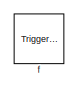
[diagram: State flow robot/Mov - part 1/4, top left region]
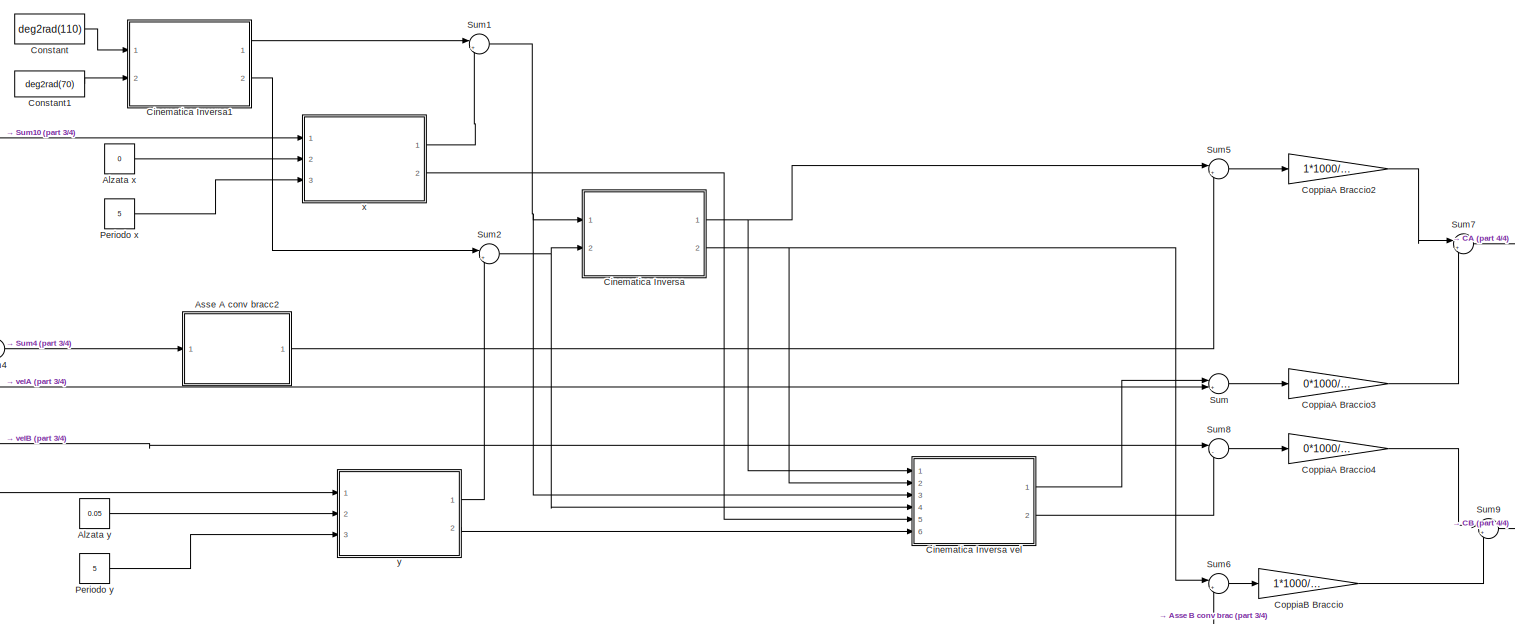
[diagram: State flow robot/Mov - part 2/4, middle right region]
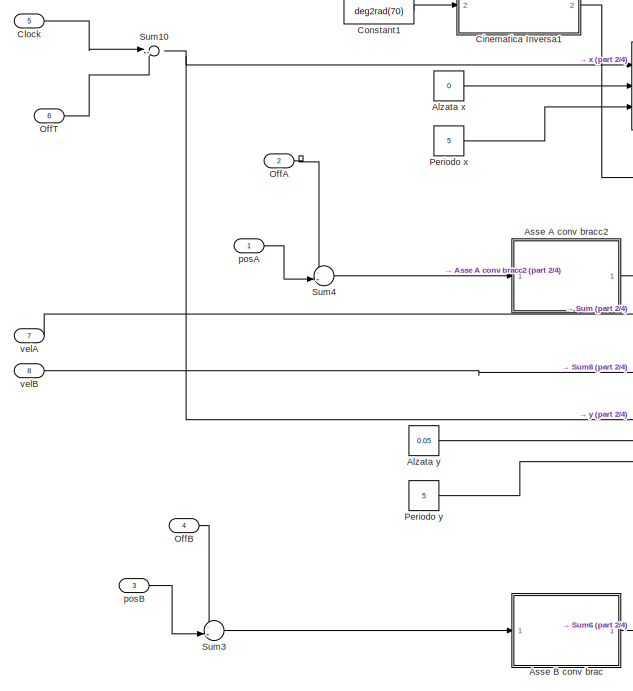
[diagram: State flow robot/Mov - part 3/4, bottom center region]
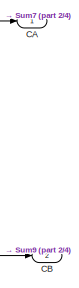
[diagram: State flow robot/Mov - part 4/4, middle right region]
BLOCK [SubSystem] State flow robot/Mov
  Commented = on
  Ports = [8, 2, 0, 1]
  PreDeleteFcn = Stateflow.SLINSF.SimulinkMan.removePreDeleteFcn
  RequestExecContextInheritance = off
  UndoDeleteFcn = Stateflow.SLINSF.SimulinkMan.restorePreDeleteFcn
  Variant = off
BLOCK [Constant] State flow robot/Mov/Alzata x
  Value = 0
BLOCK [Constant] State flow robot/Mov/Alzata y
  Value = 0.05
BLOCK [SubSystem] State flow robot/Mov/Asse A conv bracc2
  ErrorFcn = Stateflow.Translate.translate
  PermitHierarchicalResolution = ExplicitOnly
  Ports = [1, 1]
  RequestExecContextInheritance = off
  SFBlockType = MATLAB Function
  TreatAsAtomicUnit = on
  Variant = off
BLOCK [Demux] State flow robot/Mov/Asse A conv bracc2/ Demux 
  Outputs = 1
  Ports = [1, 1]
BLOCK [S-Function] State flow robot/Mov/Asse A conv bracc2/ SFunction 
  EnableBusSupport = on
  FunctionName = sf_sfun
  PortCounts = [1 2]
  Ports = [1, 2]
  SFcnIsStateOwnerBlock = off
  SFunctionDeploymentMode = off
  Tag = Stateflow S-Function State_Flow_TestM 32
BLOCK [Terminator] State flow robot/Mov/Asse A conv bracc2/ Terminator 
BLOCK [Inport] State flow robot/Mov/Asse A conv bracc2/p
  IconDisplay = Port number
BLOCK [Outport] State flow robot/Mov/Asse A conv bracc2/pos_A_conv
  IconDisplay = Port number
BLOCK [SubSystem] State flow robot/Mov/Asse B conv brac
  ErrorFcn = Stateflow.Translate.translate
  PermitHierarchicalResolution = ExplicitOnly
  Ports = [1, 1]
  RequestExecContextInheritance = off
  SFBlockType = MATLAB Function
  TreatAsAtomicUnit = on
  Variant = off
BLOCK [Demux] State flow robot/Mov/Asse B conv brac/ Demux 
  Outputs = 1
  Ports = [1, 1]
BLOCK [S-Function] State flow robot/Mov/Asse B conv brac/ SFunction 
  EnableBusSupport = on
  FunctionName = sf_sfun
  PortCounts = [1 2]
  Ports = [1, 2]
  SFcnIsStateOwnerBlock = off
  SFunctionDeploymentMode = off
  Tag = Stateflow S-Function State_Flow_TestM 34
BLOCK [Terminator] State flow robot/Mov/Asse B conv brac/ Terminator 
BLOCK [Inport] State flow robot/Mov/Asse B conv brac/p
  IconDisplay = Port number
BLOCK [Outport] State flow robot/Mov/Asse B conv brac/pos_B_conv
  IconDisplay = Port number
BLOCK [Outport] State flow robot/Mov/CA
  IconDisplay = Port number
BLOCK [Outport] State flow robot/Mov/CB
  IconDisplay = Port number
  Port = 2
BLOCK [SubSystem] State flow robot/Mov/Cinematica Inversa
  ErrorFcn = Stateflow.Translate.translate
  PermitHierarchicalResolution = ExplicitOnly
  Ports = [2, 2]
  RequestExecContextInheritance = off
  SFBlockType = MATLAB Function
  TreatAsAtomicUnit = on
  Variant = off
BLOCK [SubSystem] State flow robot/Mov/Cinematica Inversa vel
  ErrorFcn = Stateflow.Translate.translate
  PermitHierarchicalResolution = ExplicitOnly
  Ports = [6, 2]
  RequestExecContextInheritance = off
  SFBlockType = MATLAB Function
  TreatAsAtomicUnit = on
  Variant = off
BLOCK [Demux] State flow robot/Mov/Cinematica Inversa vel/ Demux 
  Outputs = 1
  Ports = [1, 1]
BLOCK [S-Function] State flow robot/Mov/Cinematica Inversa vel/ SFunction 
  EnableBusSupport = on
  FunctionName = sf_sfun
  PortCounts = [6 3]
  Ports = [6, 3]
  SFcnIsStateOwnerBlock = off
  SFunctionDeploymentMode = off
  Tag = Stateflow S-Function State_Flow_TestM 24
BLOCK [Terminator] State flow robot/Mov/Cinematica Inversa vel/ Terminator 
BLOCK [Inport] State flow robot/Mov/Cinematica Inversa vel/theta1
  IconDisplay = Port number
BLOCK [Outport] State flow robot/Mov/Cinematica Inversa vel/theta1_p
  IconDisplay = Port number
BLOCK [Inport] State flow robot/Mov/Cinematica Inversa vel/theta2
  IconDisplay = Port number
  Port = 2
BLOCK [Outport] State flow robot/Mov/Cinematica Inversa vel/theta2_p
  IconDisplay = Port number
  Port = 2
BLOCK [Inport] State flow robot/Mov/Cinematica Inversa vel/x
  IconDisplay = Port number
  Port = 3
BLOCK [Inport] State flow robot/Mov/Cinematica Inversa vel/xp
  IconDisplay = Port number
  Port = 5
BLOCK [Inport] State flow robot/Mov/Cinematica Inversa vel/y
  IconDisplay = Port number
  Port = 4
BLOCK [Inport] State flow robot/Mov/Cinematica Inversa vel/yp
  IconDisplay = Port number
  Port = 6
BLOCK [Demux] State flow robot/Mov/Cinematica Inversa/ Demux 
  Outputs = 1
  Ports = [1, 1]
BLOCK [S-Function] State flow robot/Mov/Cinematica Inversa/ SFunction 
  EnableBusSupport = on
  FunctionName = sf_sfun
  PortCounts = [2 3]
  Ports = [2, 3]
  SFcnIsStateOwnerBlock = off
  SFunctionDeploymentMode = off
  Tag = Stateflow S-Function State_Flow_TestM 23
BLOCK [Terminator] State flow robot/Mov/Cinematica Inversa/ Terminator 
BLOCK [Outport] State flow robot/Mov/Cinematica Inversa/theta1
  IconDisplay = Port number
BLOCK [Outport] State flow robot/Mov/Cinematica Inversa/theta2
  IconDisplay = Port number
  Port = 2
BLOCK [Inport] State flow robot/Mov/Cinematica Inversa/x
  IconDisplay = Port number
BLOCK [Inport] State flow robot/Mov/Cinematica Inversa/y
  IconDisplay = Port number
  Port = 2
BLOCK [SubSystem] State flow robot/Mov/Cinematica Inversa1
  ErrorFcn = Stateflow.Translate.translate
  PermitHierarchicalResolution = ExplicitOnly
  Ports = [2, 2]
  RequestExecContextInheritance = off
  SFBlockType = MATLAB Function
  TreatAsAtomicUnit = on
  Variant = off
BLOCK [Demux] State flow robot/Mov/Cinematica Inversa1/ Demux 
  Outputs = 1
  Ports = [1, 1]
BLOCK [S-Function] State flow robot/Mov/Cinematica Inversa1/ SFunction 
  EnableBusSupport = on
  FunctionName = sf_sfun
  PortCounts = [2 3]
  Ports = [2, 3]
  SFcnIsStateOwnerBlock = off
  SFunctionDeploymentMode = off
  Tag = Stateflow S-Function State_Flow_TestM 35
BLOCK [Terminator] State flow robot/Mov/Cinematica Inversa1/ Terminator 
BLOCK [Inport] State flow robot/Mov/Cinematica Inversa1/theta1_0
  IconDisplay = Port number
BLOCK [Inport] State flow robot/Mov/Cinematica Inversa1/theta2_0
  IconDisplay = Port number
  Port = 2
BLOCK [Outport] State flow robot/Mov/Cinematica Inversa1/x0
  IconDisplay = Port number
BLOCK [Outport] State flow robot/Mov/Cinematica Inversa1/y0
  IconDisplay = Port number
  Port = 2
BLOCK [Inport] State flow robot/Mov/Clock
  IconDisplay = Port number
  OutDataTypeStr = double
  Port = 5
  PortDimensions = 1
  SignalType = real
  VarSizeSig = No
BLOCK [Constant] State flow robot/Mov/Constant
  Value = deg2rad(110)
BLOCK [Constant] State flow robot/Mov/Constant1
  Value = deg2rad(70)
BLOCK [Gain] State flow robot/Mov/CoppiaA Braccio2
  Gain = 1*1000/0.7
  OutDataTypeStr = Inherit: Inherit via internal rule
  ParamDataTypeStr = Inherit: Inherit via internal rule
  SaturateOnIntegerOverflow = off
BLOCK [Gain] State flow robot/Mov/CoppiaA Braccio3
  Gain = 0*1000/0.7
  OutDataTypeStr = Inherit: Inherit via internal rule
  ParamDataTypeStr = Inherit: Inherit via internal rule
  SaturateOnIntegerOverflow = off
BLOCK [Gain] State flow robot/Mov/CoppiaA Braccio4
  Gain = 0*1000/0.7
  OutDataTypeStr = Inherit: Inherit via internal rule
  ParamDataTypeStr = Inherit: Inherit via internal rule
  SaturateOnIntegerOverflow = off
BLOCK [Gain] State flow robot/Mov/CoppiaB Braccio
  Gain = 1*1000/0.7
  OutDataTypeStr = Inherit: Inherit via internal rule
  ParamDataTypeStr = Inherit: Inherit via internal rule
  SaturateOnIntegerOverflow = off
BLOCK [Inport] State flow robot/Mov/OffA
  IconDisplay = Port number
  OutDataTypeStr = double
  Port = 2
  PortDimensions = 1
  SignalType = real
  VarSizeSig = No
BLOCK [Inport] State flow robot/Mov/OffB
  IconDisplay = Port number
  OutDataTypeStr = double
  Port = 4
  PortDimensions = 1
  SignalType = real
  VarSizeSig = No
BLOCK [Inport] State flow robot/Mov/OffT
  IconDisplay = Port number
  OutDataTypeStr = double
  Port = 6
  PortDimensions = 1
  SignalType = real
  VarSizeSig = No
BLOCK [Constant] State flow robot/Mov/Periodo x
  Value = 5
BLOCK [Constant] State flow robot/Mov/Periodo y
  Value = 5
BLOCK [Sum] State flow robot/Mov/Sum
  IconShape = round
  InputSameDT = off
  Inputs = |+-
  OutDataTypeStr = Inherit: Inherit via internal rule
  Ports = [2, 1]
  SaturateOnIntegerOverflow = off
BLOCK [Sum] State flow robot/Mov/Sum1
  IconShape = round
  InputSameDT = off
  Inputs = |++
  OutDataTypeStr = Inherit: Inherit via internal rule
  Ports = [2, 1]
  SaturateOnIntegerOverflow = off
BLOCK [Sum] State flow robot/Mov/Sum10
  IconShape = round
  InputSameDT = off
  Inputs = |+-
  OutDataTypeStr = Inherit: Inherit via internal rule
  Ports = [2, 1]
  SaturateOnIntegerOverflow = off
BLOCK [Sum] State flow robot/Mov/Sum2
  IconShape = round
  InputSameDT = off
  Inputs = |++
  OutDataTypeStr = Inherit: Inherit via internal rule
  Ports = [2, 1]
  SaturateOnIntegerOverflow = off
BLOCK [Sum] State flow robot/Mov/Sum3
  IconShape = round
  InputSameDT = off
  Inputs = -+|
  OutDataTypeStr = Inherit: Inherit via internal rule
  Ports = [2, 1]
  SaturateOnIntegerOverflow = off
BLOCK [Sum] State flow robot/Mov/Sum4
  IconShape = round
  InputSameDT = off
  Inputs = -+|
  OutDataTypeStr = Inherit: Inherit via internal rule
  Ports = [2, 1]
  SaturateOnIntegerOverflow = off
BLOCK [Sum] State flow robot/Mov/Sum5
  IconShape = round
  InputSameDT = off
  Inputs = |+-
  OutDataTypeStr = Inherit: Inherit via internal rule
  Ports = [2, 1]
  SaturateOnIntegerOverflow = off
BLOCK [Sum] State flow robot/Mov/Sum6
  IconShape = round
  InputSameDT = off
  Inputs = |+-
  OutDataTypeStr = Inherit: Inherit via internal rule
  Ports = [2, 1]
  SaturateOnIntegerOverflow = off
BLOCK [Sum] State flow robot/Mov/Sum7
  IconShape = round
  InputSameDT = off
  Inputs = |++
  OutDataTypeStr = Inherit: Inherit via internal rule
  Ports = [2, 1]
  SaturateOnIntegerOverflow = off
BLOCK [Sum] State flow robot/Mov/Sum8
  IconShape = round
  InputSameDT = off
  Inputs = |-+
  OutDataTypeStr = Inherit: Inherit via internal rule
  Ports = [2, 1]
  SaturateOnIntegerOverflow = off
BLOCK [Sum] State flow robot/Mov/Sum9
  IconShape = round
  InputSameDT = off
  Inputs = |++
  OutDataTypeStr = Inherit: Inherit via internal rule
  Ports = [2, 1]
  SaturateOnIntegerOverflow = off
BLOCK [TriggerPort] State flow robot/Mov/f
  CopyFcn = Stateflow.SLINSF.SimulinkMan.removeBlockPreDeleteFcn
  Ports = []
  PreDeleteFcn = Stateflow.SLINSF.SimulinkMan.unsafePredeleteFcn
  SampleTime = -1
  SampleTimeType = periodic
  StatesWhenEnabling = held
  TriggerType = function-call
  VariantControl = Variant
BLOCK [Inport] State flow robot/Mov/posA
  IconDisplay = Port number
  OutDataTypeStr = double
  PortDimensions = 1
  SignalType = real
  VarSizeSig = No
BLOCK [Inport] State flow robot/Mov/posB
  IconDisplay = Port number
  OutDataTypeStr = double
  Port = 3
  PortDimensions = 1
  SignalType = real
  VarSizeSig = No
BLOCK [Inport] State flow robot/Mov/velA
  IconDisplay = Port number
  OutDataTypeStr = double
  Port = 7
  PortDimensions = 1
  SignalType = real
  VarSizeSig = No
BLOCK [Inport] State flow robot/Mov/velB
  IconDisplay = Port number
  OutDataTypeStr = double
  Port = 8
  PortDimensions = 1
  SignalType = real
  VarSizeSig = No
BLOCK [SubSystem] State flow robot/Mov/x
  ErrorFcn = Stateflow.Translate.translate
  PermitHierarchicalResolution = ExplicitOnly
  Ports = [3, 2]
  RequestExecContextInheritance = off
  SFBlockType = MATLAB Function
  TreatAsAtomicUnit = on
  Variant = off
BLOCK [Demux] State flow robot/Mov/x/ Demux 
  Outputs = 1
  Ports = [1, 1]
BLOCK [S-Function] State flow robot/Mov/x/ SFunction 
  EnableBusSupport = on
  FunctionName = sf_sfun
  PortCounts = [3 3]
  Ports = [3, 3]
  SFcnIsStateOwnerBlock = off
  SFunctionDeploymentMode = off
  Tag = Stateflow S-Function State_Flow_TestM 31
BLOCK [Terminator] State flow robot/Mov/x/ Terminator 
BLOCK [Inport] State flow robot/Mov/x/T
  IconDisplay = Port number
  Port = 3
BLOCK [Inport] State flow robot/Mov/x/h
  IconDisplay = Port number
  Port = 2
BLOCK [Outport] State flow robot/Mov/x/ldm_pos
  IconDisplay = Port number
BLOCK [Outport] State flow robot/Mov/x/ldm_vel
  IconDisplay = Port number
  Port = 2
BLOCK [Inport] State flow robot/Mov/x/t
  IconDisplay = Port number
BLOCK [SubSystem] State flow robot/Mov/y
  ErrorFcn = Stateflow.Translate.translate
  PermitHierarchicalResolution = ExplicitOnly
  Ports = [3, 2]
  RequestExecContextInheritance = off
  SFBlockType = MATLAB Function
  TreatAsAtomicUnit = on
  Variant = off
BLOCK [Demux] State flow robot/Mov/y/ Demux 
  Outputs = 1
  Ports = [1, 1]
BLOCK [S-Function] State flow robot/Mov/y/ SFunction 
  EnableBusSupport = on
  FunctionName = sf_sfun
  PortCounts = [3 3]
  Ports = [3, 3]
  SFcnIsStateOwnerBlock = off
  SFunctionDeploymentMode = off
  Tag = Stateflow S-Function State_Flow_TestM 33
BLOCK [Terminator] State flow robot/Mov/y/ Terminator 
BLOCK [Inport] State flow robot/Mov/y/T
  IconDisplay = Port number
  Port = 3
BLOCK [Inport] State flow robot/Mov/y/h
  IconDisplay = Port number
  Port = 2
BLOCK [Outport] State flow robot/Mov/y/ldm_pos
  IconDisplay = Port number
BLOCK [Outport] State flow robot/Mov/y/ldm_vel
  IconDisplay = Port number
  Port = 2
BLOCK [Inport] State flow robot/Mov/y/t
  IconDisplay = Port number
BLOCK [SubSystem] State flow robot/Mov1
  Commented = on
  Ports = [6, 2, 0, 1]
  PreDeleteFcn = Stateflow.SLINSF.SimulinkMan.removePreDeleteFcn
  RequestExecContextInheritance = off
  UndoDeleteFcn = Stateflow.SLINSF.SimulinkMan.restorePreDeleteFcn
  Variant = off
BLOCK [SubSystem] State flow robot/Mov1/Asse A conv bracc
  ErrorFcn = Stateflow.Translate.translate
  PermitHierarchicalResolution = ExplicitOnly
  Ports = [1, 1]
  RequestExecContextInheritance = off
  SFBlockType = MATLAB Function
  TreatAsAtomicUnit = on
  Variant = off
BLOCK [Demux] State flow robot/Mov1/Asse A conv bracc/ Demux 
  Outputs = 1
  Ports = [1, 1]
BLOCK [S-Function] State flow robot/Mov1/Asse A conv bracc/ SFunction 
  EnableBusSupport = on
  FunctionName = sf_sfun
  PortCounts = [1 2]
  Ports = [1, 2]
  SFcnIsStateOwnerBlock = off
  SFunctionDeploymentMode = off
  Tag = Stateflow S-Function State_Flow_TestM 27
BLOCK [Terminator] State flow robot/Mov1/Asse A conv bracc/ Terminator 
BLOCK [Inport] State flow robot/Mov1/Asse A conv bracc/p
  IconDisplay = Port number
BLOCK [Outport] State flow robot/Mov1/Asse A conv bracc/pos_A_conv
  IconDisplay = Port number
BLOCK [SubSystem] State flow robot/Mov1/Asse A conv bracc1
  ErrorFcn = Stateflow.Translate.translate
  PermitHierarchicalResolution = ExplicitOnly
  Ports = [1, 1]
  RequestExecContextInheritance = off
  SFBlockType = MATLAB Function
  TreatAsAtomicUnit = on
  Variant = off
BLOCK [Demux] State flow robot/Mov1/Asse A conv bracc1/ Demux 
  Outputs = 1
  Ports = [1, 1]
BLOCK [S-Function] State flow robot/Mov1/Asse A conv bracc1/ SFunction 
  EnableBusSupport = on
  FunctionName = sf_sfun
  PortCounts = [1 2]
  Ports = [1, 2]
  SFcnIsStateOwnerBlock = off
  SFunctionDeploymentMode = off
  Tag = Stateflow S-Function State_Flow_TestM 28
BLOCK [Terminator] State flow robot/Mov1/Asse A conv bracc1/ Terminator 
BLOCK [Inport] State flow robot/Mov1/Asse A conv bracc1/p
  IconDisplay = Port number
BLOCK [Outport] State flow robot/Mov1/Asse A conv bracc1/pos_A_conv
  IconDisplay = Port number
BLOCK [Outport] State flow robot/Mov1/CA
  IconDisplay = Port number
BLOCK [Outport] State flow robot/Mov1/CB
  IconDisplay = Port number
  Port = 2
BLOCK [Inport] State flow robot/Mov1/Clock
  IconDisplay = Port number
  OutDataTypeStr = double
  Port = 6
  PortDimensions = 1
  SignalType = real
  VarSizeSig = No
BLOCK [SubSystem] State flow robot/Mov1/Clock reale
  Ports = [2, 1]
  RequestExecContextInheritance = off
  Variant = off
BLOCK [Outport] State flow robot/Mov1/Clock reale/Ck
  IconDisplay = Port number
BLOCK [Sum] State flow robot/Mov1/Clock reale/Sum2
  IconShape = round
  InputSameDT = off
  Inputs = -+|
  OutDataTypeStr = Inherit: Inherit via internal rule
  Ports = [2, 1]
  SaturateOnIntegerOverflow = off
BLOCK [Inport] State flow robot/Mov1/Clock reale/cr
  IconDisplay = Port number
BLOCK [Inport] State flow robot/Mov1/Clock reale/offset
  IconDisplay = Port number
  Port = 2
BLOCK [Gain] State flow robot/Mov1/CoppiaA Braccio
  Gain = 8*1000/0.7
  OutDataTypeStr = Inherit: Inherit via internal rule
  ParamDataTypeStr = Inherit: Inherit via internal rule
  SaturateOnIntegerOverflow = off
BLOCK [Gain] State flow robot/Mov1/CoppiaA Braccio1
  Gain = 8*1000/0.7
  OutDataTypeStr = Inherit: Inherit via internal rule
  ParamDataTypeStr = Inherit: Inherit via internal rule
  SaturateOnIntegerOverflow = off
BLOCK [SubSystem] State flow robot/Mov1/Ldm theta1
  ErrorFcn = Stateflow.Translate.translate
  PermitHierarchicalResolution = ExplicitOnly
  Ports = [2, 1]
  RequestExecContextInheritance = off
  SFBlockType = MATLAB Function
  TreatAsAtomicUnit = on
  Variant = off
BLOCK [Demux] State flow robot/Mov1/Ldm theta1/ Demux 
  Outputs = 1
  Ports = [1, 1]
BLOCK [S-Function] State flow robot/Mov1/Ldm theta1/ SFunction 
  EnableBusSupport = on
  FunctionName = sf_sfun
  PortCounts = [2 2]
  Ports = [2, 2]
  SFcnIsStateOwnerBlock = off
  SFunctionDeploymentMode = off
  Tag = Stateflow S-Function State_Flow_TestM 29
BLOCK [Terminator] State flow robot/Mov1/Ldm theta1/ Terminator 
BLOCK [Inport] State flow robot/Mov1/Ldm theta1/T1
  IconDisplay = Port number
  Port = 2
BLOCK [Inport] State flow robot/Mov1/Ldm theta1/t
  IconDisplay = Port number
BLOCK [Outport] State flow robot/Mov1/Ldm theta1/theta1
  IconDisplay = Port number
BLOCK [SubSystem] State flow robot/Mov1/Ldm theta2
  ErrorFcn = Stateflow.Translate.translate
  PermitHierarchicalResolution = ExplicitOnly
  Ports = [2, 1]
  RequestExecContextInheritance = off
  SFBlockType = MATLAB Function
  TreatAsAtomicUnit = on
  Variant = off
BLOCK [Demux] State flow robot/Mov1/Ldm theta2/ Demux 
  Outputs = 1
  Ports = [1, 1]
BLOCK [S-Function] State flow robot/Mov1/Ldm theta2/ SFunction 
  EnableBusSupport = on
  FunctionName = sf_sfun
  PortCounts = [2 2]
  Ports = [2, 2]
  SFcnIsStateOwnerBlock = off
  SFunctionDeploymentMode = off
  Tag = Stateflow S-Function State_Flow_TestM 30
BLOCK [Terminator] State flow robot/Mov1/Ldm theta2/ Terminator 
BLOCK [Inport] State flow robot/Mov1/Ldm theta2/T1
  IconDisplay = Port number
  Port = 2
BLOCK [Inport] State flow robot/Mov1/Ldm theta2/t
  IconDisplay = Port number
BLOCK [Outport] State flow robot/Mov1/Ldm theta2/theta1
  IconDisplay = Port number
BLOCK [Inport] State flow robot/Mov1/OffA
  IconDisplay = Port number
  OutDataTypeStr = double
  Port = 2
  PortDimensions = 1
  SignalType = real
  VarSizeSig = No
BLOCK [Inport] State flow robot/Mov1/OffB
  IconDisplay = Port number
  OutDataTypeStr = double
  Port = 4
  PortDimensions = 1
  SignalType = real
  VarSizeSig = No
BLOCK [Inport] State flow robot/Mov1/OffT
  IconDisplay = Port number
  OutDataTypeStr = double
  Port = 5
  PortDimensions = 1
  SignalType = real
  VarSizeSig = No
BLOCK [Sum] State flow robot/Mov1/Sum1
  IconShape = round
  InputSameDT = off
  Inputs = -+|
  OutDataTypeStr = Inherit: Inherit via internal rule
  Ports = [2, 1]
  SaturateOnIntegerOverflow = off
BLOCK [Sum] State flow robot/Mov1/Sum10
  IconShape = round
  InputSameDT = off
  Inputs = -+|
  OutDataTypeStr = Inherit: Inherit via internal rule
  Ports = [2, 1]
  SaturateOnIntegerOverflow = off
BLOCK [Sum] State flow robot/Mov1/Sum11
  IconShape = round
  InputSameDT = off
  Inputs = |+-
  OutDataTypeStr = Inherit: Inherit via internal rule
  Ports = [2, 1]
  SaturateOnIntegerOverflow = off
BLOCK [Sum] State flow robot/Mov1/Sum2
  IconShape = round
  InputSameDT = off
  Inputs = |+-
  OutDataTypeStr = Inherit: Inherit via internal rule
  Ports = [2, 1]
  SaturateOnIntegerOverflow = off
BLOCK [TriggerPort] State flow robot/Mov1/f
  CopyFcn = Stateflow.SLINSF.SimulinkMan.removeBlockPreDeleteFcn
  Ports = []
  PreDeleteFcn = Stateflow.SLINSF.SimulinkMan.unsafePredeleteFcn
  SampleTime = -1
  SampleTimeType = periodic
  StatesWhenEnabling = held
  TriggerType = function-call
  VariantControl = Variant
BLOCK [Inport] State flow robot/Mov1/posA
  IconDisplay = Port number
  OutDataTypeStr = double
  PortDimensions = 1
  SignalType = real
  VarSizeSig = No
BLOCK [Inport] State flow robot/Mov1/posB
  IconDisplay = Port number
  OutDataTypeStr = double
  Port = 3
  PortDimensions = 1
  SignalType = real
  VarSizeSig = No
BLOCK [Outport] State flow robot/OffA
  IconDisplay = Port number
  Port = 6
BLOCK [Outport] State flow robot/OffA_vite
  IconDisplay = Port number
  Port = 4
BLOCK [Outport] State flow robot/OffB
  IconDisplay = Port number
  Port = 7
BLOCK [Outport] State flow robot/OffB_vite
  IconDisplay = Port number
  Port = 5
BLOCK [Outport] State flow robot/OffT
  IconDisplay = Port number
  Port = 2
BLOCK [Inport] State flow robot/Status
  IconDisplay = Port number
  Port = 4
BLOCK [Inport] State flow robot/avvio
  IconDisplay = Port number
  Port = 12
BLOCK [Inport] State flow robot/fc
  IconDisplay = Port number
  Port = 5
BLOCK [Inport] State flow robot/fcA
  IconDisplay = Port number
  Port = 8
BLOCK [Inport] State flow robot/fcB
  IconDisplay = Port number
  Port = 9
BLOCK [Inport] State flow robot/posA
  IconDisplay = Port number
  Port = 6
BLOCK [Inport] State flow robot/posA_vite
  IconDisplay = Port number
  Port = 2
BLOCK [Inport] State flow robot/posB
  IconDisplay = Port number
  Port = 7
BLOCK [Inport] State flow robot/posB_vite
  IconDisplay = Port number
  Port = 3
BLOCK [SubSystem] Status
  Ports = [0, 1]
  RequestExecContextInheritance = off
  Variant = off
BLOCK [DataTypeConversion] Status/Data Type Conversion6
  RndMeth = Floor
  SaturateOnIntegerOverflow = off
BLOCK [Reference] Status/Status Word  REF=xpcethercatlib/EtherCAT PDO Receive
  Ports = [0, 1]
  Priority = 2
  SourceBlock = xpcethercatlib/EtherCAT PDO Receive
  SourceProductBaseCode = XP
  SourceProductName = Simulink Real-Time
  SourceType = xpcethercat_rx_var
BLOCK [Outport] Status/Word
  IconDisplay = Port number
BLOCK [Goto] Z graph
  GotoTag = Z
ANNOTATION (root): Controllo Braccia
ANNOTATION (root): Controllo Dinamica Inversa
ANNOTATION (root): Controllo Vite
ANNOTATION (root): Coppie Out
ANNOTATION (root): Inizializzazione
ANNOTATION (root): Inizializzazione lavoro
ANNOTATION (root): Input
ANNOTATION (root): State Flow
ANNOTATION Movimento: Quadrato Cerchio Ghirigori Cerchi tangenti Spirale
ANNOTATION Movimento: Cinematica Inversa
ANNOTATION Movimento: Controllo dinamica inversa
ANNOTATION Movimento: Plot 3D
ANNOTATION Movimento Braccia: Quadrato Cerchio Ghirigori Cerchi tangenti Spirale
ANNOTATION Movimento Braccia: Plot 3D
ANNOTATION Out Asse A Braccia: Invio motore asse A
ANNOTATION Out Asse B Braccia: Invio motore Asse B
ANNOTATION Out asse A Vite: Asse A Vite
ANNOTATION Out asse A Vite: Quando è minore di 2 sta eseguendo la fase di homing
ANNOTATION Out asse B Vite: Asse B Vite
LINE Alzata A:1 -> Sistema Vite:7
LINE Alzata B :1 -> Sistema Vite:9
LINE Asse A braccia:1 -> Data Type Conversion7:1
LINE Asse A vite:1 -> Data Type Conversion2:1
LINE Asse B braccia:1 -> Data Type Conversion5:1
LINE Asse B vite:1 -> Data Type Conversion1:1
LINE Clock:1 -> Goto4:1
LINE Data Type Conversion1:1 -> EtherCAT PDO Transmit 4:1
LINE Data Type Conversion2:1 -> EtherCAT PDO Transmit 6:1
LINE Data Type Conversion5:1 -> EtherCAT PDO Transmit 3:1
LINE Data Type Conversion7:1 -> EtherCAT PDO Transmit 5:1
LINE EtherCAT Init :1 -> Display:1
LINE Finecorsa Vite/Data Type Conversion8:1 -> Finecorsa Vite/Integer to Bit Converter:1
LINE Finecorsa Vite/EtherCAT PDO Receive16:1 -> Finecorsa Vite/Data Type Conversion8:1
LINE Finecorsa Vite/Integer to Bit Converter:1 -> Finecorsa Vite/Selector:1
LINE Finecorsa Vite/Selector:1 -> Finecorsa Vite/fcV:1
LINE Finecorsa Vite:1 -> State flow robot:5
LINE Finecorsa braccia/Data Type Conversion8:1 -> Finecorsa braccia/Integer to Bit Converter:1
LINE Finecorsa braccia/EtherCAT PDO Receive16:1 -> Finecorsa braccia/Data Type Conversion8:1
NET Finecorsa braccia/Integer to Bit Converter:1 -> Finecorsa braccia/Selector1:1, Finecorsa braccia/Selector:1
LINE Finecorsa braccia/Selector1:1 -> Finecorsa braccia/Asse B:1
LINE Finecorsa braccia/Selector:1 -> Finecorsa braccia/Asse A:1
LINE Finecorsa braccia:1 -> State flow robot:8
LINE Finecorsa braccia:2 -> State flow robot:9
LINE From10:1 -> Out Asse B Braccia:2
LINE From11:1 -> Out Asse A Braccia:2
LINE From12:1 -> Out Asse A Braccia:1
LINE From13:1 -> Out Asse B Braccia:1
LINE From14:1 -> Out asse B Vite:1
LINE From15:1 -> Out asse A Vite:2
LINE From16:1 -> Sistema Vite:3
LINE From17:1 -> Sistema Vite:1
LINE From18:1 -> State flow robot:1
LINE From19:1 -> State flow robot:6
LINE From1:1 -> Movimento Braccia:2
LINE From20:1 -> State flow robot:7
LINE From21:1 -> Sistema Vite:2
LINE From22:1 -> State flow robot:2
LINE From23:1 -> State flow robot:3
LINE From24:1 -> Sistema Vite:4
LINE From25:1 -> Out asse A Vite:1
LINE From26:1 -> Sistema Vite:5
LINE From27:1 -> Sistema Vite:6
LINE From28:1 -> Movimento Braccia:7
LINE From29:1 -> Movimento Braccia:8
LINE From2:1 -> Movimento Braccia:3
LINE From30:1 -> Movimento:1
LINE From31:1 -> Movimento:2
LINE From32:1 -> Movimento:3
LINE From33:1 -> Movimento:7
LINE From34:1 -> Movimento:8
LINE From35:1 -> Movimento:4
LINE From36:1 -> Movimento:6
LINE From37:1 -> Movimento:5
LINE From38:1 -> Movimento:9
LINE From3:1 -> Movimento Braccia:5
LINE From4:1 -> Movimento Braccia:4
LINE From5:1 -> Movimento Braccia:6
LINE From6:1 -> Out Asse B Braccia:3
LINE From7:1 -> Out Asse A Braccia:3
LINE From8:1 -> Out asse A Vite:3
LINE From9:1 -> Out asse B Vite:2
LINE From:1 -> Movimento Braccia:1
LINE Kp:1 -> State flow robot:10
LINE LED Status/Data Type Conversion24:1 -> LED Status/Luce Rossa :1
LINE LED Status/Data Type Conversion25:1 -> LED Status/Luce Bianca:1
LINE LED Status/Data Type Conversion26:1 -> LED Status/Luce Verde:1
NET LED Status/Luci:1 -> LED Status/MATLAB Function1:1, LED Status/MATLAB Function2:1, LED Status/MATLAB Function:1
LINE LED Status/MATLAB Function1:1 -> LED Status/Data Type Conversion25:1
LINE LED Status/MATLAB Function2:1 -> LED Status/Data Type Conversion26:1
LINE LED Status/MATLAB Function:1 -> LED Status/Data Type Conversion24:1
LINE Movimento Braccia/Asse A conv brac:1 -> Movimento Braccia/Sum3:2
LINE Movimento Braccia/Asse B conv brac1:1 -> Movimento Braccia/Sum2:2
NET Movimento Braccia/Bool :1 -> Movimento Braccia/MATLAB Function1:3, Movimento Braccia/MATLAB Function:3
LINE Movimento Braccia/Cinematica Inversa vel:1 -> Movimento Braccia/Sum6:2
LINE Movimento Braccia/Cinematica Inversa vel:2 -> Movimento Braccia/Sum17:2
NET Movimento Braccia/Cinematica Inversa1:1 -> Movimento Braccia/Memory:1, Movimento Braccia/Sum:2
NET Movimento Braccia/Cinematica Inversa1:2 -> Movimento Braccia/Memory1:1, Movimento Braccia/Sum1:2
NET Movimento Braccia/Cinematica Inversa:1 -> Movimento Braccia/Cinematica Inversa vel:1, Movimento Braccia/Sum14:2
NET Movimento Braccia/Cinematica Inversa:2 -> Movimento Braccia/Cinematica Inversa vel:2, Movimento Braccia/Sum5:1
LINE Movimento Braccia/Clock reale/Sum2:1 -> Movimento Braccia/Clock reale/Ck:1
LINE Movimento Braccia/Clock reale/cr:1 -> Movimento Braccia/Clock reale/Sum2:2
LINE Movimento Braccia/Clock reale/offset:1 -> Movimento Braccia/Clock reale/Sum2:1
NET Movimento Braccia/Clock reale:1 -> Movimento Braccia/Cinematica Inversa1:5, Movimento Braccia/Subsystem:1
LINE Movimento Braccia/Clock:1 -> Movimento Braccia/Clock reale:1
LINE Movimento Braccia/Constant1:1 -> Movimento Braccia/Sum3:1
LINE Movimento Braccia/Constant:1 -> Movimento Braccia/Sum2:1
LINE Movimento Braccia/Coppia theta 1 vel:1 -> Movimento Braccia/Sum7:2
LINE Movimento Braccia/Coppia theta 2 vel:1 -> Movimento Braccia/Sum8:2
LINE Movimento Braccia/From1:1 -> Movimento Braccia/Sum1:1
LINE Movimento Braccia/From2:1 -> Movimento Braccia/MATLAB Function:2
LINE Movimento Braccia/From3:1 -> Movimento Braccia/MATLAB Function:1
LINE Movimento Braccia/From4:1 -> Movimento Braccia/MATLAB Function1:1
LINE Movimento Braccia/From5:1 -> Movimento Braccia/Cinematica Inversa vel:6
LINE Movimento Braccia/From6:1 -> Movimento Braccia/Sum:1
LINE Movimento Braccia/From:1 -> Movimento Braccia/Cinematica Inversa vel:5
LINE Movimento Braccia/MATLAB Function1:1 -> Movimento Braccia/XZ Graph:1
LINE Movimento Braccia/MATLAB Function1:2 -> Movimento Braccia/XZ Graph:2
LINE Movimento Braccia/MATLAB Function:1 -> Movimento Braccia/XY Graph:1
LINE Movimento Braccia/MATLAB Function:2 -> Movimento Braccia/XY Graph:2
LINE Movimento Braccia/Memory1:1 -> Movimento Braccia/Cinematica Inversa1:2
LINE Movimento Braccia/Memory:1 -> Movimento Braccia/Cinematica Inversa1:1
LINE Movimento Braccia/Off A:1 -> Movimento Braccia/Sum4:1
LINE Movimento Braccia/Off B:1 -> Movimento Braccia/Sum12:1
LINE Movimento Braccia/OffT:1 -> Movimento Braccia/Clock reale:2
LINE Movimento Braccia/PID Controller1:1 -> Movimento Braccia/Sum8:1
LINE Movimento Braccia/PID Controller2:1 -> Movimento Braccia/Sum7:1
LINE Movimento Braccia/Pos A:1 -> Movimento Braccia/Sum4:2
LINE Movimento Braccia/Pos B:1 -> Movimento Braccia/Sum12:2
LINE Movimento Braccia/Subsystem/Alzata C1:1 -> Movimento Braccia/Subsystem/g:2
LINE Movimento Braccia/Subsystem/Alzata C:1 -> Movimento Braccia/Subsystem/Cerchio:3
LINE Movimento Braccia/Subsystem/Alzata Q:1 -> Movimento Braccia/Subsystem/Quadrato:3
LINE Movimento Braccia/Subsystem/Cerchi Tangenti:1 -> Movimento Braccia/Subsystem/Mux3:1
LINE Movimento Braccia/Subsystem/Cerchi Tangenti:2 -> Movimento Braccia/Subsystem/Mux3:2
LINE Movimento Braccia/Subsystem/Cerchi Tangenti:3 -> Movimento Braccia/Subsystem/Mux3:3
LINE Movimento Braccia/Subsystem/Cerchi Tangenti:4 -> Movimento Braccia/Subsystem/Mux3:4
LINE Movimento Braccia/Subsystem/Cerchio:1 -> Movimento Braccia/Subsystem/Mux1:1
LINE Movimento Braccia/Subsystem/Cerchio:2 -> Movimento Braccia/Subsystem/Mux1:2
LINE Movimento Braccia/Subsystem/Cerchio:3 -> Movimento Braccia/Subsystem/Mux1:3
LINE Movimento Braccia/Subsystem/Cerchio:4 -> Movimento Braccia/Subsystem/Mux1:4
LINE Movimento Braccia/Subsystem/Constant3:1 -> Movimento Braccia/Subsystem/Cerchi Tangenti:2
LINE Movimento Braccia/Subsystem/Demux:1 -> Movimento Braccia/Subsystem/x:1
LINE Movimento Braccia/Subsystem/Demux:2 -> Movimento Braccia/Subsystem/y:1
LINE Movimento Braccia/Subsystem/Demux:3 -> Movimento Braccia/Subsystem/x_p:1
LINE Movimento Braccia/Subsystem/Demux:4 -> Movimento Braccia/Subsystem/y_p:1
LINE Movimento Braccia/Subsystem/Multiport Switch:1 -> Movimento Braccia/Subsystem/Demux:1
LINE Movimento Braccia/Subsystem/Mux1:1 -> Movimento Braccia/Subsystem/Multiport Switch:3
LINE Movimento Braccia/Subsystem/Mux2:1 -> Movimento Braccia/Subsystem/Multiport Switch:4
LINE Movimento Braccia/Subsystem/Mux3:1 -> Movimento Braccia/Subsystem/Multiport Switch:5
LINE Movimento Braccia/Subsystem/Mux4:1 -> Movimento Braccia/Subsystem/Multiport Switch:6
LINE Movimento Braccia/Subsystem/Mux:1 -> Movimento Braccia/Subsystem/Multiport Switch:2
LINE Movimento Braccia/Subsystem/N giri:1 -> Movimento Braccia/Subsystem/spirale:4
LINE Movimento Braccia/Subsystem/Periodo C1:1 -> Movimento Braccia/Subsystem/g:3
LINE Movimento Braccia/Subsystem/Periodo C:1 -> Movimento Braccia/Subsystem/Cerchio:2
LINE Movimento Braccia/Subsystem/Periodo Q:1 -> Movimento Braccia/Subsystem/Quadrato:2
LINE Movimento Braccia/Subsystem/Periodo:1 -> Movimento Braccia/Subsystem/spirale:2
LINE Movimento Braccia/Subsystem/Quadrato:1 -> Movimento Braccia/Subsystem/Mux:1
LINE Movimento Braccia/Subsystem/Quadrato:2 -> Movimento Braccia/Subsystem/Mux:2
LINE Movimento Braccia/Subsystem/Quadrato:3 -> Movimento Braccia/Subsystem/Mux:3
LINE Movimento Braccia/Subsystem/Quadrato:4 -> Movimento Braccia/Subsystem/Mux:4
LINE Movimento Braccia/Subsystem/Rmax:1 -> Movimento Braccia/Subsystem/spirale:3
LINE Movimento Braccia/Subsystem/Rmin:1 -> Movimento Braccia/Subsystem/spirale:5
LINE Movimento Braccia/Subsystem/Selection:1 -> Movimento Braccia/Subsystem/Multiport Switch:1
LINE Movimento Braccia/Subsystem/Tempo spost. iniziale:1 -> Movimento Braccia/Subsystem/spirale:6
LINE Movimento Braccia/Subsystem/g:1 -> Movimento Braccia/Subsystem/Mux2:1
LINE Movimento Braccia/Subsystem/g:2 -> Movimento Braccia/Subsystem/Mux2:2
LINE Movimento Braccia/Subsystem/g:3 -> Movimento Braccia/Subsystem/Mux2:3
LINE Movimento Braccia/Subsystem/g:4 -> Movimento Braccia/Subsystem/Mux2:4
LINE Movimento Braccia/Subsystem/spirale:1 -> Movimento Braccia/Subsystem/Mux4:1
LINE Movimento Braccia/Subsystem/spirale:2 -> Movimento Braccia/Subsystem/Mux4:2
LINE Movimento Braccia/Subsystem/spirale:3 -> Movimento Braccia/Subsystem/Mux4:3
LINE Movimento Braccia/Subsystem/spirale:4 -> Movimento Braccia/Subsystem/Mux4:4
NET Movimento Braccia/Subsystem/time:1 -> Movimento Braccia/Subsystem/Cerchi Tangenti:1, Movimento Braccia/Subsystem/Cerchio:1, Movimento Braccia/Subsystem/Quadrato:1, Movimento Braccia/Subsystem/g:1, Movimento Braccia/Subsystem/spirale:1
LINE Movimento Braccia/Subsystem:1 -> Movimento Braccia/Goto2:1
LINE Movimento Braccia/Subsystem:2 -> Movimento Braccia/Goto1:1
LINE Movimento Braccia/Subsystem:3 -> Movimento Braccia/Goto:1
LINE Movimento Braccia/Subsystem:4 -> Movimento Braccia/Goto3:1
LINE Movimento Braccia/Sum12:1 -> Movimento Braccia/Asse B conv brac1:1
LINE Movimento Braccia/Sum14:1 -> Movimento Braccia/PID Controller2:1
LINE Movimento Braccia/Sum17:1 -> Movimento Braccia/Coppia theta 2 vel:1
NET Movimento Braccia/Sum1:1 -> Movimento Braccia/Cinematica Inversa vel:4, Movimento Braccia/Cinematica Inversa:2
NET Movimento Braccia/Sum2:1 -> Movimento Braccia/Cinematica Inversa1:3, Movimento Braccia/Sum14:1
NET Movimento Braccia/Sum3:1 -> Movimento Braccia/Cinematica Inversa1:4, Movimento Braccia/Sum5:2
LINE Movimento Braccia/Sum4:1 -> Movimento Braccia/Asse A conv brac:1
LINE Movimento Braccia/Sum5:1 -> Movimento Braccia/PID Controller1:1
LINE Movimento Braccia/Sum6:1 -> Movimento Braccia/Coppia theta 1 vel:1
LINE Movimento Braccia/Sum7:1 -> Movimento Braccia/Out Asse B:1
LINE Movimento Braccia/Sum8:1 -> Movimento Braccia/Out Asse A:1
NET Movimento Braccia/Sum:1 -> Movimento Braccia/Cinematica Inversa vel:3, Movimento Braccia/Cinematica Inversa:1
LINE Movimento Braccia/Velocita vite /EtherCAT PDO Receive14:1 -> Movimento Braccia/Velocita vite /Velocity A:1
LINE Movimento Braccia/Velocita vite /EtherCAT PDO Receive15:1 -> Movimento Braccia/Velocita vite /Velocity B:1
LINE Movimento Braccia/Velocita vite /Vel Asse A conv:1 -> Movimento Braccia/Velocita vite /Asse A:1
LINE Movimento Braccia/Velocita vite /Vel Asse B conv:1 -> Movimento Braccia/Velocita vite /Asse B:1
LINE Movimento Braccia/Velocita vite /Velocity A:1 -> Movimento Braccia/Velocita vite /Vel Asse A conv:1
LINE Movimento Braccia/Velocita vite /Velocity B:1 -> Movimento Braccia/Velocita vite /Vel Asse B conv:1
LINE Movimento Braccia/Velocita vite :1 -> Movimento Braccia/Sum6:1
LINE Movimento Braccia/Velocita vite :2 -> Movimento Braccia/Sum17:1
LINE Movimento Braccia/Z:1 -> Movimento Braccia/MATLAB Function1:2
LINE Movimento Braccia/selettore:1 -> Movimento Braccia/Subsystem:2
LINE Movimento Braccia:1 -> Goto6:1
LINE Movimento Braccia:2 -> Goto7:1
NET Movimento/Bool :1 -> Movimento/Goto12:1, Movimento/MATLAB Function1:3, Movimento/MATLAB Function2:3, Movimento/MATLAB Function:3
LINE Movimento/Cinematica Inversa Acc:1 -> Movimento/Goto10:1
LINE Movimento/Cinematica Inversa Acc:2 -> Movimento/Goto11:1
LINE Movimento/Cinematica Inversa vel:1 -> Movimento/Goto8:1
LINE Movimento/Cinematica Inversa vel:2 -> Movimento/Goto9:1
LINE Movimento/Cinematica Inversa:1 -> Movimento/Goto6:1
LINE Movimento/Cinematica Inversa:2 -> Movimento/Goto7:1
LINE Movimento/Cinematica diretta Acc:1 -> Movimento/Sum2:1
LINE Movimento/Cinematica diretta Acc:2 -> Movimento/Sum3:1
LINE Movimento/Cinematica diretta:1 -> Movimento/MATLAB Function2:1
LINE Movimento/Cinematica diretta:2 -> Movimento/MATLAB Function2:2
LINE Movimento/Clock reale/Sum2:1 -> Movimento/Clock reale/Ck:1
LINE Movimento/Clock reale/cr:1 -> Movimento/Clock reale/Sum2:2
LINE Movimento/Clock reale/offset:1 -> Movimento/Clock reale/Sum2:1
LINE Movimento/Clock reale:1 -> Movimento/Leggi di moto:1
LINE Movimento/Clock:1 -> Movimento/Clock reale:1
LINE Movimento/Coppia motrice:1 -> Movimento/Gain:1
LINE Movimento/Coppia motrice:2 -> Movimento/Gain1:1
NET Movimento/Demux:1 -> Movimento/Coppia motrice:3, Movimento/Dinamica Inversa1:6
NET Movimento/Demux:2 -> Movimento/Coppia motrice:4, Movimento/Dinamica Inversa1:7
LINE Movimento/Dinamica Inversa1:1 -> Movimento/Coppia motrice:1
LINE Movimento/Dinamica Inversa1:2 -> Movimento/Coppia motrice:2
LINE Movimento/Dinamica Inversa1:3 -> Movimento/Terminator6:1
LINE Movimento/Dinamica Inversa1:4 -> Movimento/Terminator7:1
LINE Movimento/Dinamica Inversa1:5 -> Movimento/Memory:1
LINE Movimento/From10:1 -> Movimento/Cinematica diretta Acc:10
LINE Movimento/From11:1 -> Movimento/Cinematica Inversa Acc:5
LINE Movimento/From12:1 -> Movimento/Cinematica Inversa Acc:6
LINE Movimento/From13:1 -> Movimento/Sum2:2
LINE Movimento/From14:1 -> Movimento/Sum3:2
LINE Movimento/From15:1 -> Movimento/MATLAB Jin:3
LINE Movimento/From16:1 -> Movimento/Dinamica Inversa1:1
LINE Movimento/From18:1 -> Movimento/Cinematica diretta Acc:1
LINE Movimento/From19:1 -> Movimento/Cinematica Inversa Acc:7
LINE Movimento/From1:1 -> Movimento/Sum1:1
LINE Movimento/From20:1 -> Movimento/MATLAB Jin:4
LINE Movimento/From22:1 -> Movimento/Cinematica diretta Acc:2
LINE Movimento/From23:1 -> Movimento/Cinematica Inversa Acc:8
LINE Movimento/From25:1 -> Movimento/MATLAB Jin:5
LINE Movimento/From27:1 -> Movimento/Cinematica diretta Acc:3
LINE Movimento/From28:1 -> Movimento/Cinematica Inversa Acc:9
LINE Movimento/From2:1 -> Movimento/MATLAB Function:2
LINE Movimento/From32:1 -> Movimento/Cinematica diretta Acc:4
LINE Movimento/From33:1 -> Movimento/Cinematica Inversa Acc:10
LINE Movimento/From34:1 -> Movimento/MATLAB Jin:6
LINE Movimento/From35:1 -> Movimento/Cinematica Inversa vel:1
LINE Movimento/From36:1 -> Movimento/Cinematica Inversa vel:2
LINE Movimento/From38:1 -> Movimento/Cinematica diretta Acc:5
LINE Movimento/From3:1 -> Movimento/MATLAB Function:1
LINE Movimento/From40:1 -> Movimento/Cinematica diretta Acc:6
LINE Movimento/From41:1 -> Movimento/Mux:1
LINE Movimento/From42:1 -> Movimento/Mux:2
LINE Movimento/From43:1 -> Movimento/Mux2:1
LINE Movimento/From44:1 -> Movimento/Mux2:2
LINE Movimento/From45:1 -> Movimento/Mux3:2
LINE Movimento/From46:1 -> Movimento/Mux3:1
LINE Movimento/From4:1 -> Movimento/MATLAB Function1:1
LINE Movimento/From5:1 -> Movimento/Cinematica Inversa vel:5
LINE Movimento/From6:1 -> Movimento/Cinematica Inversa Acc:3
LINE Movimento/From7:1 -> Movimento/Cinematica diretta Acc:9
LINE Movimento/From8:1 -> Movimento/Cinematica Inversa vel:6
LINE Movimento/From9:1 -> Movimento/Cinematica Inversa Acc:4
LINE Movimento/From:1 -> Movimento/Sum:2
LINE Movimento/Gain1:1 -> Movimento/AsseA:1
LINE Movimento/Gain:1 -> Movimento/AsseB:1
LINE Movimento/Kd:1 -> Movimento/Sum9:2
LINE Movimento/Kp:1 -> Movimento/Product:1
LINE Movimento/Leggi di moto/Alzata C1:1 -> Movimento/Leggi di moto/g:2
LINE Movimento/Leggi di moto/Alzata C:1 -> Movimento/Leggi di moto/Cerchio:3
LINE Movimento/Leggi di moto/Alzata Q:1 -> Movimento/Leggi di moto/Quadrato:3
LINE Movimento/Leggi di moto/Cerchi Tangenti:1 -> Movimento/Leggi di moto/Mux3:1
LINE Movimento/Leggi di moto/Cerchi Tangenti:2 -> Movimento/Leggi di moto/Mux3:2
LINE Movimento/Leggi di moto/Cerchi Tangenti:3 -> Movimento/Leggi di moto/Mux3:3
LINE Movimento/Leggi di moto/Cerchi Tangenti:4 -> Movimento/Leggi di moto/Mux3:4
LINE Movimento/Leggi di moto/Cerchi Tangenti:5 -> Movimento/Leggi di moto/Mux3:5
LINE Movimento/Leggi di moto/Cerchi Tangenti:6 -> Movimento/Leggi di moto/Mux3:6
LINE Movimento/Leggi di moto/Cerchio:1 -> Movimento/Leggi di moto/Mux1:1
LINE Movimento/Leggi di moto/Cerchio:2 -> Movimento/Leggi di moto/Mux1:2
LINE Movimento/Leggi di moto/Cerchio:3 -> Movimento/Leggi di moto/Mux1:3
LINE Movimento/Leggi di moto/Cerchio:4 -> Movimento/Leggi di moto/Mux1:4
LINE Movimento/Leggi di moto/Cerchio:5 -> Movimento/Leggi di moto/Mux1:5
LINE Movimento/Leggi di moto/Cerchio:6 -> Movimento/Leggi di moto/Mux1:6
LINE Movimento/Leggi di moto/Constant3:1 -> Movimento/Leggi di moto/Cerchi Tangenti:2
LINE Movimento/Leggi di moto/Demux:1 -> Movimento/Leggi di moto/x:1
LINE Movimento/Leggi di moto/Demux:2 -> Movimento/Leggi di moto/y:1
LINE Movimento/Leggi di moto/Demux:3 -> Movimento/Leggi di moto/x_p:1
LINE Movimento/Leggi di moto/Demux:4 -> Movimento/Leggi di moto/y_p:1
LINE Movimento/Leggi di moto/Demux:5 -> Movimento/Leggi di moto/x_pp:1
LINE Movimento/Leggi di moto/Demux:6 -> Movimento/Leggi di moto/y_pp:1
LINE Movimento/Leggi di moto/Multiport Switch:1 -> Movimento/Leggi di moto/Demux:1
LINE Movimento/Leggi di moto/Mux1:1 -> Movimento/Leggi di moto/Multiport Switch:3
LINE Movimento/Leggi di moto/Mux2:1 -> Movimento/Leggi di moto/Multiport Switch:4
LINE Movimento/Leggi di moto/Mux3:1 -> Movimento/Leggi di moto/Multiport Switch:5
LINE Movimento/Leggi di moto/Mux4:1 -> Movimento/Leggi di moto/Multiport Switch:6
LINE Movimento/Leggi di moto/Mux:1 -> Movimento/Leggi di moto/Multiport Switch:2
LINE Movimento/Leggi di moto/N giri:1 -> Movimento/Leggi di moto/spirale:4
LINE Movimento/Leggi di moto/Periodo C1:1 -> Movimento/Leggi di moto/g:3
LINE Movimento/Leggi di moto/Periodo C:1 -> Movimento/Leggi di moto/Cerchio:2
LINE Movimento/Leggi di moto/Periodo Q:1 -> Movimento/Leggi di moto/Quadrato:2
LINE Movimento/Leggi di moto/Periodo:1 -> Movimento/Leggi di moto/spirale:2
LINE Movimento/Leggi di moto/Quadrato:1 -> Movimento/Leggi di moto/Mux:1
LINE Movimento/Leggi di moto/Quadrato:2 -> Movimento/Leggi di moto/Mux:2
LINE Movimento/Leggi di moto/Quadrato:3 -> Movimento/Leggi di moto/Mux:3
LINE Movimento/Leggi di moto/Quadrato:4 -> Movimento/Leggi di moto/Mux:4
LINE Movimento/Leggi di moto/Quadrato:5 -> Movimento/Leggi di moto/Mux:5
LINE Movimento/Leggi di moto/Quadrato:6 -> Movimento/Leggi di moto/Mux:6
LINE Movimento/Leggi di moto/Rmax:1 -> Movimento/Leggi di moto/spirale:3
LINE Movimento/Leggi di moto/Rmin:1 -> Movimento/Leggi di moto/spirale:5
LINE Movimento/Leggi di moto/Selection:1 -> Movimento/Leggi di moto/Multiport Switch:1
LINE Movimento/Leggi di moto/Tempo spost. iniziale:1 -> Movimento/Leggi di moto/spirale:6
LINE Movimento/Leggi di moto/g:1 -> Movimento/Leggi di moto/Mux2:1
LINE Movimento/Leggi di moto/g:2 -> Movimento/Leggi di moto/Mux2:2
LINE Movimento/Leggi di moto/g:3 -> Movimento/Leggi di moto/Mux2:3
LINE Movimento/Leggi di moto/g:4 -> Movimento/Leggi di moto/Mux2:4
LINE Movimento/Leggi di moto/g:5 -> Movimento/Leggi di moto/Mux2:5
LINE Movimento/Leggi di moto/g:6 -> Movimento/Leggi di moto/Mux2:6
LINE Movimento/Leggi di moto/spirale:1 -> Movimento/Leggi di moto/Mux4:1
LINE Movimento/Leggi di moto/spirale:2 -> Movimento/Leggi di moto/Mux4:2
LINE Movimento/Leggi di moto/spirale:3 -> Movimento/Leggi di moto/Mux4:3
LINE Movimento/Leggi di moto/spirale:4 -> Movimento/Leggi di moto/Mux4:4
LINE Movimento/Leggi di moto/spirale:5 -> Movimento/Leggi di moto/Mux4:5
LINE Movimento/Leggi di moto/spirale:6 -> Movimento/Leggi di moto/Mux4:6
NET Movimento/Leggi di moto/time:1 -> Movimento/Leggi di moto/Cerchi Tangenti:1, Movimento/Leggi di moto/Cerchio:1, Movimento/Leggi di moto/Quadrato:1, Movimento/Leggi di moto/g:1, Movimento/Leggi di moto/spirale:1
LINE Movimento/Leggi di moto:1 -> Movimento/Goto2:1
LINE Movimento/Leggi di moto:2 -> Movimento/Goto1:1
LINE Movimento/Leggi di moto:3 -> Movimento/Goto:1
LINE Movimento/Leggi di moto:4 -> Movimento/Goto3:1
LINE Movimento/Leggi di moto:5 -> Movimento/Goto4:1
LINE Movimento/Leggi di moto:6 -> Movimento/Goto5:1
LINE Movimento/MATLAB Function1:1 -> Movimento/XZ Graph:1
LINE Movimento/MATLAB Function1:2 -> Movimento/XZ Graph:2
LINE Movimento/MATLAB Function2:1 -> Movimento/XY Graph1:1
LINE Movimento/MATLAB Function2:2 -> Movimento/XY Graph1:2
LINE Movimento/MATLAB Function:1 -> Movimento/XY Graph:1
LINE Movimento/MATLAB Function:2 -> Movimento/XY Graph:2
LINE Movimento/MATLAB Jin:1 -> Movimento/Terminator4:1
LINE Movimento/MATLAB Jin:2 -> Movimento/Terminator5:1
LINE Movimento/Memory:1 -> Movimento/Dinamica Inversa1:8
LINE Movimento/Mux1:1 -> Movimento/Sum7:2
LINE Movimento/Mux2:1 -> Movimento/Sum7:1
LINE Movimento/Mux3:1 -> Movimento/Sum4:1
LINE Movimento/Mux4:1 -> Movimento/Sum4:2
LINE Movimento/Mux:1 -> Movimento/Sum9:1
LINE Movimento/OffA:1 -> Movimento/Posizioni:4
LINE Movimento/OffB:1 -> Movimento/Posizioni:1
LINE Movimento/OffT:1 -> Movimento/Clock reale:2
LINE Movimento/Pos iniziali/Cinematica Inversa2:1 -> Movimento/Pos iniziali/x0:1
LINE Movimento/Pos iniziali/Cinematica Inversa2:2 -> Movimento/Pos iniziali/y0:1
LINE Movimento/Pos iniziali/Constant1:1 -> Movimento/Pos iniziali/Cinematica Inversa2:2
LINE Movimento/Pos iniziali/Constant:1 -> Movimento/Pos iniziali/Cinematica Inversa2:1
LINE Movimento/Pos iniziali:1 -> Movimento/Sum:1
LINE Movimento/Pos iniziali:2 -> Movimento/Sum1:2
LINE Movimento/Posizioni/Asse A conv bracc:1 -> Movimento/Posizioni/Sum7:1
LINE Movimento/Posizioni/Asse B conv brac1:1 -> Movimento/Posizioni/Sum4:1
LINE Movimento/Posizioni/Constant4:1 -> Movimento/Posizioni/Sum4:2
LINE Movimento/Posizioni/Constant5:1 -> Movimento/Posizioni/Sum7:2
NET Movimento/Posizioni/Digital Clock:1 -> Movimento/Posizioni/Discrete Derivative B5:1, Movimento/Posizioni/Second-Order Filter2:1
LINE Movimento/Posizioni/Discrete Derivative B1:1 -> Movimento/Posizioni/Display1:1
LINE Movimento/Posizioni/Discrete Derivative B2:1 -> Movimento/Posizioni/Display2:1
LINE Movimento/Posizioni/Discrete Derivative B3:1 -> Movimento/Posizioni/Display3:1
LINE Movimento/Posizioni/Discrete Derivative B4:1 -> Movimento/Posizioni/Display4:1
LINE Movimento/Posizioni/Discrete Derivative B5:1 -> Movimento/Posizioni/Display5:1
LINE Movimento/Posizioni/Discrete Derivative B:1 -> Movimento/Posizioni/Display32:1
LINE Movimento/Posizioni/OffA:1 -> Movimento/Posizioni/Sum9:1
LINE Movimento/Posizioni/OffB:1 -> Movimento/Posizioni/Sum12:1
LINE Movimento/Posizioni/Second-Order Filter1:1 -> Movimento/Posizioni/Discrete Derivative B:1
LINE Movimento/Posizioni/Second-Order Filter2:1 -> Movimento/Posizioni/Discrete Derivative B4:1
LINE Movimento/Posizioni/Second-Order Filter:1 -> Movimento/Posizioni/Discrete Derivative B1:1
LINE Movimento/Posizioni/Sum12:1 -> Movimento/Posizioni/Asse B conv brac1:1
NET Movimento/Posizioni/Sum4:1 -> Movimento/Posizioni/Asse Bb:1, Movimento/Posizioni/Discrete Derivative B3:1, Movimento/Posizioni/Second-Order Filter:1
NET Movimento/Posizioni/Sum7:1 -> Movimento/Posizioni/Asse Ab:1, Movimento/Posizioni/Discrete Derivative B2:1, Movimento/Posizioni/Second-Order Filter1:1
LINE Movimento/Posizioni/Sum9:1 -> Movimento/Posizioni/Asse A conv bracc:1
LINE Movimento/Posizioni/posA:1 -> Movimento/Posizioni/Sum9:2
LINE Movimento/Posizioni/posB:1 -> Movimento/Posizioni/Sum12:2
NET Movimento/Posizioni:1 -> Movimento/Cinematica diretta:2, Movimento/Dinamica Inversa1:3, Movimento/Mux4:2
NET Movimento/Posizioni:2 -> Movimento/Cinematica diretta:1, Movimento/Dinamica Inversa1:2, Movimento/Mux4:1
LINE Movimento/Product:1 -> Movimento/Sum9:3
NET Movimento/Sum1:1 -> Movimento/Cinematica Inversa Acc:2, Movimento/Cinematica Inversa vel:4, Movimento/Cinematica Inversa:2, Movimento/Cinematica diretta Acc:8, Movimento/MATLAB Jin:2
LINE Movimento/Sum2:1 -> Movimento/Terminator:1
LINE Movimento/Sum3:1 -> Movimento/Terminator1:1
LINE Movimento/Sum4:1 -> Movimento/Product:2
LINE Movimento/Sum7:1 -> Movimento/Kd:1
LINE Movimento/Sum9:1 -> Movimento/Demux:1
NET Movimento/Sum:1 -> Movimento/Cinematica Inversa Acc:1, Movimento/Cinematica Inversa vel:3, Movimento/Cinematica Inversa:1, Movimento/Cinematica diretta Acc:7, Movimento/MATLAB Jin:1
LINE Movimento/Velocita /EtherCAT PDO Receive14:1 -> Movimento/Velocita /Velocity A:1
LINE Movimento/Velocita /EtherCAT PDO Receive15:1 -> Movimento/Velocita /Velocity B:1
LINE Movimento/Velocita /Vel Asse A conv:1 -> Movimento/Velocita /Asse A:1
LINE Movimento/Velocita /Vel Asse B conv:1 -> Movimento/Velocita /Asse B:1
LINE Movimento/Velocita /Velocity A:1 -> Movimento/Velocita /Vel Asse A conv:1
LINE Movimento/Velocita /Velocity B:1 -> Movimento/Velocita /Vel Asse B conv:1
LINE Movimento/Velocita :1 -> Movimento/Mux1:1
LINE Movimento/Velocita :2 -> Movimento/Mux1:2
LINE Movimento/Velocita braccia 1/EtherCAT PDO Receive14:1 -> Movimento/Velocita braccia 1/Velocity A:1
LINE Movimento/Velocita braccia 1/EtherCAT PDO Receive15:1 -> Movimento/Velocita braccia 1/Velocity B:1
LINE Movimento/Velocita braccia 1/Vel Asse A conv:1 -> Movimento/Velocita braccia 1/Asse A:1
LINE Movimento/Velocita braccia 1/Vel Asse B conv:1 -> Movimento/Velocita braccia 1/Asse B:1
LINE Movimento/Velocita braccia 1/Velocity A:1 -> Movimento/Velocita braccia 1/Vel Asse A conv:1
LINE Movimento/Velocita braccia 1/Velocity B:1 -> Movimento/Velocita braccia 1/Vel Asse B conv:1
LINE Movimento/Velocita braccia 1:1 -> Movimento/Dinamica Inversa1:4
LINE Movimento/Velocita braccia 1:2 -> Movimento/Dinamica Inversa1:5
LINE Movimento/Z:1 -> Movimento/MATLAB Function1:2
LINE Movimento/posA:1 -> Movimento/Posizioni:3
LINE Movimento/posB:1 -> Movimento/Posizioni:2
LINE Movimento/selettore:1 -> Movimento/Leggi di moto:2
LINE Movimento:1 -> Goto19:1
LINE Movimento:2 -> Goto20:1
LINE Out Asse A Braccia/Coppia A braccia saturata:1 -> Out Asse A Braccia/Data Type Conversion3:1
LINE Out Asse A Braccia/Data Type Conversion3:1 -> Out Asse A Braccia/EtherCAT PDO Transmit 1:1
LINE Out Asse A Braccia/Fungo/Constant:1 -> Out Asse A Braccia/Fungo/Switch1:1
NET Out Asse A Braccia/Fungo/Data Type Conversion14:1 -> Out Asse A Braccia/Fungo/Display10:1, Out Asse A Braccia/Fungo/MATLAB Function:2
LINE Out Asse A Braccia/Fungo/EtherCAT PDO Receive9:1 -> Out Asse A Braccia/Fungo/Data Type Conversion14:1
LINE Out Asse A Braccia/Fungo/In1:1 -> Out Asse A Braccia/Fungo/Switch1:3
LINE Out Asse A Braccia/Fungo/MATLAB Function:1 -> Out Asse A Braccia/Fungo/Memory:1
NET Out Asse A Braccia/Fungo/Memory:1 -> Out Asse A Braccia/Fungo/MATLAB Function:1, Out Asse A Braccia/Fungo/Switch1:2
LINE Out Asse A Braccia/Fungo/Switch1:1 -> Out Asse A Braccia/Fungo/Out1:1
LINE Out Asse A Braccia/Fungo:1 -> Out Asse A Braccia/Coppia A braccia saturata:1
LINE Out Asse A Braccia/Ramp:1 -> Out Asse A Braccia/Switch2:3
LINE Out Asse A Braccia/Switch1:1 -> Out Asse A Braccia/Fungo:1
LINE Out Asse A Braccia/asse A1:1 -> Out Asse A Braccia/Switch1:1
LINE Out Asse A Braccia/bool:1 -> Out Asse A Braccia/Switch1:2
LINE Out Asse A Braccia/coppia A:1 -> Out Asse A Braccia/Switch1:3
LINE Out Asse B Braccia/AsseB1:1 -> Out Asse B Braccia/Switch1:1
LINE Out Asse B Braccia/Coppia B braccia saturata:1 -> Out Asse B Braccia/Data Type Conversion4:1
LINE Out Asse B Braccia/CoppiaB:1 -> Out Asse B Braccia/Switch1:3
LINE Out Asse B Braccia/Data Type Conversion4:1 -> Out Asse B Braccia/EtherCAT PDO Transmit 7:1
LINE Out Asse B Braccia/Fungo/Constant:1 -> Out Asse B Braccia/Fungo/Switch1:1
NET Out Asse B Braccia/Fungo/Data Type Conversion14:1 -> Out Asse B Braccia/Fungo/Display10:1, Out Asse B Braccia/Fungo/MATLAB Function:2
LINE Out Asse B Braccia/Fungo/EtherCAT PDO Receive9:1 -> Out Asse B Braccia/Fungo/Data Type Conversion14:1
LINE Out Asse B Braccia/Fungo/In1:1 -> Out Asse B Braccia/Fungo/Switch1:3
LINE Out Asse B Braccia/Fungo/MATLAB Function:1 -> Out Asse B Braccia/Fungo/Memory:1
NET Out Asse B Braccia/Fungo/Memory:1 -> Out Asse B Braccia/Fungo/MATLAB Function:1, Out Asse B Braccia/Fungo/Switch1:2
LINE Out Asse B Braccia/Fungo/Switch1:1 -> Out Asse B Braccia/Fungo/Out1:1
LINE Out Asse B Braccia/Fungo:1 -> Out Asse B Braccia/Coppia B braccia saturata:1
LINE Out Asse B Braccia/Ramp:1 -> Out Asse B Braccia/Switch2:3
LINE Out Asse B Braccia/Switch1:1 -> Out Asse B Braccia/Fungo:1
LINE Out Asse B Braccia/bool:1 -> Out Asse B Braccia/Switch1:2
LINE Out asse A Vite/Convert A:1 -> Out asse A Vite/Torque send:1
LINE Out asse A Vite/Coppia A vite saturata:1 -> Out asse A Vite/Convert A:1
LINE Out asse A Vite/Fungo/Constant:1 -> Out asse A Vite/Fungo/Switch1:1
NET Out asse A Vite/Fungo/Data Type Conversion14:1 -> Out asse A Vite/Fungo/Display10:1, Out asse A Vite/Fungo/MATLAB Function:2
LINE Out asse A Vite/Fungo/EtherCAT PDO Receive9:1 -> Out asse A Vite/Fungo/Data Type Conversion14:1
LINE Out asse A Vite/Fungo/In1:1 -> Out asse A Vite/Fungo/Switch1:3
LINE Out asse A Vite/Fungo/MATLAB Function:1 -> Out asse A Vite/Fungo/Memory:1
NET Out asse A Vite/Fungo/Memory:1 -> Out asse A Vite/Fungo/MATLAB Function:1, Out asse A Vite/Fungo/Switch1:2
LINE Out asse A Vite/Fungo/Switch1:1 -> Out asse A Vite/Fungo/Out1:1
LINE Out asse A Vite/Fungo:1 -> Out asse A Vite/Coppia A vite saturata:1
LINE Out asse A Vite/Gain:1 -> Out asse A Vite/Switch:1
LINE Out asse A Vite/Switch:1 -> Out asse A Vite/Fungo:1
LINE Out asse A Vite/bool:1 -> Out asse A Vite/Switch:2
LINE Out asse A Vite/coppia A:1 -> Out asse A Vite/Gain:1
LINE Out asse A Vite/coppia H:1 -> Out asse A Vite/Switch:3
LINE Out asse B Vite/Constant1:1 -> Out asse B Vite/Switch2:3
LINE Out asse B Vite/Convert B:1 -> Out asse B Vite/EtherCAT PDO Transmit 2:1
LINE Out asse B Vite/Fungo/Constant:1 -> Out asse B Vite/Fungo/Switch1:1
NET Out asse B Vite/Fungo/Data Type Conversion14:1 -> Out asse B Vite/Fungo/Display10:1, Out asse B Vite/Fungo/MATLAB Function:2
LINE Out asse B Vite/Fungo/EtherCAT PDO Receive9:1 -> Out asse B Vite/Fungo/Data Type Conversion14:1
LINE Out asse B Vite/Fungo/In1:1 -> Out asse B Vite/Fungo/Switch1:3
LINE Out asse B Vite/Fungo/MATLAB Function:1 -> Out asse B Vite/Fungo/Memory:1
NET Out asse B Vite/Fungo/Memory:1 -> Out asse B Vite/Fungo/MATLAB Function:1, Out asse B Vite/Fungo/Switch1:2
LINE Out asse B Vite/Fungo/Switch1:1 -> Out asse B Vite/Fungo/Out1:1
LINE Out asse B Vite/Fungo:1 -> Out asse B Vite/Convert B:1
LINE Out asse B Vite/Switch2:1 -> Out asse B Vite/Fungo:1
LINE Out asse B Vite/bool:1 -> Out asse B Vite/Switch2:2
LINE Out asse B Vite/coppis B:1 -> Out asse B Vite/Switch2:1
LINE Periodo A:1 -> Sistema Vite:8
LINE Periodo B:1 -> Sistema Vite:10
LINE Posizione Braccia /Motore braccia A:1 -> Posizione Braccia /convert:1
LINE Posizione Braccia /Motore braccia B:1 -> Posizione Braccia /convert 10 :1
LINE Posizione Braccia /convert 10 :1 -> Posizione Braccia /Motore B:1
LINE Posizione Braccia /convert:1 -> Posizione Braccia /Motore A:1
LINE Posizione Braccia :1 -> Goto3:1
LINE Posizione Braccia :2 -> Goto1:1
LINE Posizione Vite/Motore vite A:1 -> Posizione Vite/convert:1
LINE Posizione Vite/Motore vite B:1 -> Posizione Vite/convert 10 :1
LINE Posizione Vite/convert 10 :1 -> Posizione Vite/Motore B:1
LINE Posizione Vite/convert:1 -> Posizione Vite/Motore A:1
LINE Posizione Vite:1 -> Goto11:1
LINE Posizione Vite:2 -> Goto12:1
LINE Sistema Braccia Linea/Alzata x:1 -> Sistema Braccia Linea/x:2
LINE Sistema Braccia Linea/Alzata y:1 -> Sistema Braccia Linea/y:2
LINE Sistema Braccia Linea/Asse A conv bracc2:1 -> Sistema Braccia Linea/Sum1:2
LINE Sistema Braccia Linea/Asse B conv brac1:1 -> Sistema Braccia Linea/Sum:1
LINE Sistema Braccia Linea/Cinematica Inversa vel:1 -> Sistema Braccia Linea/Sum6:1
LINE Sistema Braccia Linea/Cinematica Inversa vel:2 -> Sistema Braccia Linea/Sum17:2
LINE Sistema Braccia Linea/Cinematica Inversa1:1 -> Sistema Braccia Linea/Sum7:1
LINE Sistema Braccia Linea/Cinematica Inversa1:2 -> Sistema Braccia Linea/Sum9:1
NET Sistema Braccia Linea/Cinematica Inversa:1 -> Sistema Braccia Linea/Cinematica Inversa vel:1, Sistema Braccia Linea/Sum14:2
NET Sistema Braccia Linea/Cinematica Inversa:2 -> Sistema Braccia Linea/Cinematica Inversa vel:2, Sistema Braccia Linea/Sum15:1
LINE Sistema Braccia Linea/Clock:1 -> Sistema Braccia Linea/Sum8:1
NET Sistema Braccia Linea/Constant1:1 -> Sistema Braccia Linea/Cinematica Inversa1:2, Sistema Braccia Linea/Sum1:1
NET Sistema Braccia Linea/Constant:1 -> Sistema Braccia Linea/Cinematica Inversa1:1, Sistema Braccia Linea/Sum:2
LINE Sistema Braccia Linea/Coppia theta 1 vel:1 -> Sistema Braccia Linea/Sum16:2
LINE Sistema Braccia Linea/Coppia theta 2 pos:1 -> Sistema Braccia Linea/Sum18:2
LINE Sistema Braccia Linea/Coppia theta 2 vel:1 -> Sistema Braccia Linea/Sum18:1
LINE Sistema Braccia Linea/Coppia theta1 pos:1 -> Sistema Braccia Linea/Sum16:1
LINE Sistema Braccia Linea/OffA:1 -> Sistema Braccia Linea/Sum13:1
LINE Sistema Braccia Linea/OffB:1 -> Sistema Braccia Linea/Sum12:1
LINE Sistema Braccia Linea/Offset:1 -> Sistema Braccia Linea/Sum8:2
LINE Sistema Braccia Linea/Periodo x:1 -> Sistema Braccia Linea/x:3
LINE Sistema Braccia Linea/Periodo y:1 -> Sistema Braccia Linea/y:3
LINE Sistema Braccia Linea/Pos A:1 -> Sistema Braccia Linea/Sum13:2
LINE Sistema Braccia Linea/Sum12:1 -> Sistema Braccia Linea/Asse B conv brac1:1
LINE Sistema Braccia Linea/Sum13:1 -> Sistema Braccia Linea/Asse A conv bracc2:1
LINE Sistema Braccia Linea/Sum14:1 -> Sistema Braccia Linea/Coppia theta1 pos:1
LINE Sistema Braccia Linea/Sum15:1 -> Sistema Braccia Linea/Coppia theta 2 pos:1
LINE Sistema Braccia Linea/Sum16:1 -> Sistema Braccia Linea/B arm axis:1
LINE Sistema Braccia Linea/Sum17:1 -> Sistema Braccia Linea/Coppia theta 2 vel:1
LINE Sistema Braccia Linea/Sum18:1 -> Sistema Braccia Linea/A arm axis :1
LINE Sistema Braccia Linea/Sum1:1 -> Sistema Braccia Linea/Sum15:2
LINE Sistema Braccia Linea/Sum6:1 -> Sistema Braccia Linea/Coppia theta 1 vel:1
NET Sistema Braccia Linea/Sum7:1 -> Sistema Braccia Linea/Cinematica Inversa vel:3, Sistema Braccia Linea/Cinematica Inversa:1
NET Sistema Braccia Linea/Sum8:1 -> Sistema Braccia Linea/x:1, Sistema Braccia Linea/y:1
NET Sistema Braccia Linea/Sum9:1 -> Sistema Braccia Linea/Cinematica Inversa vel:4, Sistema Braccia Linea/Cinematica Inversa:2
LINE Sistema Braccia Linea/Sum:1 -> Sistema Braccia Linea/Sum14:1
LINE Sistema Braccia Linea/Velocita vite /EtherCAT PDO Receive14:1 -> Sistema Braccia Linea/Velocita vite /Velocity A:1
LINE Sistema Braccia Linea/Velocita vite /EtherCAT PDO Receive15:1 -> Sistema Braccia Linea/Velocita vite /Velocity B:1
LINE Sistema Braccia Linea/Velocita vite /Vel Asse A conv:1 -> Sistema Braccia Linea/Velocita vite /Asse A:1
LINE Sistema Braccia Linea/Velocita vite /Vel Asse B conv:1 -> Sistema Braccia Linea/Velocita vite /Asse B:1
LINE Sistema Braccia Linea/Velocita vite /Velocity A:1 -> Sistema Braccia Linea/Velocita vite /Vel Asse A conv:1
LINE Sistema Braccia Linea/Velocita vite /Velocity B:1 -> Sistema Braccia Linea/Velocita vite /Vel Asse B conv:1
LINE Sistema Braccia Linea/Velocita vite :1 -> Sistema Braccia Linea/Sum17:1
LINE Sistema Braccia Linea/Velocita vite :2 -> Sistema Braccia Linea/Sum6:2
LINE Sistema Braccia Linea/posB:1 -> Sistema Braccia Linea/Sum12:2
LINE Sistema Braccia Linea/x:1 -> Sistema Braccia Linea/Sum7:2
LINE Sistema Braccia Linea/x:2 -> Sistema Braccia Linea/Cinematica Inversa vel:5
LINE Sistema Braccia Linea/y:1 -> Sistema Braccia Linea/Sum9:2
LINE Sistema Braccia Linea/y:2 -> Sistema Braccia Linea/Cinematica Inversa vel:6
LINE Sistema Vite/Actual A/Discrete Derivative A:1 -> Sistema Vite/Actual A/Display31:1
LINE Sistema Vite/Actual A/Offset:1 -> Sistema Vite/Actual A/Sum:1
LINE Sistema Vite/Actual A/Pos:1 -> Sistema Vite/Actual A/Sum:2
LINE Sistema Vite/Actual A/Posizione attuale Vite A/Asse A conv:1 -> Sistema Vite/Actual A/Posizione attuale Vite A/Sum5:1
LINE Sistema Vite/Actual A/Posizione attuale Vite A/Asse B conv v:1 -> Sistema Vite/Actual A/Posizione attuale Vite A/Sum5:2
LINE Sistema Vite/Actual A/Posizione attuale Vite A/Comp Vite A:1 -> Sistema Vite/Actual A/Posizione attuale Vite A/Asse A conv:1
LINE Sistema Vite/Actual A/Posizione attuale Vite A/Comp Vite B :1 -> Sistema Vite/Actual A/Posizione attuale Vite A/Asse B conv v:1
LINE Sistema Vite/Actual A/Posizione attuale Vite A/Sum5:1 -> Sistema Vite/Actual A/Posizione attuale Vite A/A Att:1
NET Sistema Vite/Actual A/Posizione attuale Vite A:1 -> Sistema Vite/Actual A/A attuale:1, Sistema Vite/Actual A/Discrete Derivative A:1
LINE Sistema Vite/Actual A/Rif asse B:1 -> Sistema Vite/Actual A/Posizione attuale Vite A:2
LINE Sistema Vite/Actual A/Sum:1 -> Sistema Vite/Actual A/Posizione attuale Vite A:1
LINE Sistema Vite/Actual A:1 -> Sistema Vite/Sum1:1
NET Sistema Vite/Asse B conv:1 -> Sistema Vite/Discrete Derivative B:1, Sistema Vite/Sum4:1
LINE Sistema Vite/Asse B:1 -> Sistema Vite/Sum4:2
LINE Sistema Vite/Asse B:2 -> Sistema Vite/Sum6:1
LINE Sistema Vite/Clock reale/Sum2:1 -> Sistema Vite/Clock reale/Ck:1
LINE Sistema Vite/Clock reale/cr:1 -> Sistema Vite/Clock reale/Sum2:2
LINE Sistema Vite/Clock reale/offset:1 -> Sistema Vite/Clock reale/Sum2:1
NET Sistema Vite/Clock reale:1 -> Sistema Vite/Asse B:1, Sistema Vite/Rifermento Asse A Vite:1
LINE Sistema Vite/Clock:1 -> Sistema Vite/Clock reale:1
LINE Sistema Vite/Coppia VIte A finale/Gain6:1 -> Sistema Vite/Coppia VIte A finale/Sum9:2
LINE Sistema Vite/Coppia VIte A finale/Gain:1 -> Sistema Vite/Coppia VIte A finale/Sum9:1
LINE Sistema Vite/Coppia VIte A finale/Pos:1 -> Sistema Vite/Coppia VIte A finale/Gain:1
LINE Sistema Vite/Coppia VIte A finale/Sum9:1 -> Sistema Vite/Coppia VIte A finale/Coppia:1
LINE Sistema Vite/Coppia VIte A finale/Vel:1 -> Sistema Vite/Coppia VIte A finale/Gain6:1
LINE Sistema Vite/Coppia VIte A finale:1 -> Sistema Vite/A Axis:1
LINE Sistema Vite/Discrete Derivative B:1 -> Sistema Vite/Display32:1
LINE Sistema Vite/Gain2:1 -> Sistema Vite/Sum7:1
LINE Sistema Vite/Gain4:1 -> Sistema Vite/Sum7:2
LINE Sistema Vite/Mov A:1 -> Sistema Vite/Rifermento Asse A Vite:2
LINE Sistema Vite/Mov B:1 -> Sistema Vite/Asse B:2
LINE Sistema Vite/Offset A:1 -> Sistema Vite/Actual A:2
LINE Sistema Vite/Offset B:1 -> Sistema Vite/Sum3:1
LINE Sistema Vite/Posiz A:1 -> Sistema Vite/Actual A:1
LINE Sistema Vite/Posiz B:1 -> Sistema Vite/Sum3:2
NET Sistema Vite/Rifermento Asse A Vite:1 -> Sistema Vite/Sum1:2, Sistema Vite/Z:1
LINE Sistema Vite/Rifermento Asse A Vite:2 -> Sistema Vite/Sum8:1
LINE Sistema Vite/Sum1:1 -> Sistema Vite/Coppia VIte A finale:1
NET Sistema Vite/Sum3:1 -> Sistema Vite/Actual A:3, Sistema Vite/Asse B conv:1
LINE Sistema Vite/Sum4:1 -> Sistema Vite/Gain2:1
LINE Sistema Vite/Sum6:1 -> Sistema Vite/Gain4:1
LINE Sistema Vite/Sum7:1 -> Sistema Vite/B Axis:1
LINE Sistema Vite/Sum8:1 -> Sistema Vite/Coppia VIte A finale:2
LINE Sistema Vite/Time A:1 -> Sistema Vite/Rifermento Asse A Vite:3
LINE Sistema Vite/Time B:1 -> Sistema Vite/Asse B:3
LINE Sistema Vite/Time offset:1 -> Sistema Vite/Clock reale:2
LINE Sistema Vite/Velocita vite /EtherCAT PDO Receive14:1 -> Sistema Vite/Velocita vite /Velocity A:1
LINE Sistema Vite/Velocita vite /EtherCAT PDO Receive15:1 -> Sistema Vite/Velocita vite /Velocity B:1
LINE Sistema Vite/Velocita vite /Vel Asse A conv:1 -> Sistema Vite/Velocita vite /Asse A:1
LINE Sistema Vite/Velocita vite /Vel Asse B conv:1 -> Sistema Vite/Velocita vite /Asse B:1
LINE Sistema Vite/Velocita vite /Velocity A:1 -> Sistema Vite/Velocita vite /Vel Asse A conv:1
NET Sistema Vite/Velocita vite /Velocity B:1 -> Sistema Vite/Velocita vite /Vel Asse A conv:2, Sistema Vite/Velocita vite /Vel Asse B conv:1
LINE Sistema Vite/Velocita vite :1 -> Sistema Vite/Sum8:2
LINE Sistema Vite/Velocita vite :2 -> Sistema Vite/Sum6:2
LINE Sistema Vite:1 -> Axis Av:1
LINE Sistema Vite:2 -> Axis Bv:1
LINE Sistema Vite:3 -> Z graph:1
LINE StartHome:1 -> State flow robot:11
LINE StartRobot:1 -> State flow robot:12
LINE StartWork:1 -> State flow robot:13
LINE State flow robot:1 -> Goto10:1
LINE State flow robot:10 -> LED Status:1
LINE State flow robot:11 -> Goto16:1
LINE State flow robot:12 -> Display2:1
LINE State flow robot:13 -> Display1:1
LINE State flow robot:14 -> Display3:1
LINE State flow robot:2 -> Goto2:1
LINE State flow robot:3 -> Goto13:1
LINE State flow robot:4 -> Goto14:1
LINE State flow robot:5 -> Goto15:1
LINE State flow robot:6 -> Goto5:1
LINE State flow robot:7 -> Goto:1
LINE State flow robot:8 -> Goto9:1
LINE State flow robot:9 -> Goto8:1
LINE Status/Data Type Conversion6:1 -> Status/Word:1
LINE Status/Status Word:1 -> Status/Data Type Conversion6:1
LINE Status:1 -> State flow robot:4
note: NET lines group one-source signal fan-out (src -> all destinations, sorted); 1:1 wires keep LINE
CHART Movimento Braccia/Cinematica Inversa1 states=1 transitions=1
  STATE_LABEL 'eML_blk_kernel()'
  STATE_LABEL 'SCRIPT:\nfunction [x0, y0] = fcn(x0old, y0old, theta1_0, theta2_0, time)\n\nif time == 0 \n\nd = 0.09; \nl = 0.25;\n\nA = l^2*(sin(theta2_0)-sin(theta1_0))^2 + (-2*d -l*(cos(theta2_0)-cos(theta1_0)))^2;\nB = -2*l^2*d*(sin(theta2_0)-sin(theta1_0))*(cos(theta2_0)+cos(theta1_0)) + ...\n    l*(sin(theta2_0)-sin(theta1_0))*(-2*d -l*(cos(theta2_0)-cos(theta1_0)))*(-2*d -2*l*cos(theta2_0)) - ...\n    2*l*sin(theta2...<+534ch>'
CHART Movimento Braccia/MATLAB Function states=1 transitions=1
  STATE_LABEL 'eML_blk_kernel()'
  STATE_LABEL 'SCRIPT:\nfunction [xp,yp] = fcn(x, y, bool)\nif bool == 4\n    xp = x;\n    yp = y;\nelse\n    xp = 0;\n    yp = 0;\nend'
CHART Sistema Braccia Linea/Velocita vite
/Vel Asse A conv states=1 transitions=1
  STATE_LABEL 'eML_blk_kernel()'
  STATE_LABEL 'SCRIPT:\nfunction vel_A_conv = fcn(vA)\nvel_A_conv = (vA)  *(2*pi)/163840/64;\n'
CHART Sistema Braccia Linea/Velocita vite
/Vel Asse B conv states=1 transitions=1
  STATE_LABEL 'eML_blk_kernel()'
  STATE_LABEL 'SCRIPT:\nfunction vel_B_conv = fcn(p)\nvel_B_conv = p  *(2*pi)/163840/64;\n'
CHART Sistema Vite/Actual A/Posizione attuale Vite A/Asse A conv states=1 transitions=1
  STATE_LABEL 'eML_blk_kernel()'
  STATE_LABEL 'SCRIPT:\nfunction pos_A_conv = fcn(p)\npos_A_conv = p * 0.02/(2*pi) * pi/2048/40;\n'
CHART Sistema Vite/Rifermento Asse A Vite states=1 transitions=1
  STATE_LABEL 'eML_blk_kernel()'
  STATE_LABEL 'SCRIPT:\nfunction [ldm_pos, ldm_vel] = fcn(t,h,T)\n\nxv = 0.3;\n x = t/T;\nCa=1/(xv*(1-xv));\nCv = 1/(1-xv);\n\nif( x>= 0 && x < xv)\n    f = Ca;\n    F = Ca*x;\n    G= Ca*x^2/2;\nelseif(x >= xv && x < (1-xv) )\n    f = 0;\n    F = Cv;\n    G= Ca*xv^2/2 + Cv*(x-xv);\nelseif( x >= (1-xv) && x <= 1 )\n    f = -Ca;\n    xloc = x-(1-xv);\n    F = Cv -Ca*xloc;\n    G= Ca*xv^2/2 + Cv*(1-2*xv) + Cv*xloc -Ca*xloc^2/2;\nelse\n ...<+104ch>'  <repeated x5 — deduplicated; at blocks: Rifermento Asse A Vite, Asse B, x, y>
CHART LED Status/MATLAB Function states=1 transitions=1
  STATE_LABEL 'eML_blk_kernel()'
  STATE_LABEL 'SCRIPT:\nfunction y = fcn(u)\nif u == 2 ||u == 3\n    y = 1;\nelse\n    y = 0;\nend'
CHART LED Status/MATLAB Function1 states=1 transitions=1
  STATE_LABEL 'eML_blk_kernel()'
  STATE_LABEL 'SCRIPT:\nfunction y = fcn(u)\nif u == 1 || u == 2 || u == 4\n    y = 1;\nelse\n    y = 0;\nend'
CHART LED Status/MATLAB Function2 states=1 transitions=1
  STATE_LABEL 'eML_blk_kernel()'
  STATE_LABEL 'SCRIPT:\nfunction y = fcn(u)\nif u == 4 || u == 5\n    y = 1;\nelse\n    y = 0;\nend'
CHART Sistema Vite/Asse B conv states=1 transitions=1
  STATE_LABEL 'eML_blk_kernel()'
  STATE_LABEL 'SCRIPT:\nfunction pos_B_conv = fcn(p)\npos_B_conv = p * pi/2048/40;\n'
CHART Sistema Vite/Asse B states=1 transitions=1
  STATE_LABEL 'eML_blk_kernel()'
CHART Sistema Vite/Actual A/Posizione attuale Vite A/Asse B conv v states=1 transitions=1
  STATE_LABEL 'eML_blk_kernel()'
  STATE_LABEL 'SCRIPT:\nfunction pos_B_conv_v = fcn(p)\npos_B_conv_v = p * 0.02/(2*pi) * pi/2048/40;\n'
CHART Sistema Vite/Velocita vite
/Vel Asse A conv states=1 transitions=1
  STATE_LABEL 'eML_blk_kernel()'
  STATE_LABEL 'SCRIPT:\nfunction vel_A_conv = fcn(vA, vB)\nvel_A_conv = (vA+vB) * 0.02/(2*pi) * pi/20480/40;\n'
CHART Sistema Vite/Velocita vite
/Vel Asse B conv states=1 transitions=1
  STATE_LABEL 'eML_blk_kernel()'
  STATE_LABEL 'SCRIPT:\nfunction vel_B_conv = fcn(p)\nvel_B_conv = p  * pi/20480/40;\n'
CHART State flow robot states=18 transitions=19
  STATE_LABEL 'Step1\nentry:\nBool = -1;\n'
  STATE_LABEL 'Step2\nentry:\nCoppiaH = 0;\n'
  STATE_LABEL 'SetA\nentry:\nCoppiaA = 0;\nC1 = 0;'
  STATE_LABEL 'OffSet\nentry:\nCoppiaH = 0;\nCoppiaA = 0;\nCoppiaB = 0;\nOffA = posA;\nOffB = posB;\nOffA_0 = posA;\nOffB_0 = posB;\nBool = 2;\nLuci = 3;\nHv = 1;'
  STATE_LABEL 'SetB1\nentry:\nCoppiaB = 0;\nC2 = 0;'
  STATE_LABEL 'Discesa_Vite\nentry:\nOffA_vite = posA_vite;\nCoppiaH=700;\n'
  STATE_LABEL 'Traiettoria\nentry:\nOffT = Clock;\nOffA_vite = posA_vite;\nOffB_vite = posB_vite;\nLuci = 4;\nBool = 4;\nHb = 1;'
  STATE_LABEL 'Step4\nentry:\nBool = 0;\nEnable = 1;\n'
  STATE_LABEL 'Test_Kp\nentry:\nBool = 5;\nLuci = 5;\nKp = Kp + 500;'
  STATE_LABEL 'Controllo\nentry:\nBool = 5;\nLuci = 5;'
  STATE_LABEL 'Coppie\nentry:\nOffA_0 = posA;\nOffB_0 = posB;\nCoppiaA = 250;\nCoppiaB = 250;\nCoppiaH = 0;\nLuci = 2;'
  STATE_LABEL 'SetB\nentry:\nCoppiaB = 0;\nC2 = 0;'
  STATE_LABEL 'SetA1\nentry:\nCoppiaA = 0;\nC1 = 0;'
  STATE_LABEL 'Home\nentry:\n[CoppiaA, CoppiaB, CoppiaH] = Homing(fc, fcA, fcB);\nBool = 1;\nconv =  (2*pi)/16384/64;\nconv_vite = 0.02/(2*pi) * pi/2048/40;\nLuci = 1;\nC1 = 1;\nC2 = 1;\nKp = KP;\nHb = 0;\nHv = 0;'
  STATE_LABEL 'Step3\nentry:\nCoppiaA = 0;\nCoppiaB = 0;\n'
  STATE_LABEL '[CA,CB,CH] = Homing(fc,fcA,fcB)'
  STATE_LABEL '[CA,CB] = Mov1(posA,OffA,posB,OffB,OffT,Clock)'
  STATE_LABEL '[CA,CB] = Mov(posA,OffA,posB,OffB,Clock, OffT, velA, velB)'
CHART Movimento Braccia/Cinematica Inversa states=1 transitions=1
  STATE_LABEL 'eML_blk_kernel()'
  STATE_LABEL 'SCRIPT:\nfunction [theta1, theta2] = fcn(x, y)\n\nd = 0.09; \nl = 0.25;\n\np = 2*d*l + 2*x*l;\ne = 2*y*l;\nf = x^2 + d^2 + y^2 + 2*x*d;\na = -2*d*l + 2*x*l;\nb = +2*y*l;\nc = x^2 + d^2 + y^2 - 2*x*d;\n\n\n\n   theta1 = 2*atan2(e + sqrt(p^2 + e^2 -f^2), p +f);\n\n\n   theta2 = 2*atan2(b - sqrt(a^2 + b^2 -c^2), a +c);\n   if (theta2) < -deg2rad(200)\n       theta2 = theta2 + 2*pi;\n   end           \n'  <repeated x4 — deduplicated; at blocks: Cinematica Inversa>
CHART Movimento Braccia/Asse B conv brac1 states=1 transitions=1
  STATE_LABEL 'eML_blk_kernel()'
  STATE_LABEL 'SCRIPT:\nfunction pos_B_conv = fcn(p)\npos_B_conv = p * (2*pi)/16384/64;\n'
CHART State flow robot/Homing/MATLAB Function states=1 transitions=1
  STATE_LABEL 'eML_blk_kernel()'
  STATE_LABEL 'SCRIPT:\nfunction [CA, CB, CH] = fcn(fc, fcA, fcB)\n\nCA = -250;\nCB = -250;\nCH = -600;\n\nif fc < 1\n    CH = 0;\nend\nif fcA == 1\n    CA = 0;\nend\nif fcB == 1\n    CB = 0;\nend\n'
CHART Out asse A Vite/Fungo/MATLAB Function states=1 transitions=1
  STATE_LABEL 'eML_blk_kernel()'
  STATE_LABEL 'SCRIPT:\nfunction y = fcn(now, old)\nif old == 0 && now == 1\n    y = 1;\nelse\n    y = old;\nend\n   \n\n'
CHART Out asse B Vite/Fungo/MATLAB Function states=1 transitions=1
  STATE_LABEL 'eML_blk_kernel()'
  STATE_LABEL 'SCRIPT:\nfunction y = fcn(now, old)\nif old == 0 && now == 1\n    y = 1;\nelse\n    y = old;\nend\n   \n\n'
CHART Out Asse A Braccia/Fungo/MATLAB Function states=1 transitions=1
  STATE_LABEL 'eML_blk_kernel()'
  STATE_LABEL 'SCRIPT:\nfunction y = fcn(now, old)\nif old == 0 && now == 1\n    y = 1;\nelse\n    y = old;\nend\n   \n\n'
CHART Out Asse B Braccia/Fungo/MATLAB Function states=1 transitions=1
  STATE_LABEL 'eML_blk_kernel()'
  STATE_LABEL 'SCRIPT:\nfunction y = fcn(now, old)\nif old == 0 && now == 1\n    y = 1;\nelse\n    y = old;\nend\n   \n\n'
CHART State flow robot/Mov/Cinematica Inversa states=1 transitions=1
  STATE_LABEL 'eML_blk_kernel()'
CHART State flow robot/Mov/Cinematica Inversa vel states=1 transitions=1
  STATE_LABEL 'eML_blk_kernel()'
  STATE_LABEL 'SCRIPT:\nfunction [theta1_p, theta2_p] = fcn(theta1, theta2,x, y, xp, yp)\n\nd = 0.09; \nl = 0.25;\n\nN21 = -l*sin(theta1)*(x+d-l*cos(theta1)) + l*cos(theta1)*(y-l*sin(theta1));\n\nN22 = -l*cos(theta2)*(y-l*sin(theta2))*(x+d-l*cos(theta1))/(x-d-l*cos(theta2)) + l*sin(theta2)*(x+d-l*cos(theta1));\n\nD2 = y-l*sin(theta1) - (y-l*sin(theta2))*(x+d-l*cos(theta1))/(x-d-l*cos(theta2));\n\nJ21 = N21/D2;\n\nJ22 = N22/D2...<+277ch>'  <repeated x4 — deduplicated; at blocks: Cinematica Inversa vel>
CHART State flow robot/Mov1/Asse A conv bracc states=1 transitions=1
  STATE_LABEL 'eML_blk_kernel()'
  STATE_LABEL 'SCRIPT:\nfunction pos_A_conv = fcn(p)\npos_A_conv = p * (2*pi)/16384/64;\n'
CHART State flow robot/Mov1/Asse A conv bracc1 states=1 transitions=1
  STATE_LABEL 'eML_blk_kernel()'
  STATE_LABEL 'SCRIPT:\nfunction pos_A_conv = fcn(p)\npos_A_conv = p * (2*pi)/16384/64;\n'
CHART State flow robot/Mov1/Ldm theta1 states=1 transitions=1
  STATE_LABEL 'eML_blk_kernel()'
  STATE_LABEL 'SCRIPT:\nfunction theta1 = fcn(t,T1)\ntheta1 = T1(t*1000);\nend\n'
CHART State flow robot/Mov1/Ldm theta2 states=1 transitions=1
  STATE_LABEL 'eML_blk_kernel()'
  STATE_LABEL 'SCRIPT:\nfunction theta1 = fcn(t,T1)\ntheta1 = T1(t*1000);\nend\n'
CHART State flow robot/Mov/x states=1 transitions=1
  STATE_LABEL 'eML_blk_kernel()'
CHART State flow robot/Mov/Asse A conv bracc2 states=1 transitions=1
  STATE_LABEL 'eML_blk_kernel()'
  STATE_LABEL 'SCRIPT:\nfunction pos_A_conv = fcn(p)\npos_A_conv = p * (2*pi)/16384/64;\n'
CHART State flow robot/Mov/y states=1 transitions=1
  STATE_LABEL 'eML_blk_kernel()'
CHART State flow robot/Mov/Asse B conv brac states=1 transitions=1
  STATE_LABEL 'eML_blk_kernel()'
  STATE_LABEL 'SCRIPT:\nfunction pos_B_conv = fcn(p)\npos_B_conv = p * (2*pi)/16384/64;\n'
CHART State flow robot/Mov/Cinematica Inversa1 states=1 transitions=1
  STATE_LABEL 'eML_blk_kernel()'
  STATE_LABEL 'SCRIPT:\nfunction [x0, y0] = fcn(theta1_0, theta2_0)\n\nd = 0.09; \nl = 0.25;\n\nA = l^2*(sin(theta2_0)-sin(theta1_0))^2 + (-2*d -l*(cos(theta2_0)-cos(theta1_0)))^2;\nB = -2*l^2*d*(sin(theta2_0)-sin(theta1_0))*(cos(theta2_0)+cos(theta1_0)) + ...\n    l*(sin(theta2_0)-sin(theta1_0))*(-2*d -l*(cos(theta2_0)-cos(theta1_0)))*(-2*d -2*l*cos(theta2_0)) - ...\n    2*l*sin(theta2_0)*(-2*d -l*(cos(theta2_0)-cos(the...<+455ch>'
CHART Sistema Braccia Linea/Asse A conv bracc2 states=1 transitions=1
  STATE_LABEL 'eML_blk_kernel()'
  STATE_LABEL 'SCRIPT:\nfunction pos_A_conv = fcn(p)\npos_A_conv = p * (2*pi)/16384/64;\n'
CHART Sistema Braccia Linea/Asse B conv brac1 states=1 transitions=1
  STATE_LABEL 'eML_blk_kernel()'
  STATE_LABEL 'SCRIPT:\nfunction pos_B_conv = fcn(p)\npos_B_conv = p * (2*pi)/16384/64;\n'
CHART Sistema Braccia Linea/Cinematica Inversa states=1 transitions=1
  STATE_LABEL 'eML_blk_kernel()'
CHART Sistema Braccia Linea/Cinematica Inversa vel states=1 transitions=1
  STATE_LABEL 'eML_blk_kernel()'
CHART Sistema Braccia Linea/Cinematica Inversa1 states=1 transitions=1
  STATE_LABEL 'eML_blk_kernel()'
  STATE_LABEL 'SCRIPT:\nfunction [x0, y0] = fcn(theta1_0, theta2_0)\n\nd = 0.09; \nl = 0.25;\n\nA = l^2*(sin(theta2_0)-sin(theta1_0))^2 + (-2*d -l*(cos(theta2_0)-cos(theta1_0)))^2;\nB = -2*l^2*d*(sin(theta2_0)-sin(theta1_0))*(cos(theta2_0)+cos(theta1_0)) + ...\n    l*(sin(theta2_0)-sin(theta1_0))*(-2*d -l*(cos(theta2_0)-cos(theta1_0)))*(-2*d -2*l*cos(theta2_0)) - ...\n    2*l*sin(theta2_0)*(-2*d -l*(cos(theta2_0)-cos(the...<+455ch>'
CHART Sistema Braccia Linea/x states=1 transitions=1
  STATE_LABEL 'eML_blk_kernel()'
CHART Sistema Braccia Linea/y states=1 transitions=1
  STATE_LABEL 'eML_blk_kernel()'
  STATE_LABEL 'SCRIPT:\nfunction [ldm_pos, ldm_vel] = fcn(t,h,T)\n\nxv = 0.3;\n x = t/T;\nCa=1/(xv*(1-xv));\nCv = 1/(1-xv);\n\nif( x>= 0 && x < xv)\n    f = Ca;\n    F = Ca*x;\n    G= Ca*x^2/2;\nelseif(x >= xv && x < (1-xv) )\n    f = 0;\n    F = Cv;\n    G= Ca*xv^2/2 + Cv*(x-xv);\nelseif( x >= (1-xv) && x <= 1 )\n    f = -Ca;\n    xloc = x-(1-xv);\n    F = Cv -Ca*xloc;\n    G= Ca*xv^2/2 + Cv*(1-2*xv) + Cv*xloc -Ca*xloc^2/2;\nelse\n ...<+63ch>'
CHART Movimento Braccia/Asse A conv brac states=1 transitions=1
  STATE_LABEL 'eML_blk_kernel()'
  STATE_LABEL 'SCRIPT:\nfunction pos_A_conv = fcn(p)\npos_A_conv = p * (2*pi)/16384/64;\n'
CHART Movimento Braccia/Subsystem/Cerchio states=1 transitions=1
  STATE_LABEL 'eML_blk_kernel()'
  STATE_LABEL 'SCRIPT:\nfunction [xc, yc, xc_p, yc_p] = fcn(t, T, r)\nxv = 0.4;\nxj = 0.1;\nx = t/T;\nCa = 1/((1-xv)*(xv-xj));\nif ( x >= 0 && x < xj)            %acc crescente positiva\n    f = Ca/xj*x;\n    F = (1/2)*Ca/xj*x^2;\n    G = (1/6)*Ca/xj*x^3;\n    J = Ca/xj;\n\n  elseif (x >= xj && x < (xv-xj))   %acc costante positiva\n    f = Ca;\n    F = Ca*x - (1/2)*Ca*xj;\n    G = (1/2)*Ca*x^2 - (1/2)*Ca*xj*x + (1/6)*Ca*xj^2;...<+1576ch>'
CHART Movimento Braccia/Subsystem/Quadrato states=1 transitions=1
  STATE_LABEL 'eML_blk_kernel()'
  STATE_LABEL 'SCRIPT:\nfunction [xq, yq, xq_p, yq_p] = fcn(t, T, h)\nxv = 0.4;\nxj = 0.1;\nx1 = t/(0.5*T/4);\nx2 = (t-0.5*T/4)/(T/4);\nx3 = (t-1.5*T/4)/(T/4);\nx4 = (t-2.5*T/4)/(T/4);\nx5 = (t-3.5*T/4)/(0.5*T/4);\nCa = 1/((1-xv)*(xv-xj));\n% Ca = 1/(xv*(1-xv));\n% Cv = 1/(1-xv);\n\n\nif t > 0 && t <= 0.5*T/4\n  \n  if ( x1 >= 0 && x1 < xj)            %acc crescente positiva\n    f = Ca/xj*x1;\n    F = (1/2)*Ca/xj*x1^2;\n    G = (...<+3608ch>'
CHART Movimento Braccia/Quadrato1 states=1 transitions=1
  STATE_LABEL 'eML_blk_kernel()'
  STATE_LABEL 'SCRIPT:\nfunction [x, y] = fcn(t, T, h)\nX1 = linspace(0, h, 1000*T/4);\nX2 = linspace(h, 0, 1000*T/4);\nY1 = linspace(0, -h, 1000*T/4);\nY2 = linspace(-h, 0, 1000*T/4);\n\nif t > 0 && t <= T/4\n    y = 0;\n    x = X1(t*1000);\nelseif t > T/4 && t <= 2*T/4\n    x = h;\n    y = Y1((t-T/4)*1000);\nelseif t > 2*T/4 && t <= 3*T/4\n    y = -h;\n    x = X2((t-2*T/4)*1000);\nelseif t > 3*T/4 && t <= 4*T/4\n    x = 0;\n   ...<+47ch>'
CHART Movimento Braccia/Cinematica Inversa vel states=1 transitions=1
  STATE_LABEL 'eML_blk_kernel()'
CHART Movimento Braccia/Velocita vite
/Vel Asse A conv states=1 transitions=1
  STATE_LABEL 'eML_blk_kernel()'
  STATE_LABEL 'SCRIPT:\nfunction vel_A_conv = fcn(vA)\nvel_A_conv = (vA)  *(2*pi)/163840/64;\n'
CHART Movimento Braccia/Velocita vite
/Vel Asse B conv states=1 transitions=1
  STATE_LABEL 'eML_blk_kernel()'
  STATE_LABEL 'SCRIPT:\nfunction vel_B_conv = fcn(p)\nvel_B_conv = p  *(2*pi)/163840/64;\n'
CHART Movimento/MATLAB Function states=1 transitions=1
  STATE_LABEL 'eML_blk_kernel()'
  STATE_LABEL 'SCRIPT:\nfunction [xp,yp] = fcn(x, y, bool)\nif bool == 4\n    xp = x;\n    yp = y;\nelse\n    xp = 0;\n    yp = 0;\nend'
CHART Out Asse A Braccia/MATLAB Function states=1 transitions=1
  STATE_LABEL 'eML_blk_kernel()'
  STATE_LABEL 'SCRIPT:\nfunction Cout = fcn(C)\nif C >= 800 && C <= 1000\nCout = 1200;\nelseif C >= 1700 && C <= 2000\nCout = 1500;\nelseif C <= -800 && C >= -1000\nCout = -1200;\nelseif C <= -1700 && C >= -2000\nCout = -1500; \nelse \nCout = C;\nend\n\n'
CHART Out Asse B Braccia/MATLAB Function states=1 transitions=1
  STATE_LABEL 'eML_blk_kernel()'
  STATE_LABEL 'SCRIPT:\nfunction Cout = fcn(C)\nif C >= 800 && C <= 1000\nCout = 1200;\nelseif C >= 1700 && C <= 2000\nCout = 1500;\nelseif C <= -800 && C >= -1000\nCout = -1200;\nelseif C <= -1700 && C >= -2000\nCout = -1500; \nelse \nCout = C;\nend\n\n'
CHART Movimento Braccia/Subsystem/g states=1 transitions=1
  STATE_LABEL 'eML_blk_kernel()'
  STATE_LABEL 'SCRIPT:\nfunction [x, y, x_p,y_p] = fcn(t, l, T)\n Tt = T/32;\n t1 = (t-0*Tt/2)/(Tt/2);\n t2 = (t-1*Tt/2)/Tt;\n t3 = (t-3*Tt/2)/(Tt/2);\n t4 = (t-4*Tt/2)/(Tt/2);\n t5 = (t-5*Tt/2)/Tt;\n t6 = (t-7*Tt/2)/Tt;\n t7 = (t-9*Tt/2)/Tt;\n t8 = (t-11*Tt/2)/(Tt/2);\n t9 = (t-12*Tt/2)/(Tt/2);\n t10 = (t-13*Tt/2)/Tt;\n t11 = (t-15*Tt/2)/(Tt/2);\n t12 = (t-16*Tt/2)/(Tt/2);\n t13 = (t-17*Tt/2)/Tt;\n t14 = (t-19*Tt/2)/(Tt/2);\n t...<+3608ch>'
CHART Movimento Braccia/Subsystem/Cerchi Tangenti states=1 transitions=1
  STATE_LABEL 'eML_blk_kernel()'
  STATE_LABEL 'SCRIPT:\nfunction [xct, yct, xct_p, yct_p] = fcn(t, d)\n\nd1 = d;\nT1 = 100*d1/2;\nd2 = d1-0.025;\nT2 = 100*d2/2;\nd3 = d2-0.025;\nT3 = 100*d3/2;\nd4 = d3-0.025;\nT4 = 100*d4/2;\nd5 = d4-0.025;\nT5 = 100*d5/2;\n\n t1 = (t)/(T1);\n t2 = (t-T1)/(T2);\n t3 = (t-T1-T2)/(T3);\n t4 = (t-T1-T2-T3)/(T4);\n t5 = (t-T1-T2-T3-T4)/(T5);\n\n  if t > 0 && t <= T1 % 1\n     [G, F] = ldm7t(t1);\n     alfa = G*2*pi;\n     alfa_p = F*2*p...<+1336ch>'
CHART Movimento Braccia/Subsystem/spirale states=1 transitions=1
  STATE_LABEL 'eML_blk_kernel()'
  STATE_LABEL 'SCRIPT:\nfunction [xs, ys, xs_p, ys_p] = fcn(t, T, Rmax, N, Rmin, T1)\n\nt1 = t/T1;\nt2 = (t-T1)/T;\nif t >= 0 && t <= T1\n    [G, F] = ldm7t(t1);\n     xs = G*Rmin;\n     xs_p = F*Rmin/T1;\n     ys = 0;\n     ys_p = 0;\nelseif t > T1 && t <= T1+T \n    [G, F] = ldm7t(t2);\n    r = Rmin + G*Rmax;\n    r_p = F*Rmax/T;\n    alfa = G*N*2*pi;\n    alfa_p = F*N*2*pi/T;\n    xs = r*cos(alfa);\n    ys = r*sin(alfa);\n    x...<+206ch>'
CHART Movimento Braccia/MATLAB Function1 states=1 transitions=1
  STATE_LABEL 'eML_blk_kernel()'
  STATE_LABEL 'SCRIPT:\nfunction [xp,zp] = fcn(x, z, bool)\nif bool == 4\n    xp = x;\n    zp = -z;\nelse\n    xp = 0;\n    zp = 0;\nend'
CHART Movimento/Cinematica diretta states=1 transitions=1
  STATE_LABEL 'eML_blk_kernel()'
  STATE_LABEL 'SCRIPT:\nfunction [x, y] = fcn(theta1, theta2)\nd = 0.09;\nl = 0.25;\n\n\nA = l^2*(sin(theta2)-sin(theta1))^2 + (-2*d -l*(cos(theta2)-cos(theta1)))^2;\nB = -2*l^2*d*(sin(theta2)-sin(theta1))*(cos(theta2)+cos(theta1)) + ...\n    l*(sin(theta2)-sin(theta1))*(-2*d -l*(cos(theta2)-cos(theta1)))*(-2*d -2*l*cos(theta2)) - ...\n    2*l*sin(theta2)*(-2*d -l*(cos(theta2)-cos(theta1)))^2;\nC = l^2*d^2*(cos(theta2)+co...<+378ch>'
CHART Movimento/Pos iniziali/Cinematica Inversa2 states=1 transitions=1
  STATE_LABEL 'eML_blk_kernel()'
  STATE_LABEL 'SCRIPT:\nfunction [x0, y0] = fcn(theta1_0, theta2_0)\n\nd = 0.09; \nl = 0.25;\n\nA = l^2*(sin(theta2_0)-sin(theta1_0))^2 + (-2*d -l*(cos(theta2_0)-cos(theta1_0)))^2;\nB = -2*l^2*d*(sin(theta2_0)-sin(theta1_0))*(cos(theta2_0)+cos(theta1_0)) + ...\n    l*(sin(theta2_0)-sin(theta1_0))*(-2*d -l*(cos(theta2_0)-cos(theta1_0)))*(-2*d -2*l*cos(theta2_0)) - ...\n    2*l*sin(theta2_0)*(-2*d -l*(cos(theta2_0)-cos(the...<+458ch>'
CHART Movimento/MATLAB Function1 states=1 transitions=1
  STATE_LABEL 'eML_blk_kernel()'
  STATE_LABEL 'SCRIPT:\nfunction [xp,zp] = fcn(x, z, bool)\nif bool == 4\n    xp = x;\n    zp = -z;\nelse\n    xp = 0;\n    zp = 0;\nend'
CHART Movimento/Leggi di moto/Cerchi Tangenti states=1 transitions=1
  STATE_LABEL 'eML_blk_kernel()'
  STATE_LABEL 'SCRIPT:\nfunction [xct, yct, xct_p, yct_p, xct_pp, yct_pp] = fcn(t, d)\n\nd1 = d;\nT1 = 100*d1/2;\nd2 = d1-0.025;\nT2 = 100*d2/2;\nd3 = d2-0.025;\nT3 = 100*d3/2;\nd4 = d3-0.025;\nT4 = 100*d4/2;\nd5 = d4-0.025;\nT5 = 100*d5/2;\n\n t1 = (t)/(T1);\n t2 = (t-T1)/(T2);\n t3 = (t-T1-T2)/(T3);\n t4 = (t-T1-T2-T3)/(T4);\n t5 = (t-T1-T2-T3-T4)/(T5);\n\n  if t > 0 && t <= T1 % 1\n     [G, F, f] = ldm7t(t1);\n     alfa = G*2*pi;\n...<+2296ch>'
CHART Movimento/Cinematica Inversa states=1 transitions=1
  STATE_LABEL 'eML_blk_kernel()'
CHART Movimento/Cinematica Inversa vel states=1 transitions=1
  STATE_LABEL 'eML_blk_kernel()'
CHART Movimento/MATLAB Jin states=1 transitions=1
  STATE_LABEL 'eML_blk_kernel()'
  STATE_LABEL 'SCRIPT:\nfunction [x_p, y_p] = fcn(x, y, theta1, theta2, theta1_p, theta2_p)\n\nd = 0.09; \nl = 0.25;\n\nN21 = -l*sin(theta1)*(x+d-l*cos(theta1)) + l*cos(theta1)*(y-l*sin(theta1));\n\nN22 = -l*cos(theta2)*(y-l*sin(theta2))*(x+d-l*cos(theta1))/(x-d-l*cos(theta2)) + l*sin(theta2)*(x+d-l*cos(theta1));\n\nD2 = y-l*sin(theta1) - (y-l*sin(theta2))*(x+d-l*cos(theta1))/(x-d-l*cos(theta2));\n\nJ21 = N21/D2;\n\nJ22 = N22...<+253ch>'
CHART Movimento/Leggi di moto/Cerchio states=1 transitions=1
  STATE_LABEL 'eML_blk_kernel()'
  STATE_LABEL 'SCRIPT:\nfunction [xc, yc, xc_p, yc_p, xc_pp, yc_pp] = fcn(t, T, r)\n\nx = t/T;\n[G, F, f] = ldm7t(x);\n  \nalfa = G*2*pi;\nalfa_p = F*2*pi/T;\nalfa_pp = f*2*pi/(T^2);\nxc = r*cos(pi/2-alfa);\nyc = r*sin(pi/2-alfa) - r;\nxc_p = r*sin(pi/2-alfa)*alfa_p;\nyc_p = -r*cos(pi/2-alfa)*alfa_p;\nxc_pp = -r*cos(pi/2-alfa)*alfa_p^2 + r*sin(pi/2-alfa)*alfa_pp;\nyc_pp = -r*sin(pi/2-alfa)*alfa_p^2- r*cos(pi/2-alfa)*alfa_pp;\n...<+6ch>'
CHART Movimento/Leggi di moto/Quadrato states=1 transitions=1
  STATE_LABEL 'eML_blk_kernel()'
  STATE_LABEL 'SCRIPT:\nfunction [xq, yq, xq_p, yq_p, xq_pp, yq_pp] = fcn(t, T, h)\nxv = 0.4;\nxj = 0.1;\nx1 = t/(0.5*T/4);\nx2 = (t-0.5*T/4)/(T/4);\nx3 = (t-1.5*T/4)/(T/4);\nx4 = (t-2.5*T/4)/(T/4);\nx5 = (t-3.5*T/4)/(0.5*T/4);\nCa = 1/((1-xv)*(xv-xj));\n% Ca = 1/(xv*(1-xv));\n% Cv = 1/(1-xv);\n\n\nif t > 0 && t <= 0.5*T/4\n  \n  if ( x1 >= 0 && x1 < xj)            %acc crescente positiva\n    f = Ca/xj*x1;\n    F = (1/2)*Ca/xj*x...<+3608ch>'
CHART Movimento/Leggi di moto/g states=1 transitions=1
  STATE_LABEL 'eML_blk_kernel()'
  STATE_LABEL 'SCRIPT:\nfunction [x, y, x_p,y_p, x_pp, y_pp] = fcn(t, l, T)\n Tt = T/32;\n t1 = (t-0*Tt/2)/(Tt/2);\n t2 = (t-1*Tt/2)/Tt;\n t3 = (t-3*Tt/2)/(Tt/2);\n t4 = (t-4*Tt/2)/(Tt/2);\n t5 = (t-5*Tt/2)/Tt;\n t6 = (t-7*Tt/2)/Tt;\n t7 = (t-9*Tt/2)/Tt;\n t8 = (t-11*Tt/2)/(Tt/2);\n t9 = (t-12*Tt/2)/(Tt/2);\n t10 = (t-13*Tt/2)/Tt;\n t11 = (t-15*Tt/2)/(Tt/2);\n t12 = (t-16*Tt/2)/(Tt/2);\n t13 = (t-17*Tt/2)/Tt;\n t14 = (t-19*Tt/2...<+3608ch>'
CHART Movimento/Velocita
/Vel Asse A conv states=1 transitions=1
  STATE_LABEL 'eML_blk_kernel()'
  STATE_LABEL 'SCRIPT:\nfunction vel_A_conv = fcn(vA)\nvel_A_conv = (vA)  *(2*pi)/163840/64;\n'
CHART Movimento/Leggi di moto/spirale states=1 transitions=1
  STATE_LABEL 'eML_blk_kernel()'
  STATE_LABEL 'SCRIPT:\nfunction [xs, ys, xs_p, ys_p, xs_pp, ys_pp] = fcn(t, T, Rmax, N, Rmin, T1)\n\nt1 = t/T1;\nt2 = (t-T1)/T;\nif t >= 0 && t <= T1\n    [G, F, f] = ldm7t(t1);\n     xs = G*Rmin;\n     xs_p = F*Rmin/T1;\n     xs_pp = f*Rmin/(T1^2);\n     ys = 0;\n     ys_p = 0;\n     ys_pp = 0;\nelseif t > T1 && t <= T1+T \n    [G, F, f] = ldm7t(t2);\n    r = Rmin + G*Rmax;\n    r_p = F*Rmax/T;\n    r_pp = f*Rmax/(T^2);\n    al...<+595ch>'
CHART Movimento/Cinematica Inversa Acc states=1 transitions=1
  STATE_LABEL 'eML_blk_kernel()'
  STATE_LABEL 'SCRIPT:\nfunction [theta1_pp, theta2_pp] = CinInvAcc(x, y, x_p, y_p, x_pp, y_pp, theta1, theta2, theta1_p,theta2_p)\n\nd = 0.09; \nl = 0.25;\n\nN21 = -l*sin(theta1)*(x+d-l*cos(theta1)) + l*cos(theta1)*(y-l*sin(theta1));\n\nN22 = -l*cos(theta2)*(y-l*sin(theta2))*(x+d-l*cos(theta1))/(x-d-l*cos(theta2)) + l*sin(theta2)*(x+d-l*cos(theta1));\n\nD2 = y-l*sin(theta1) - (y-l*sin(theta2))*(x+d-l*cos(theta1))/(x-d-l*...<+3608ch>'
CHART Movimento/Cinematica diretta Acc states=1 transitions=1
  STATE_LABEL 'eML_blk_kernel()'
  STATE_LABEL 'SCRIPT:\nfunction [x_pp, y_pp] = fcn(theta1, theta2, theta1_p, theta2_p, theta1_pp, theta2_pp, x, y, x_p, y_p)\n\nd = 0.09; \nl = 0.25;\n\nA = x_p^2 + 2*l*sin(theta2)*x_p*theta2_p + (l*sin(theta2)*theta2_p)^2 + (x-d-l*cos(theta2))*(l*cos(theta2)*theta2_p^2 + l*sin(theta2)*theta2_pp) +...\n    y_p^2 - 2*l*cos(theta2)*y_p*theta2_p + (l*cos(theta2)*theta2_p)^2 + (y-l*sin(theta2))*(l*sin(theta2)*theta2_p^2 -...<+515ch>'
CHART Movimento/Velocita
/Vel Asse B conv states=1 transitions=1
  STATE_LABEL 'eML_blk_kernel()'
  STATE_LABEL 'SCRIPT:\nfunction vel_B_conv = fcn(p)\nvel_B_conv = p  *(2*pi)/163840/64;\n'
CHART Movimento/Dinamica Inversa1 states=1 transitions=1
  STATE_LABEL 'eML_blk_kernel()'
  STATE_LABEL 'SCRIPT:\nfunction [C1, C2, Mm, K, Mpi] = Dinamica_Inversa(bool, theta1,theta2,theta1_p,theta2_p,theta1_pp,theta2_pp,mpic)\nd = 0.09;\nl = 0.25;\nm = 2.9;\nme = 0.36;\npv = 0.02;\nJv = 6.4e-06;\nJ = 5.22e-02;\n\nA1 = cos(theta1)*theta1_p^2 + sin(theta1)*theta1_pp;\nA2 = cos(theta2)*theta2_p^2 + sin(theta2)*theta2_pp;\nB1 = -sin(theta1)*theta1_p^2 + cos(theta1)*theta1_pp;\nB2 = -sin(theta2)*theta2_p^2 + cos(thet...<+3608ch>'
CHART Movimento/Velocita braccia
1/Vel Asse A conv states=1 transitions=1
  STATE_LABEL 'eML_blk_kernel()'
  STATE_LABEL 'SCRIPT:\nfunction vel_A_conv = fcn(vA)\nvel_A_conv = (vA)  *(2*pi)/163840/64;\n'
CHART Movimento/Posizioni/Asse B conv brac1 states=1 transitions=1
  STATE_LABEL 'eML_blk_kernel()'
  STATE_LABEL 'SCRIPT:\nfunction pos_B_conv = fcn(p)\npos_B_conv = p * (2*pi)/16384/64;\n'
CHART Movimento/Posizioni/Asse A conv bracc states=1 transitions=1
  STATE_LABEL 'eML_blk_kernel()'
  STATE_LABEL 'SCRIPT:\nfunction pos_B_conv = fcn(p)\npos_B_conv = p * (2*pi)/16384/64;\n'
CHART Movimento/Velocita braccia
1/Vel Asse B conv states=1 transitions=1
  STATE_LABEL 'eML_blk_kernel()'
  STATE_LABEL 'SCRIPT:\nfunction vel_B_conv = fcn(p)\nvel_B_conv = p  *(2*pi)/163840/64;\n'
CHART Movimento/MATLAB Function2 states=1 transitions=1
  STATE_LABEL 'eML_blk_kernel()'
  STATE_LABEL 'SCRIPT:\nfunction [xp,yp] = fcn(x, y, bool)\nif bool == 4\n    xp = x;\n    yp = y;\nelse\n    xp = 0;\n    yp = 0;\nend'
CHART Movimento/Coppia motrice states=1 transitions=1
  STATE_LABEL 'eML_blk_kernel()'
  STATE_LABEL 'SCRIPT:\nfunction [Cm1, Cm2] = fcn(Cr1, Cr2, theta1_pp, theta2_pp)\nJm = 1.7e-05;\ni = 64;\nCm1 = (Cr1 + Jm*i^2*theta1_pp)/i;\nCm2 = (Cr2 + Jm*i^2*theta2_pp)/i;\n'
